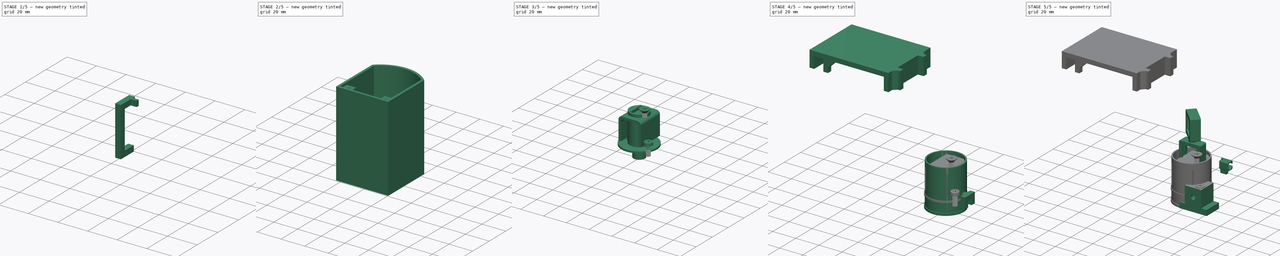
[diagram: build sequence overview — one tinted view per stage of 5, left to right]
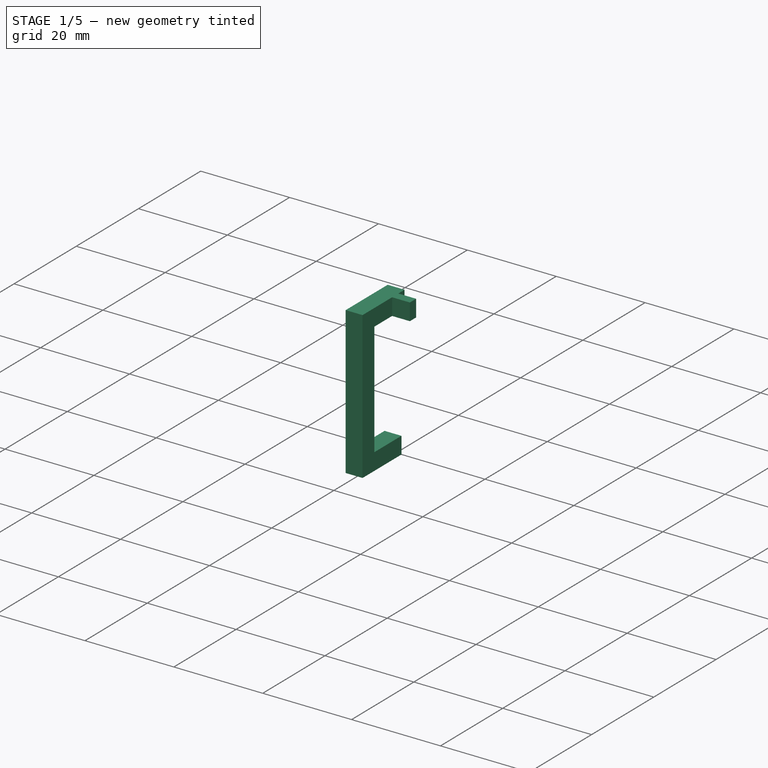
[diagram: stage 1 of 5 — iso view after this stage's code; geometry added in this stage tinted green]
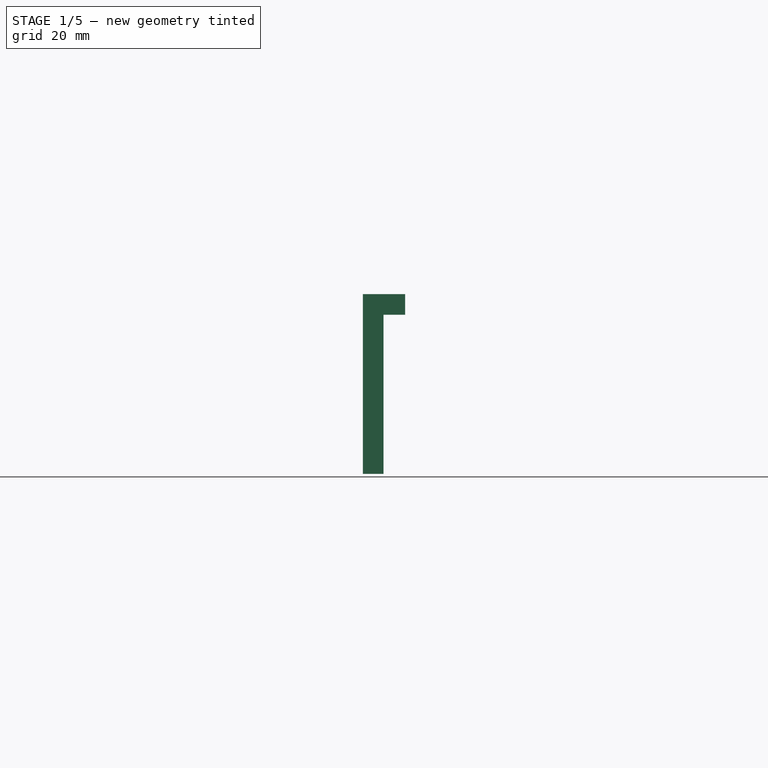
[diagram: stage 1 of 5 — front view after this stage's code; geometry added in this stage tinted green]
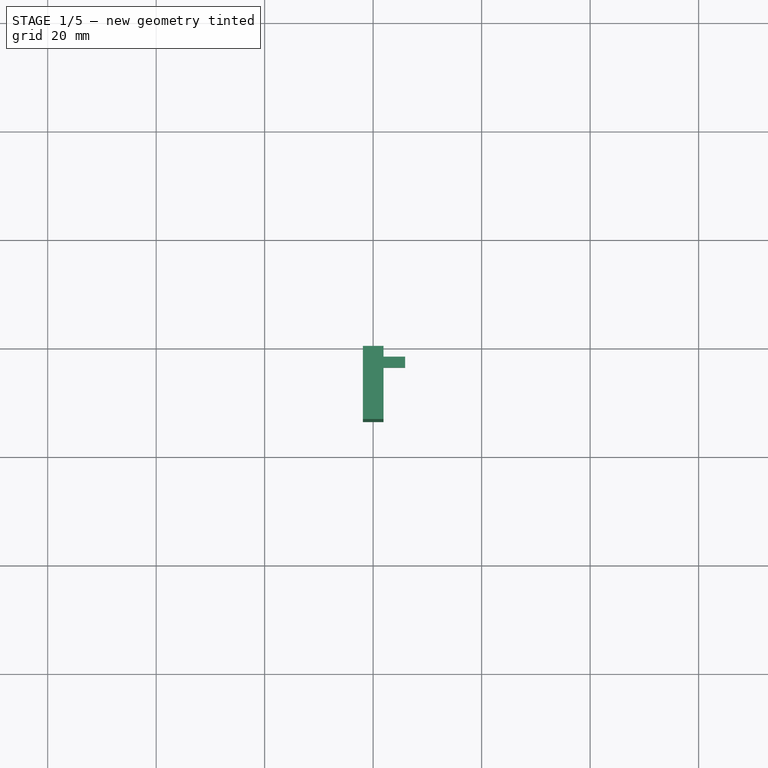
[diagram: stage 1 of 5 — top view after this stage's code; geometry added in this stage tinted green]
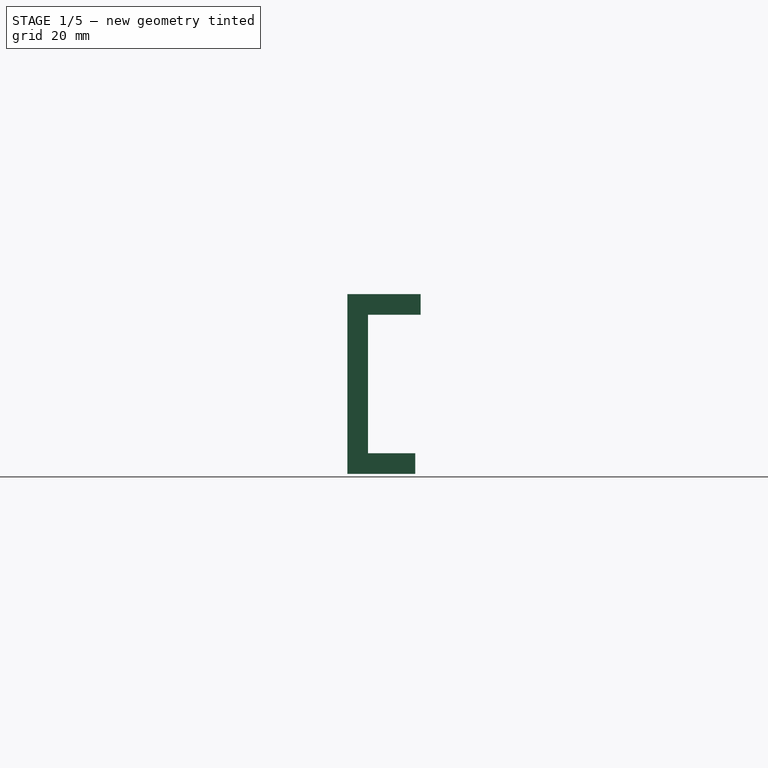
[diagram: stage 1 of 5 — right view after this stage's code; geometry added in this stage tinted green]
FCSTD DOCUMENT  (FreeCAD 1.2R20260120 (Git shallow))
Label: laser2-1mm
License: All rights reserved
LicenseURL: https://en.wikipedia.org/wiki/All_rights_reserved
objects: Sketcher::SketchObject×115, PartDesign::Pad×75, Part::FeaturePython×45, App::FeaturePython×45, App::Point×30, PartDesign::Body×30, PartDesign::Pocket×29, PartDesign::SubShapeBinder×28, PartDesign::Fillet×18, PartDesign::Mirrored×16, PartDesign::Chamfer×10, App::Link×8, PartDesign::MultiTransform×5, Part::DatumPlane×5, PartDesign::FeatureBase×4, PartDesign::Hole×4, PartDesign::AdditiveHelix×3, App::VarSet×1, Part::Cylinder×1, Part::MultiFuse×1, +1 more types
note: 802 computed .brp shape members not serialized (recipe doc carries the construction recipe); baked Part::Feature solids carry a one-line shape summary decoded from their .brp

FEATURE [PartDesign::Body] Body026  label="design5-rotor"
  AllowCompound = false
  Group = -> [Binder029,Sketch114,Pad073,Sketch115,Pad074,Sketch116,Pocket026,Fillet012,Mirrored,Sketch117,Pocket027,Sketch124,Chamfer002,Fillet013]
  Origin = -> Origin059
  Tip = -> Fillet013
FEATURE [App::Point] Origin064  label="Origin082"
  Role = Origin
FEATURE [App::Point] Origin066  label="Origin085"
  Role = Origin
FEATURE [Sketcher::SketchObject] Sketch129
  ArcFitTolerance = 1e-06
  AttachmentSupport = -> [Origin065]
  ExternalTypes = [0]
  FullyConstrained = true
  MakeInternals = false
  MapMode = 5
  sketch-geometry (1):
    g0: Circle CenterX=0 CenterY=0 CenterZ=0 NormalX=0 NormalY=0 NormalZ=1 AngleXU=0 Radius=5.5
  constraints (2):
    c: Diameter(g0) = 11
    c: Coincident(g0,g-1)
FEATURE [PartDesign::Pad] Pad084
  Direction = (0,0,1)
  Length = 3
  Length2 = 10
  Profile = -> Sketch129
  ReferenceAxis = -> Sketch129 [N_Axis]
  Refine = true
  SideType = 0
  Suppressed = false
  Type = 0
  Type2 = 0
FEATURE [Sketcher::SketchObject] Sketch130
  ArcFitTolerance = 1e-06
  AttachmentSupport = -> [Pad084]
  ExternalTypes = [0]
  FullyConstrained = true
  MakeInternals = false
  MapMode = 5
  Placement = pos=(0,0,3) rot=(0,0,1;0rad)
  sketch-geometry (1):
    g0: Circle CenterX=0 CenterY=0 CenterZ=0 NormalX=0 NormalY=0 NormalZ=1 AngleXU=0 Radius=2.5
  constraints (2):
    c: Diameter(g0) = 5
    c: Coincident(g0,g-1)
FEATURE [PartDesign::Pocket] Pocket029
  BaseFeature = -> Pad084
  Direction = (0,0,-1)
  Length = 5
  Length2 = 5
  Profile = -> Sketch130
  ReferenceAxis = -> Sketch130 [N_Axis]
  Refine = true
  SideType = 0
  Suppressed = false
  Type = 1
  Type2 = 0
FEATURE [PartDesign::Body] Body029  label="small_bearing"
  AllowCompound = false
  Group = -> [Sketch129,Pad084,Sketch130,Pocket029]
  Origin = -> Origin065
  Tip = -> Pocket029
FEATURE [PartDesign::SubShapeBinder] Binder034
  BindCopyOnChange = 0
  BindMode = 0
  ClaimChildren = false
  Context = -> Body028 [Binder034.]
  Fuse = false
  MakeFace = true
  OffsetFill = false
  OffsetIntersection = false
  OffsetJoinType = 0
  OffsetOpenResult = false
  PartialLoad = false
  Refine = true
  Relative = true
  Support = -> [Body029]
  _Version = 2
FEATURE [Sketcher::SketchObject] Sketch131
  ArcFitTolerance = 1e-06
  AttachmentSupport = -> [Binder034]
  ExternalGeometry = -> [Binder034]
  ExternalTypes = [0]
  FullyConstrained = true
  MakeInternals = false
  MapMode = 5
  Placement = pos=(0,0,0) rot=(1,0,0;3.14159rad)
  sketch-geometry (1):
    g0: Circle CenterX=0 CenterY=0 CenterZ=0 NormalX=0 NormalY=0 NormalZ=1 AngleXU=0 Radius=2.6
  constraints (2):
    c: Coincident(g0,g-3)
    c: Distance(g-3,g0) = 0.1
FEATURE [PartDesign::Pad] Pad085
  Direction = (0,0,-1)
  Length = 10
  Length2 = 10
  Profile = -> Sketch131
  ReferenceAxis = -> Sketch131 [N_Axis]
  Refine = true
  Reversed = true
  SideType = 0
  Suppressed = false
  Type = 3
  Type2 = 0
  UpToFace = -> Binder034 [Face3]
FEATURE [Sketcher::SketchObject] Sketch132
  ArcFitTolerance = 1e-06
  AttachmentSupport = -> [Pad085]
  ExternalTypes = [0]
  FullyConstrained = true
  MakeInternals = false
  MapMode = 5
  Placement = pos=(0,0,0) rot=(1,0,0;3.14159rad)
  sketch-geometry (1):
    g0: Circle CenterX=0 CenterY=0 CenterZ=0 NormalX=0 NormalY=0 NormalZ=1 AngleXU=0 Radius=3.25
  constraints (2):
    c: Diameter(g0) = 6.5
    c: Coincident(g0,g-1)
FEATURE [PartDesign::Pad] Pad086
  BaseFeature = -> Pad085
  Direction = (0,0,-1)
  Length = 1
  Length2 = 10
  Profile = -> Sketch132
  ReferenceAxis = -> Sketch132 [N_Axis]
  Refine = true
  SideType = 0
  Suppressed = false
  Type = 0
  Type2 = 0
FEATURE [Sketcher::SketchObject] Sketch133
  ArcFitTolerance = 1e-06
  AttachmentSupport = -> [Pad086]
  ExternalTypes = [0]
  FullyConstrained = true
  MakeInternals = false
  MapMode = 5
  Placement = pos=(0,0,-1) rot=(1,0,0;3.14159rad)
  sketch-geometry (1):
    g0: Circle CenterX=0 CenterY=0 CenterZ=0 NormalX=0 NormalY=0 NormalZ=1 AngleXU=0 Radius=9
  constraints (2):
    c: Diameter(g0) = 18
    c: Coincident(g0,g-1)
FEATURE [PartDesign::Pad] Pad087
  BaseFeature = -> Pad086
  Direction = (0,0,-1)
  Length = 2
  Length2 = 10
  Profile = -> Sketch133
  ReferenceAxis = -> Sketch133 [N_Axis]
  Refine = true
  SideType = 0
  Suppressed = false
  Type = 0
  Type2 = 0
FEATURE [App::Point] Origin068  label="Origin087"
  Role = Origin
FEATURE [PartDesign::SubShapeBinder] Binder035
  BindCopyOnChange = 0
  BindMode = 0
  ClaimChildren = false
  Context = -> Body030 [Binder035.]
  Fuse = false
  MakeFace = true
  OffsetFill = false
  OffsetIntersection = false
  OffsetJoinType = 0
  OffsetOpenResult = false
  PartialLoad = false
  Refine = true
  Relative = true
  Support = -> [Body029]
  _Version = 2
FEATURE [Sketcher::SketchObject] Sketch134
  ArcFitTolerance = 1e-06
  AttachmentSupport = -> [Origin067]
  ExternalGeometry = -> [Binder035]
  ExternalTypes = [0]
  FullyConstrained = true
  MakeInternals = false
  MapMode = 5
  sketch-geometry (1):
    g0: Circle CenterX=0 CenterY=0 CenterZ=0 NormalX=0 NormalY=0 NormalZ=1 AngleXU=0 Radius=7.5
  constraints (2):
    c: Coincident(g0,g-3)
    c: Distance(g0,g-3) = 2
FEATURE [PartDesign::Pad] Pad088
  Direction = (0,0,1)
  Length = 10
  Length2 = 10
  Profile = -> Sketch134
  ReferenceAxis = -> Sketch134 [N_Axis]
  Refine = true
  SideType = 0
  Suppressed = false
  Type = 3
  Type2 = 0
  UpToFace = -> Binder035 [Face3]
FEATURE [Sketcher::SketchObject] Sketch135
  ArcFitTolerance = 1e-06
  AttachmentSupport = -> [Pad088]
  ExternalGeometry = -> [Pad088]
  ExternalTypes = [0]
  FullyConstrained = true
  MakeInternals = false
  MapMode = 5
  Placement = pos=(0,0,3) rot=(0,0,1;0rad)
  sketch-geometry (1):
    g0: Circle CenterX=0 CenterY=0 CenterZ=0 NormalX=0 NormalY=0 NormalZ=1 AngleXU=0 Radius=4.25
  constraints (2):
    c: Diameter(g0) = 8.5
    c: Coincident(g0,g-1)
FEATURE [PartDesign::Pad] Pad089
  BaseFeature = -> Pad088
  Direction = (0,0,1)
  Length = 1
  Length2 = 10
  Profile = -> Sketch135
  ReferenceAxis = -> Sketch135 [N_Axis]
  Refine = true
  SideType = 0
  Suppressed = false
  Type = 0
  Type2 = 0
FEATURE [Sketcher::SketchObject] Sketch137
  ArcFitTolerance = 1e-06
  AttachmentSupport = -> [Pad089]
  ExternalGeometry = -> [Pad089]
  ExternalTypes = [0]
  FullyConstrained = true
  MakeInternals = false
  MapMode = 5
  Placement = pos=(0,0,4) rot=(0,0,1;0rad)
FEATURE [PartDesign::Pad] Pad090
  BaseFeature = -> Pad089
  Direction = (0,0,1)
  Length = 1
  Length2 = 10
  Profile = -> Sketch137
  ReferenceAxis = -> Sketch137 [N_Axis]
  Refine = true
  SideType = 0
  Suppressed = false
  Type = 0
  Type2 = 0
FEATURE [Sketcher::SketchObject] Sketch139
  ArcFitTolerance = 1e-06
  AttachmentSupport = -> [Pad090]
  ExternalTypes = [0]
  FullyConstrained = true
  MakeInternals = false
  MapMode = 5
  Placement = pos=(0,0,5) rot=(0,0,1;0rad)
  expr: Constraints[2] = VarSet.magnet_height + 0.2 mm
  expr: Constraints[4] = VarSet.magnet_diameter + 0.2 mm
  sketch-geometry (4):
    g0: LineSegment [constr] StartX=0.5 StartY=3.3 StartZ=0 EndX=0.5 EndY=-3.3 EndZ=0
    g1: LineSegment [constr] StartX=0.5 StartY=3.3 StartZ=0 EndX=3.9 EndY=3.3 EndZ=0
    g2: GeomPoint [constr] X=0.5 Y=0 Z=0
    g3: Circle CenterX=0 CenterY=0 CenterZ=0 NormalX=0 NormalY=0 NormalZ=1 AngleXU=0 Radius=5.10882
  constraints (11):
    c: Vertical(g0)
    c: Coincident(g1,g0)
    c: Distance(g1,g1) = 3.4
    c: Horizontal(g1)
    c: DistanceY(g0,g0) = 6.6
    c: Symmetric(g0,g0,g2)
    c: PointOnObject(g2,g-1)
    c: Distance(g-2,g0) = 0.5
    c: Coincident(g3,g-1)
    c: PointOnObject(g1,g3)
    c: Distance(g2,g3) = 4.60882  'PocketSize'
FEATURE [PartDesign::Pad] Pad091
  BaseFeature = -> Pad090
  Direction = (0,0,1)
  Length = 24.8
  Length2 = 10
  Profile = -> Sketch139
  ReferenceAxis = -> Sketch139 [N_Axis]
  Refine = true
  SideType = 0
  Suppressed = false
  Type = 0
  Type2 = 0
  expr: Length = 10 mm + 2 * VarSet.magnet_diameter + 2 mm
FEATURE [Part::DatumPlane] DatumPlane005
  AttachmentOffset = pos=(0,0,0) rot=(0.57735,0.57735,0.57735;2.0944rad)
  AttachmentSupport = -> [Pad091]
  MapMode = 47
  Placement = pos=(5.10882,0,29.8) rot=(0.57735,0.57735,0.57735;2.0944rad)
FEATURE [Sketcher::SketchObject] Sketch140
  ArcFitTolerance = 1e-06
  AttachmentSupport = -> [DatumPlane005]
  ExternalGeometry = -> [Pad091]
  ExternalTypes = [0]
  FullyConstrained = true
  MakeInternals = false
  MapMode = 5
  Placement = pos=(5.10882,0,29.8) rot=(0.57735,0.57735,0.57735;2.0944rad)
  expr: Constraints[3] = VarSet.magnet_diameter + 0.2 mm
  expr: Constraints[5] = VarSet.magnet_diameter + 0.2 mm
  sketch-geometry (5):
    g0: LineSegment [constr] StartX=-1.3e-15 StartY=0 StartZ=0 EndX=-1.3e-15 EndY=-24.8 EndZ=0
    g1: Circle CenterX=-4.55e-14 CenterY=-4.3 CenterZ=0 NormalX=0 NormalY=0 NormalZ=1 AngleXU=0 Radius=3.3
    g2: Circle CenterX=-1.118e-13 CenterY=-11.9 CenterZ=0 NormalX=0 NormalY=0 NormalZ=1 AngleXU=0 Radius=3.3
    g3: LineSegment [constr] StartX=-1.3e-15 StartY=-1 StartZ=0 EndX=-1.3e-15 EndY=0 EndZ=0
    g4: LineSegment [constr] StartX=-6.01e-14 StartY=-8.6 StartZ=0 EndX=-6.01e-14 EndY=-7.6 EndZ=0
  constraints (15):
    c: Coincident(g0,g-6)
    c: Coincident(g0,g-4)
    c: PointOnObject(g1,g0)
    c: Diameter(g1) = 6.6
    c: PointOnObject(g2,g0)
    c: Diameter(g2) = 6.6
    c: PointOnObject(g3,g1)
    c: Coincident(g3,g0)
    c: Vertical(g3)
    c: PointOnObject(g4,g2)
    c: PointOnObject(g4,g1)
    c: PointOnObject(g4,g0)
    c: Vertical(g4)
    c: Equal(g3,g4)
    c: Distance(g3,g3) = 1
FEATURE [PartDesign::Pocket] Pocket030
  BaseFeature = -> Pad091
  Direction = (-1,0,0)
  Length = 4.60882
  Length2 = 5
  Profile = -> Sketch140
  ReferenceAxis = -> Sketch140 [N_Axis]
  Refine = true
  SideType = 0
  Suppressed = false
  Type = 0
  Type2 = 0
  expr: Length = Sketch139.Constraints.PocketSize
FEATURE [PartDesign::Fillet] Fillet014
  Base = -> Pocket030 [Edge6,Edge13,Edge14,Edge12,Edge11,Edge8]
  BaseFeature = -> Pocket030
  Radius = 0.4
  Refine = true
  SupportTransform = false
  Suppressed = false
  UseAllEdges = false
FEATURE [PartDesign::Mirrored] Mirrored004
  BaseFeature = -> Fillet014
  MirrorPlane = -> YZ_Plane031
  Originals = -> [Fillet014,Pocket030]
  Refine = true
  Suppressed = false
  TransformMode = 0
FEATURE [PartDesign::Fillet] Fillet015
  Base = -> Mirrored004 [Edge30]
  BaseFeature = -> Mirrored004
  Radius = 1
  Refine = true
  SupportTransform = false
  Suppressed = false
  UseAllEdges = false
FEATURE [App::Point] Origin070  label="Origin090"
  Role = Origin
FEATURE [PartDesign::SubShapeBinder] Binder036
  BindCopyOnChange = 0
  BindMode = 0
  ClaimChildren = false
  Context = -> Body031 [Binder036.]
  Fuse = false
  MakeFace = true
  OffsetFill = false
  OffsetIntersection = false
  OffsetJoinType = 0
  OffsetOpenResult = false
  PartialLoad = false
  Refine = true
  Relative = true
  Support = -> [Body030]
  _Version = 2
FEATURE [PartDesign::SubShapeBinder] Binder037
  BindCopyOnChange = 0
  BindMode = 0
  ClaimChildren = false
  Context = -> Body031 [Binder037.]
  Fuse = false
  MakeFace = true
  OffsetFill = false
  OffsetIntersection = false
  OffsetJoinType = 0
  OffsetOpenResult = false
  PartialLoad = false
  Refine = true
  Relative = true
  Support = -> [Body028]
  _Version = 2
FEATURE [Sketcher::SketchObject] Sketch141
  ArcFitTolerance = 1e-06
  AttachmentOffset = pos=(0,0,0) rot=(0,1,0;3.14159rad)
  AttachmentSupport = -> [Binder037]
  ExternalGeometry = -> [Binder037]
  ExternalTypes = [0,0]
  FullyConstrained = true
  MakeInternals = false
  MapMode = 5
  Placement = pos=(0,0,-3) rot=(0,0,1;3.14159rad)
  sketch-geometry (5):
    g0: LineSegment StartX=8.04674 StartY=7.5 StartZ=0 EndX=11 EndY=7.5 EndZ=0
    g1: LineSegment StartX=11 StartY=7.5 StartZ=0 EndX=11 EndY=-7.5 EndZ=0
    g2: LineSegment StartX=11 StartY=-7.5 StartZ=0 EndX=8.04674 EndY=-7.5 EndZ=0
    g3: GeomPoint X=11 Y=0 Z=0
    g4: ArcOfCircle CenterX=2e-16 CenterY=0 CenterZ=0 NormalX=0 NormalY=0 NormalZ=1 AngleXU=0 Radius=11 StartAngle=0.750245 EndAngle=5.53294
  constraints (13):
    c: Coincident(g1,g0)
    c: Vertical(g1)
    c: Coincident(g2,g1)
    c: Horizontal(g2)
    c: Horizontal(g0)
    c: Symmetric(g1,g1,g3)
    c: PointOnObject(g3,g-1)
    c: Distance(g1,g1) = 15
    c: Coincident(g4,g-3)
    c: Coincident(g4,g0)
    c: Coincident(g4,g2)
    c: Distance(g4,g-3) = 2
    c: Distance(g-3,g1) = 2
FEATURE [PartDesign::Pad] Pad092
  Direction = (1e-16,0,1)
  Length = 10
  Length2 = 10
  Profile = -> Sketch141
  ReferenceAxis = -> Sketch141 [N_Axis]
  Refine = true
  SideType = 0
  Suppressed = false
  Type = 3
  Type2 = 0
  UpToFace = -> Binder037 [Face4]
FEATURE [Sketcher::SketchObject] Sketch142
  ArcFitTolerance = 1e-06
  AttachmentSupport = -> [Pad092]
  ExternalGeometry = -> [Binder036,Pad092]
  ExternalTypes = [0,0,0,0,0,0]
  FullyConstrained = true
  MakeInternals = false
  MapMode = 5
  Placement = pos=(0,0,-1) rot=(0,0,1;0rad)
  sketch-geometry (5):
    g0: LineSegment StartX=-11 StartY=7.5 StartZ=0 EndX=-11 EndY=-7.5 EndZ=0
    g1: LineSegment StartX=-11 StartY=-7.5 StartZ=0 EndX=-9 EndY=-7.5 EndZ=0
    g2: LineSegment StartX=-9 StartY=-7.5 StartZ=0 EndX=-9 EndY=7.5 EndZ=0
    g3: LineSegment StartX=-9 StartY=7.5 StartZ=0 EndX=-11 EndY=7.5 EndZ=0
    g4: GeomPoint [constr] X=-9 Y=-8e-16 Z=0
  constraints (11):
    c: Coincident(g0,g1)
    c: Coincident(g3,g0)
    c: Vertical(g2)
    c: Horizontal(g1)
    c: Horizontal(g3)
    c: Coincident(g0,g-5)
    c: Coincident(g2,g3)
    c: Coincident(g2,g1)
    c: Coincident(g0,g-6)
    c: Symmetric(g2,g2,g4)
    c: PointOnObject(g4,g-8)
FEATURE [PartDesign::Pad] Pad093
  BaseFeature = -> Pad092
  Direction = (0,0,1)
  Length = 28
  Length2 = 10
  Offset = -4
  Profile = -> Sketch142
  ReferenceAxis = -> Sketch142 [N_Axis]
  Refine = true
  SideType = 0
  Suppressed = false
  Type = 3
  Type2 = 0
  UpToFace = -> Binder036 [Face8]
FEATURE [Sketcher::SketchObject] Sketch143
  ArcFitTolerance = 1e-06
  AttachmentSupport = -> [Pad093]
  ExternalGeometry = -> [Pad093]
  ExternalTypes = [0,0,0]
  FullyConstrained = true
  MakeInternals = false
  MapMode = 5
  Placement = pos=(-9,0,0) rot=(0.57735,0.57735,0.57735;2.0944rad)
  sketch-geometry (4):
    g0: LineSegment StartX=-7.5 StartY=33.8 StartZ=0 EndX=-7.5 EndY=31.8 EndZ=0
    g1: LineSegment StartX=-7.5 StartY=31.8 StartZ=0 EndX=7.5 EndY=31.8 EndZ=0
    g2: LineSegment StartX=7.5 StartY=31.8 StartZ=0 EndX=7.5 EndY=33.8 EndZ=0
    g3: LineSegment StartX=7.5 StartY=33.8 StartZ=0 EndX=-7.5 EndY=33.8 EndZ=0
  constraints (11):
    c: Coincident(g0,g1)
    c: Coincident(g1,g2)
    c: Coincident(g2,g3)
    c: Coincident(g3,g0)
    c: Vertical(g0)
    c: Vertical(g2)
    c: Horizontal(g1)
    c: Horizontal(g3)
    c: DistanceY(g2,g2) = 2
    c: PointOnObject(g0,g-4)
    c: Coincident(g2,g-5)
FEATURE [PartDesign::Pad] Pad094
  BaseFeature = -> Pad093
  Direction = (1,0,0)
  Length = 14
  Length2 = 10
  Profile = -> Sketch143
  ReferenceAxis = -> Sketch143 [N_Axis]
  Refine = true
  SideType = 0
  Suppressed = false
  Type = 0
  Type2 = 0
FEATURE [Sketcher::SketchObject] Sketch144
  ArcFitTolerance = 1e-06
  AttachmentSupport = -> [Pad094]
  ExternalGeometry = -> [Pad094]
  ExternalTypes = [0,0]
  FullyConstrained = true
  MakeInternals = false
  MapMode = 5
  Placement = pos=(-11,0,0) rot=(0.57735,-0.57735,-0.57735;2.0944rad)
  sketch-geometry (8):
    g0: LineSegment StartX=-7.5 StartY=33.8 StartZ=0 EndX=-7.5 EndY=-3 EndZ=0
    g1: LineSegment StartX=-7.5 StartY=-3 StartZ=0 EndX=-5.5 EndY=-3 EndZ=0
    g2: LineSegment StartX=-5.5 StartY=-3 StartZ=0 EndX=-5.5 EndY=33.8 EndZ=0
    g3: LineSegment StartX=-5.5 StartY=33.8 StartZ=0 EndX=-7.5 EndY=33.8 EndZ=0
    g4: LineSegment StartX=7.5 StartY=33.8 StartZ=0 EndX=5.5 EndY=33.8 EndZ=0
    g5: LineSegment StartX=5.5 StartY=33.8 StartZ=0 EndX=5.5 EndY=-3 EndZ=0
    g6: LineSegment StartX=5.5 StartY=-3 StartZ=0 EndX=7.5 EndY=-3 EndZ=0
    g7: LineSegment StartX=7.5 StartY=-3 StartZ=0 EndX=7.5 EndY=33.8 EndZ=0
  constraints (20):
    c: Coincident(g0,g1)
    c: Coincident(g1,g2)
    c: Coincident(g2,g3)
    c: Coincident(g3,g0)
    c: Vertical(g2)
    c: Horizontal(g1)
    c: Horizontal(g3)
    c: Distance(g1,g1) = 2
    c: Coincident(g4,g5)
    c: Coincident(g5,g6)
    c: Coincident(g6,g7)
    c: Coincident(g7,g4)
    c: Horizontal(g4)
    c: Horizontal(g6)
    c: Vertical(g5)
    c: Equal(g6,g1)
    c: Coincident(g0,g-3)
    c: Coincident(g0,g-3)
    c: Coincident(g4,g-4)
    c: Coincident(g-4,g6)
FEATURE [PartDesign::Pad] Pad095
  BaseFeature = -> Pad094
  Direction = (-1,0,0)
  Length = 2
  Length2 = 10
  Profile = -> Sketch144
  ReferenceAxis = -> Sketch144 [N_Axis]
  Refine = true
  SideType = 0
  Suppressed = false
  Type = 0
  Type2 = 0
FEATURE [Sketcher::SketchObject] Sketch145
  ArcFitTolerance = 1e-06
  AttachmentSupport = -> [Pad095]
  ExternalGeometry = -> [Pad095]
  ExternalTypes = [0,0,0,0,0,0]
  FullyConstrained = true
  MakeInternals = false
  MapMode = 5
  Placement = pos=(0,0,33.8) rot=(0,0,1;0rad)
  sketch-geometry (8):
    g0: LineSegment StartX=-13 StartY=-5.5 StartZ=0 EndX=-13 EndY=-7.5 EndZ=0
    g1: LineSegment StartX=-13 StartY=-7.5 StartZ=0 EndX=5 EndY=-7.5 EndZ=0
    g2: LineSegment StartX=5 StartY=-7.5 StartZ=0 EndX=5 EndY=-5.5 EndZ=0
    g3: LineSegment StartX=5 StartY=-5.5 StartZ=0 EndX=-13 EndY=-5.5 EndZ=0
    g4: LineSegment StartX=-13 StartY=5.5 StartZ=0 EndX=5 EndY=5.5 EndZ=0
    g5: LineSegment StartX=-13 StartY=5.5 StartZ=0 EndX=-13 EndY=7.5 EndZ=0
    g6: LineSegment StartX=-13 StartY=7.5 StartZ=0 EndX=5 EndY=7.5 EndZ=0
    g7: LineSegment StartX=5 StartY=7.5 StartZ=0 EndX=5 EndY=5.5 EndZ=0
  constraints (19):
    c: Coincident(g0,g1)
    c: Coincident(g1,g2)
    c: Coincident(g2,g3)
    c: Coincident(g3,g0)
    c: Vertical(g2)
    c: Horizontal(g1)
    c: Horizontal(g3)
    c: Coincident(g0,g-6)
    c: Horizontal(g4)
    c: PointOnObject(g1,g-7)
    c: Coincident(g0,g-6)
    c: Coincident(g4,g-4)
    c: Coincident(g5,g4)
    c: Coincident(g5,g-4)
    c: Coincident(g6,g5)
    c: Coincident(g6,g-7)
    c: Coincident(g7,g6)
    c: Coincident(g7,g4)
    c: PointOnObject(g4,g-7)
FEATURE [PartDesign::Pad] Pad096
  BaseFeature = -> Pad095
  Direction = (0,0,1)
  Length = 2
  Length2 = 10
  Profile = -> Sketch145
  ReferenceAxis = -> Sketch145 [N_Axis]
  Refine = true
  SideType = 0
  Suppressed = false
  Type = 0
  Type2 = 0
FEATURE [PartDesign::Mirrored] Mirrored005
  BaseFeature = -> Pad096
  MirrorPlane = -> Sketch145 [V_Axis]
  Originals = -> [Pad096,Pad092,Pad093,Pad094,Pad095]
  Refine = true
  Suppressed = false
  TransformMode = 0
FEATURE [PartDesign::Fillet] Fillet017
  Base = -> Fillet015 [Edge2]
  BaseFeature = -> Fillet015
  Radius = 2
  Refine = true
  SupportTransform = false
  Suppressed = false
  UseAllEdges = false
FEATURE [PartDesign::Chamfer] Chamfer003
  Angle = 45
  Base = -> Pad087 [Edge6]
  BaseFeature = -> Pad087
  ChamferType = 0
  FlipDirection = false
  Refine = true
  Size = 0.99
  Size2 = 1
  SupportTransform = false
  Suppressed = false
  UseAllEdges = false
FEATURE [PartDesign::Body] Body028  label="design6-stator"
  AllowCompound = false
  Group = -> [Binder034,Sketch131,Pad085,Sketch132,Pad086,Sketch133,Pad087,Chamfer003]
  Origin = -> Origin063
  Tip = -> Chamfer003
FEATURE [Sketcher::SketchObject] Sketch146
  ArcFitTolerance = 1e-06
  AttachmentOffset = pos=(0,0,6) rot=(0,0,1;0rad)
  AttachmentSupport = -> [Origin067]
  ExternalGeometry = -> [Fillet017]
  ExternalTypes = [0,0]
  FullyConstrained = true
  MakeInternals = false
  MapMode = 5
  Placement = pos=(0,-6,1.3e-15) rot=(1,0,0;1.5708rad)
  sketch-geometry (8):
    g0: LineSegment StartX=-2.1 StartY=8.46879 StartZ=0 EndX=2.1 EndY=8.46879 EndZ=0
    g1: LineSegment StartX=2.1 StartY=8.46879 StartZ=0 EndX=2.1 EndY=12.6688 EndZ=0
    g2: LineSegment StartX=2.1 StartY=12.6688 StartZ=0 EndX=-2.1 EndY=12.6688 EndZ=0
    g3: LineSegment StartX=-2.1 StartY=12.6688 StartZ=0 EndX=-2.1 EndY=8.46879 EndZ=0
    g4: GeomPoint [constr] X=0 Y=10.5688 Z=0
    g5: LineSegment [constr] StartX=5.10882 StartY=14.2 StartZ=0 EndX=-3.05118 EndY=14.2 EndZ=0
    g6: LineSegment [constr] StartX=-2.1 StartY=12.6688 StartZ=0 EndX=-2.1 EndY=14.2 EndZ=0
    g7: LineSegment [constr] StartX=-2.1 StartY=8.46879 StartZ=0 EndX=-2.1 EndY=6.93757 EndZ=0
  constraints (22):
    c: Coincident(g0,g1)
    c: Coincident(g1,g2)
    c: Coincident(g2,g3)
    c: Coincident(g3,g0)
    c: Horizontal(g0)
    c: Horizontal(g2)
    c: Vertical(g1)
    c: Vertical(g3)
    c: Symmetric(g2,g0,g4)
    c: Distance(g1,g3) = 4.2
    c: Distance(g0,g2) = 4.2
    c: Horizontal(g5)
    c: PointOnObject(g4,g-2)
    c: Coincident(g5,g-4)
    c: Distance(g5,g5) = 8.16
    c: Coincident(g6,g2)
    c: PointOnObject(g6,g5)
    c: Vertical(g6)
    c: Coincident(g7,g0)
    c: PointOnObject(g7,g-3)
    c: Vertical(g7)
    c: Equal(g7,g6)
FEATURE [PartDesign::Pocket] Pocket031
  BaseFeature = -> Fillet017
  Direction = (0,1,0)
  Length = 5
  Length2 = 5
  Profile = -> Sketch146
  ReferenceAxis = -> Sketch146 [N_Axis]
  Refine = true
  SideType = 0
  Suppressed = false
  Type = 0
  Type2 = 0
FEATURE [App::Point] Origin072  label="Origin093"
  Role = Origin
FEATURE [PartDesign::SubShapeBinder] Binder038
  BindCopyOnChange = 0
  BindMode = 0
  ClaimChildren = false
  Context = -> Body032 [Binder038.]
  Fuse = false
  MakeFace = true
  OffsetFill = false
  OffsetIntersection = false
  OffsetJoinType = 0
  OffsetOpenResult = false
  PartialLoad = false
  Refine = true
  Relative = true
  Support = -> [Body030]
  _Version = 2
FEATURE [PartDesign::SubShapeBinder] Binder039
  BindCopyOnChange = 0
  BindMode = 0
  ClaimChildren = false
  Context = -> Body032 [Binder039.]
  Fuse = false
  MakeFace = true
  OffsetFill = false
  OffsetIntersection = false
  OffsetJoinType = 0
  OffsetOpenResult = false
  PartialLoad = false
  Refine = true
  Relative = true
  Support = -> [Body031]
  _Version = 2
FEATURE [PartDesign::Mirrored] Mirrored006
  BaseFeature = -> Pocket031
  MirrorPlane = -> XZ_Plane031
  Originals = -> [Pocket031]
  Refine = true
  Suppressed = false
  TransformMode = 0
FEATURE [Sketcher::SketchObject] Sketch147
  ArcFitTolerance = 1e-06
  AttachmentSupport = -> [Binder038]
  ExternalGeometry = -> [Binder038]
  ExternalTypes = [0,0,0,0]
  FullyConstrained = true
  MakeInternals = false
  MapMode = 5
  Placement = pos=(0,-1,0) rot=(1,0,0;1.5708rad)
  sketch-geometry (8):
    g0: LineSegment StartX=1.9 StartY=12.4688 StartZ=0 EndX=1.9 EndY=8.66879 EndZ=0
    g1: LineSegment StartX=1.9 StartY=8.66879 StartZ=0 EndX=-1.9 EndY=8.66879 EndZ=0
    g2: LineSegment StartX=-1.9 StartY=12.4688 StartZ=0 EndX=-1.9 EndY=8.66879 EndZ=0
    g3: LineSegment StartX=1.9 StartY=12.4688 StartZ=0 EndX=-1.9 EndY=12.4688 EndZ=0
    g4: LineSegment [constr] StartX=-1.9 StartY=12.4688 StartZ=0 EndX=-1.9 EndY=12.6688 EndZ=0
    g5: LineSegment [constr] StartX=-1.9 StartY=12.4688 StartZ=0 EndX=-2.1 EndY=12.4688 EndZ=0
    g6: LineSegment [constr] StartX=1.9 StartY=8.66879 StartZ=0 EndX=2.1 EndY=8.66879 EndZ=0
    g7: LineSegment [constr] StartX=1.9 StartY=8.66879 StartZ=0 EndX=1.9 EndY=8.46879 EndZ=0
  constraints (24):
    c: Coincident(g0,g1)
    c: Coincident(g0,g3)
    c: Coincident(g1,g2)
    c: Coincident(g2,g3)
    c: Coincident(g4,g2)
    c: PointOnObject(g4,g-3)
    c: Vertical(g4)
    c: Distance(g4,g4) = 0.2
    c: Vertical(g2)
    c: Vertical(g0)
    c: Horizontal(g3)
    c: Horizontal(g1)
    c: Coincident(g5,g2)
    c: PointOnObject(g5,g-4)
    c: Horizontal(g5)
    c: Coincident(g6,g0)
    c: PointOnObject(g6,g-6)
    c: Coincident(g7,g0)
    c: PointOnObject(g7,g-5)
    c: Vertical(g7)
    c: Horizontal(g6)
    c: Equal(g6,g7)
    c: Equal(g7,g5)
    c: Equal(g5,g4)
FEATURE [PartDesign::Pad] Pad097
  Direction = (0,-1,0)
  Length = 10
  Length2 = 10
  Offset = -6
  Profile = -> Sketch147
  ReferenceAxis = -> Sketch147 [N_Axis]
  Refine = true
  SideType = 0
  Suppressed = false
  Type = 3
  Type2 = 0
  UpToFace = -> Binder039 [Face9]
FEATURE [Sketcher::SketchObject] Sketch148
  ArcFitTolerance = 1e-06
  AttachmentSupport = -> [Pad097]
  ExternalGeometry = -> [Pad097]
  ExternalTypes = [0,0,0]
  FullyConstrained = true
  MakeInternals = false
  MapMode = 5
  Placement = pos=(0,2.7e-15,12.4688) rot=(0,0,1;0rad)
  sketch-geometry (4):
    g0: LineSegment StartX=-1.9 StartY=-13.5 StartZ=0 EndX=1.9 EndY=-13.5 EndZ=0
    g1: LineSegment StartX=1.9 StartY=-13.5 StartZ=0 EndX=1.9 EndY=-9.7 EndZ=0
    g2: LineSegment StartX=1.9 StartY=-9.7 StartZ=0 EndX=-1.9 EndY=-9.7 EndZ=0
    g3: LineSegment StartX=-1.9 StartY=-9.7 StartZ=0 EndX=-1.9 EndY=-13.5 EndZ=0
  constraints (11):
    c: Coincident(g0,g1)
    c: Coincident(g1,g2)
    c: Coincident(g2,g3)
    c: Coincident(g3,g0)
    c: Horizontal(g0)
    c: Horizontal(g2)
    c: Vertical(g1)
    c: Vertical(g3)
    c: Coincident(g0,g-4)
    c: PointOnObject(g1,g-5)
    c: Equal(g2,g1)
FEATURE [PartDesign::Pad] Pad098
  BaseFeature = -> Pad097
  Direction = (0,0,1)
  Length = 10
  Length2 = 10
  Offset = -6
  Profile = -> Sketch148
  ReferenceAxis = -> Sketch148 [N_Axis]
  Refine = true
  SideType = 0
  Suppressed = false
  Type = 3
  Type2 = 0
  UpToFace = -> Binder039 [Face8]
FEATURE [Sketcher::SketchObject] Sketch149
  ArcFitTolerance = 1e-06
  AttachmentSupport = -> [Pad098]
  ExternalTypes = [0,0,0]
  FullyConstrained = true
  MakeInternals = false
  MapMode = 5
  Placement = pos=(0,-9.7,0) rot=(0,0.707107,0.707107;3.14159rad)
  sketch-geometry (4):
    g0: LineSegment StartX=-1.9 StartY=41.8 StartZ=0 EndX=-1.9 EndY=38 EndZ=0
    g1: LineSegment StartX=-1.9 StartY=38 StartZ=0 EndX=1.9 EndY=38 EndZ=0
    g2: LineSegment StartX=1.9 StartY=38 StartZ=0 EndX=1.9 EndY=41.8 EndZ=0
    g3: LineSegment StartX=1.9 StartY=41.8 StartZ=0 EndX=-1.9 EndY=41.8 EndZ=0
  constraints (11):
    c: Coincident(g0,g1)
    c: Coincident(g1,g2)
    c: Coincident(g2,g3)
    c: Coincident(g3,g0)
    c: Vertical(g0)
    c: Vertical(g2)
    c: Horizontal(g1)
    c: Horizontal(g3)
    c: Coincident(g0,g-4)
    c: PointOnObject(g1,g-5)
    c: Equal(g0,g3)
FEATURE [PartDesign::Pad] Pad099
  BaseFeature = -> Pad098
  Direction = (0,1,-2e-16)
  Length = 8
  Length2 = 10
  Profile = -> Sketch149
  ReferenceAxis = -> Sketch149 [N_Axis]
  Refine = true
  SideType = 0
  Suppressed = false
  Type = 3
  Type2 = 0
  UpToFace = -> XZ_Plane033
FEATURE [Sketcher::SketchObject] Sketch150
  ArcFitTolerance = 1e-06
  AttachmentSupport = -> [Pad099]
  ExternalGeometry = -> [Pad099]
  ExternalTypes = [0,0,0,0]
  FullyConstrained = true
  MakeInternals = false
  MapMode = 5
  Placement = pos=(1.9,5.1055e-12,1.777e-12) rot=(0.57735,0.57735,0.57735;2.0944rad)
  sketch-geometry (4):
    g0: LineSegment StartX=-4 StartY=41.8 StartZ=0 EndX=-4 EndY=38 EndZ=0
    g1: LineSegment StartX=-4 StartY=38 StartZ=0 EndX=-2 EndY=38 EndZ=0
    g2: LineSegment StartX=-2 StartY=38 StartZ=0 EndX=-2 EndY=41.8 EndZ=0
    g3: LineSegment StartX=-2 StartY=41.8 StartZ=0 EndX=-4 EndY=41.8 EndZ=0
  constraints (12):
    c: Coincident(g0,g1)
    c: Coincident(g1,g2)
    c: Coincident(g2,g3)
    c: Coincident(g3,g0)
    c: Vertical(g0)
    c: Vertical(g2)
    c: Horizontal(g1)
    c: Horizontal(g3)
    c: PointOnObject(g2,g-6)
    c: PointOnObject(g1,g-5)
    c: Distance(g3,g3) = 2
    c: Distance(g-6,g2) = 2
FEATURE [PartDesign::Pad] Pad100
  BaseFeature = -> Pad099
  Direction = (1,2.6872e-12,9.353e-13)
  Length = 4
  Length2 = 10
  Profile = -> Sketch150
  ReferenceAxis = -> Sketch150 [N_Axis]
  Refine = true
  SideType = 0
  Suppressed = false
  Type = 0
  Type2 = 0
FEATURE [PartDesign::Body] Body032  label="design6-attachment"
  AllowCompound = false
  Group = -> [Binder038,Binder039,Sketch147,Pad097,Sketch148,Pad098,Sketch149,Pad099,Sketch150,Pad100,Fillet019,Sketch151,Pad101,Sketch153,Sketch154,Pad104,Pad103,Sketch155,Pad105,Fillet020,Chamfer004,Chamfer005,Chamfer006]
  Origin = -> Origin071
  Tip = -> Chamfer006
FEATURE [PartDesign::Fillet] Fillet021
  Base = -> Mirrored005 [Edge40,Edge4,Edge55,Edge59]
  BaseFeature = -> Mirrored005
  Radius = 3
  Refine = true
  SupportTransform = false
  Suppressed = false
  UseAllEdges = false
FEATURE [Sketcher::SketchObject] Sketch173
  ArcFitTolerance = 1e-06
  AttachmentSupport = -> [Fillet021]
  ExternalGeometry = -> [Fillet021]
  ExternalTypes = [0,0]
  FullyConstrained = true
  MakeInternals = false
  MapMode = 5
  Placement = pos=(9.6e-15,-7.5,6.85e-14) rot=(1,0,0;1.5708rad)
  sketch-geometry (6):
    g0: GeomPoint [constr] X=13 Y=16.4 Z=0
    g1: LineSegment StartX=9 StartY=18.4 StartZ=0 EndX=9 EndY=14.4 EndZ=0
    g2: LineSegment StartX=9 StartY=14.4 StartZ=0 EndX=13 EndY=14.4 EndZ=0
    g3: LineSegment StartX=13 StartY=14.4 StartZ=0 EndX=13 EndY=18.4 EndZ=0
    g4: LineSegment StartX=13 StartY=18.4 StartZ=0 EndX=9 EndY=18.4 EndZ=0
    g5: GeomPoint X=13 Y=16.4 Z=0
  constraints (13):
    c: Symmetric(g-4,g-4,g0)
    c: Coincident(g1,g2)
    c: Coincident(g2,g3)
    c: Coincident(g3,g4)
    c: Coincident(g4,g1)
    c: Vertical(g1)
    c: Vertical(g3)
    c: Horizontal(g2)
    c: Horizontal(g4)
    c: PointOnObject(g1,g-3)
    c: Symmetric(g3,g3,g5)
    c: Coincident(g5,g0)
    c: DistanceY(g3,g3) = 4
FEATURE [PartDesign::Pad] Pad116
  BaseFeature = -> Fillet021
  Direction = (0,-1,0)
  Length = 8
  Length2 = 10
  Profile = -> Sketch173
  ReferenceAxis = -> Sketch173 [N_Axis]
  Refine = true
  SideType = 0
  Suppressed = false
  Type = 0
  Type2 = 0
FEATURE [Sketcher::SketchObject] Sketch174
  ArcFitTolerance = 1e-06
  AttachmentSupport = -> [Pad116]
  ExternalGeometry = -> [Pad116]
  ExternalTypes = [0,0,0]
  FullyConstrained = true
  MakeInternals = false
  MapMode = 5
  Placement = pos=(13,4.8e-15,0) rot=(0.57735,0.57735,0.57735;2.0944rad)
  sketch-geometry (4):
    g0: LineSegment StartX=-15.5 StartY=18.4 StartZ=0 EndX=-15.5 EndY=14.4 EndZ=0
    g1: LineSegment StartX=-15.5 StartY=14.4 StartZ=0 EndX=-7.5 EndY=14.4 EndZ=0
    g2: LineSegment StartX=-7.5 StartY=14.4 StartZ=0 EndX=-7.5 EndY=18.4 EndZ=0
    g3: LineSegment StartX=-7.5 StartY=18.4 StartZ=0 EndX=-15.5 EndY=18.4 EndZ=0
  constraints (10):
    c: Coincident(g0,g1)
    c: Coincident(g1,g2)
    c: Coincident(g2,g3)
    c: Coincident(g3,g0)
    c: Vertical(g0)
    c: Vertical(g2)
    c: Horizontal(g1)
    c: Horizontal(g3)
    c: Coincident(g0,g-4)
    c: Coincident(g1,g-5)
FEATURE [PartDesign::Pad] Pad117
  BaseFeature = -> Pad116
  Direction = (1,0,0)
  Length = 6
  Length2 = 10
  Profile = -> Sketch174
  ReferenceAxis = -> Sketch174 [N_Axis]
  Refine = true
  SideType = 0
  Suppressed = false
  Type = 0
  Type2 = 0
FEATURE [Sketcher::SketchObject] Sketch175
  ArcFitTolerance = 1e-06
  AttachmentSupport = -> [Pad117]
  ExternalGeometry = -> [Pad117]
  ExternalTypes = [0,0]
  FullyConstrained = true
  MakeInternals = false
  MapMode = 5
  Placement = pos=(4.75e-14,7.62e-14,18.4) rot=(0,0,1;0rad)
  sketch-geometry (2):
    g0: LineSegment [constr] StartX=13 StartY=-7.5 StartZ=0 EndX=19 EndY=-15.5 EndZ=0
    g1: GeomPoint X=16 Y=-11.5 Z=0
  constraints (3):
    c: Coincident(g0,g-4)
    c: Coincident(g0,g-3)
    c: Symmetric(g0,g0,g1)
FEATURE [PartDesign::Mirrored] Mirror012
  MirrorPlane = -> YZ_Plane032
  Refine = true
  Suppressed = false
  TransformMode = 0
FEATURE [PartDesign::Mirrored] Mirror013
  MirrorPlane = -> XZ_Plane032
  Refine = true
  Suppressed = false
  TransformMode = 0
FEATURE [PartDesign::Hole] Hole003
  BaseFeature = -> Pad117
  BaseProfileType = 7
  CustomThreadClearance = 0
  Depth = 114.833
  DepthType = 1
  Diameter = 4.5
  DrillForDepth = false
  DrillPoint = 1
  DrillPointAngle = 118
  HoleCutCountersinkAngle = 90
  HoleCutCustomValues = false
  HoleCutDepth = 0
  HoleCutDiameter = 0
  HoleCutType = 0
  ModelThread = false
  Profile = -> Sketch175 [Vertex1]
  Refine = true
  Suppressed = false
  Tapered = false
  TaperedAngle = 90
  ThreadClass = 0
  ThreadDepth = 114.833
  ThreadDepthType = 0
  ThreadDiameter = 4
  ThreadDirection = 0
  ThreadFit = 0
  ThreadSize = 11
  ThreadType = 1
  Threaded = false
  UseCustomThreadClearance = false
FEATURE [PartDesign::Chamfer] Chamfer008
  Angle = 45
  Base = -> Hole003 [Edge63]
  BaseFeature = -> Hole003
  ChamferType = 2
  FlipDirection = false
  Refine = true
  Size = 7.99
  Size2 = 1
  SupportTransform = false
  Suppressed = false
  UseAllEdges = false
FEATURE [PartDesign::MultiTransform] MultiTransform005
  BaseFeature = -> Chamfer008
  Originals = -> [Pad116,Pad117,Chamfer008,Hole003]
  Refine = true
  Suppressed = false
  TransformMode = 0
  Transformations = -> [Mirror012,Mirror013]
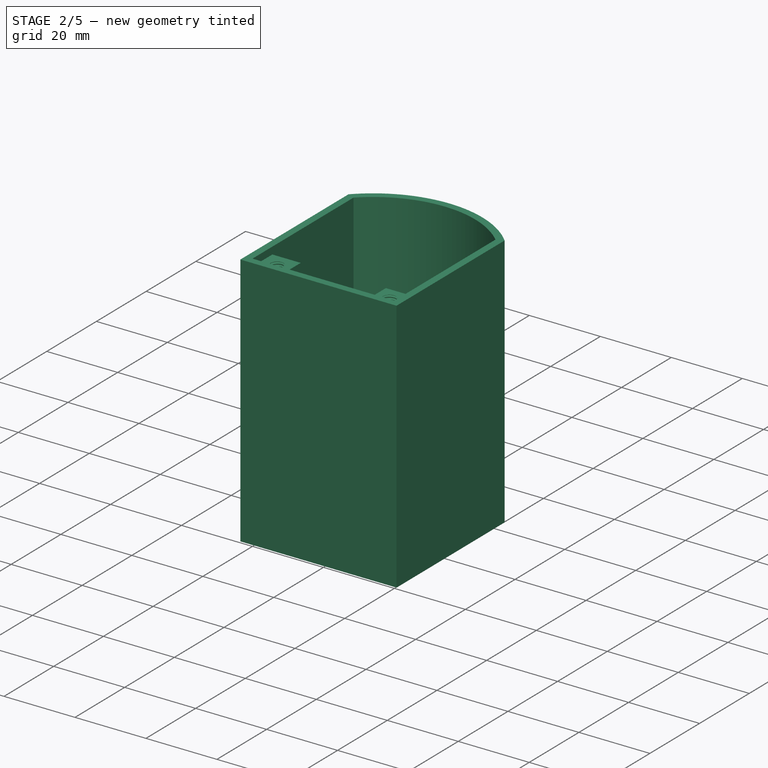
[diagram: stage 2 of 5 — iso view after this stage's code; geometry added in this stage tinted green]
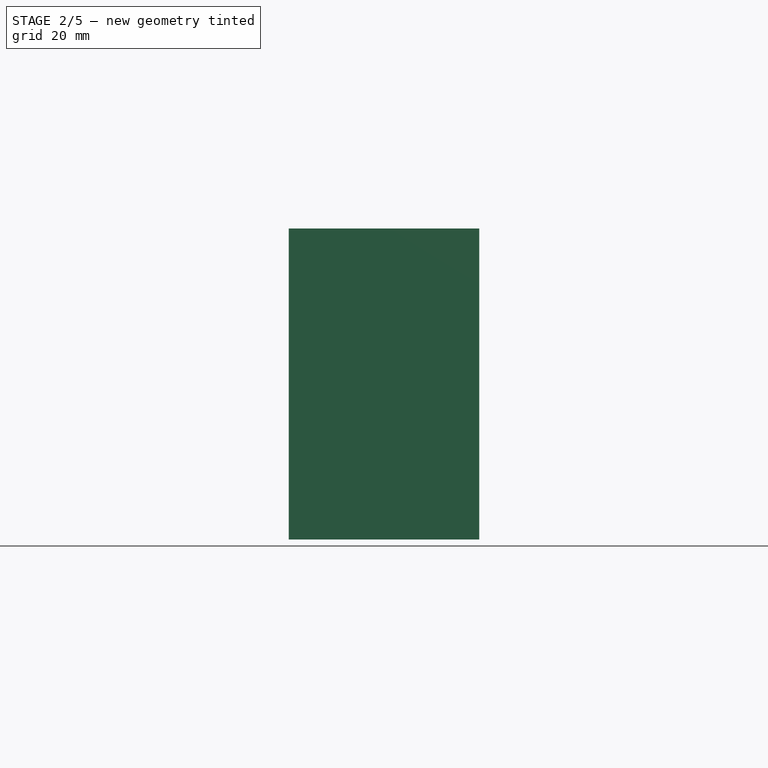
[diagram: stage 2 of 5 — front view after this stage's code; geometry added in this stage tinted green]
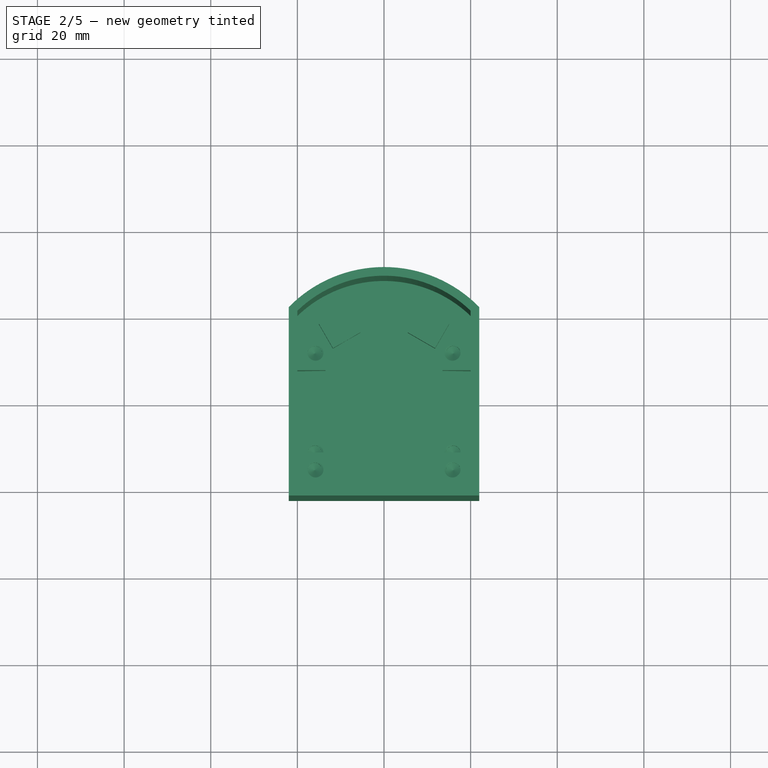
[diagram: stage 2 of 5 — top view after this stage's code; geometry added in this stage tinted green]
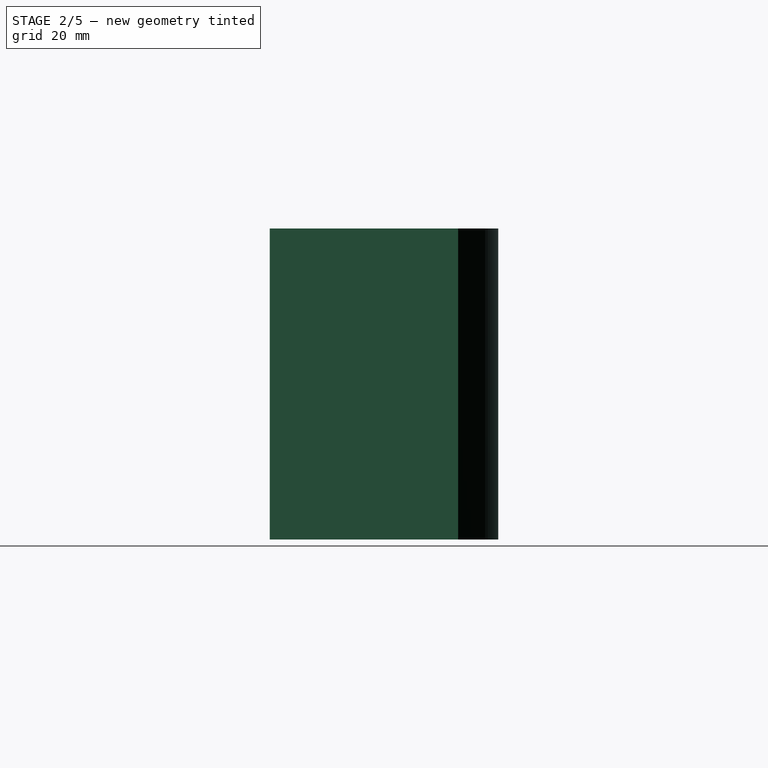
[diagram: stage 2 of 5 — right view after this stage's code; geometry added in this stage tinted green]
FEATURE [PartDesign::Fillet] Fillet019
  Base = -> Pad100 [Edge29]
  BaseFeature = -> Pad100
  Radius = 1.5
  Refine = true
  SupportTransform = false
  Suppressed = false
  UseAllEdges = false
FEATURE [Sketcher::SketchObject] Sketch151
  ArcFitTolerance = 1e-06
  AttachmentSupport = -> [Fillet019]
  ExternalGeometry = -> [Fillet019]
  ExternalTypes = [0,0,0,0]
  FullyConstrained = true
  MakeInternals = false
  MapMode = 5
  Placement = pos=(0,-13.5,3.2e-15) rot=(1,0,0;1.5708rad)
  sketch-geometry (4):
    g0: LineSegment StartX=-1.9 StartY=12.4688 StartZ=0 EndX=-1.9 EndY=8.66879 EndZ=0
    g1: LineSegment StartX=-1.9 StartY=8.66879 StartZ=0 EndX=1.9 EndY=8.66879 EndZ=0
    g2: LineSegment StartX=1.9 StartY=8.66879 StartZ=0 EndX=1.9 EndY=12.4688 EndZ=0
    g3: LineSegment StartX=1.9 StartY=12.4688 StartZ=0 EndX=-1.9 EndY=12.4688 EndZ=0
  constraints (10):
    c: Coincident(g0,g1)
    c: Coincident(g1,g2)
    c: Coincident(g2,g3)
    c: Coincident(g3,g0)
    c: Vertical(g0)
    c: Vertical(g2)
    c: Horizontal(g1)
    c: Horizontal(g3)
    c: Coincident(g0,g-3)
    c: Coincident(g1,g-6)
FEATURE [PartDesign::Pad] Pad101
  BaseFeature = -> Fillet019
  Direction = (0,-1,2e-16)
  Length = 4
  Length2 = 10
  Profile = -> Sketch151
  ReferenceAxis = -> Sketch151 [N_Axis]
  Refine = true
  SideType = 0
  Suppressed = false
  Type = 0
  Type2 = 0
FEATURE [Part::DatumPlane] DatumPlane006
  AttachmentOffset = pos=(0,0,0) rot=(0,1,0;0.785398rad)
  AttachmentSupport = -> [Origin067]
  MapMode = 5
  Placement = pos=(0,0,0) rot=(0.862856,0.357407,0.357407;1.71777rad)
FEATURE [PartDesign::Body] Body030  label="design6-rotor"
  AllowCompound = false
  Group = -> [Binder035,Sketch134,Pad088,Sketch135,Pad089,Sketch137,Pad090,Sketch139,Pad091,DatumPlane005,Sketch140,Pocket030,Fillet014,Mirrored004,Fillet015,Fillet017,Sketch146,Pocket031,DatumPlane006,Mirrored006]
  Origin = -> Origin067
  Tip = -> Mirrored006
FEATURE [Sketcher::SketchObject] Sketch154
  ArcFitTolerance = 1e-06
  AttachmentSupport = -> [Pad101]
  ExternalGeometry = -> [Pad101]
  ExternalTypes = [0,0,0]
  FullyConstrained = true
  MakeInternals = false
  MapMode = 5
  Placement = pos=(0,0,8.66879) rot=(1,0,0;3.14159rad)
  sketch-geometry (4):
    g0: LineSegment StartX=-1.9 StartY=17.5 StartZ=0 EndX=-1.9 EndY=13.7 EndZ=0
    g1: LineSegment StartX=-1.9 StartY=13.7 StartZ=0 EndX=1.9 EndY=13.7 EndZ=0
    g2: LineSegment StartX=1.9 StartY=13.7 StartZ=0 EndX=1.9 EndY=17.5 EndZ=0
    g3: LineSegment StartX=1.9 StartY=17.5 StartZ=0 EndX=-1.9 EndY=17.5 EndZ=0
  constraints (11):
    c: Coincident(g0,g1)
    c: Coincident(g1,g2)
    c: Coincident(g2,g3)
    c: Coincident(g3,g0)
    c: Vertical(g0)
    c: Vertical(g2)
    c: Horizontal(g1)
    c: Horizontal(g3)
    c: Coincident(g0,g-4)
    c: PointOnObject(g1,g-5)
    c: Equal(g2,g3)
FEATURE [PartDesign::Pad] Pad104
  BaseFeature = -> Pad101
  Direction = (0,0,-1)
  Length = 10
  Length2 = 10
  Offset = -8
  Profile = -> Sketch154
  ReferenceAxis = -> Sketch154 [N_Axis]
  Refine = true
  SideType = 0
  Suppressed = false
  Type = 3
  Type2 = 0
  UpToFace = -> Binder039 [Face4]
FEATURE [Sketcher::SketchObject] Sketch153
  ArcFitTolerance = 1e-06
  AttachmentSupport = -> [Pad104]
  ExternalTypes = [0,0,0]
  FullyConstrained = true
  MakeInternals = false
  MapMode = 5
  Placement = pos=(0,-13.7,0) rot=(0,0.707107,0.707107;3.14159rad)
  sketch-geometry (4):
    g0: LineSegment StartX=-1.9 StartY=-11 StartZ=0 EndX=1.9 EndY=-11 EndZ=0
    g1: LineSegment StartX=1.9 StartY=-11 StartZ=0 EndX=1.9 EndY=-7.2 EndZ=0
    g2: LineSegment StartX=1.9 StartY=-7.2 StartZ=0 EndX=-1.9 EndY=-7.2 EndZ=0
    g3: LineSegment StartX=-1.9 StartY=-7.2 StartZ=0 EndX=-1.9 EndY=-11 EndZ=0
  constraints (10):
    c: Coincident(g0,g1)
    c: Coincident(g1,g2)
    c: Coincident(g2,g3)
    c: Coincident(g3,g0)
    c: Horizontal(g2)
    c: Vertical(g1)
    c: Vertical(g3)
    c: Equal(g1,g0)
    c: Coincident(g0,g-5)
    c: Coincident(g0,g-4)
FEATURE [PartDesign::Pad] Pad103
  BaseFeature = -> Pad104
  Direction = (0,1,-2e-16)
  Length = 10
  Length2 = 10
  Profile = -> Sketch153
  ReferenceAxis = -> Sketch153 [N_Axis]
  Refine = true
  SideType = 0
  Suppressed = false
  Type = 3
  Type2 = 0
  UpToFace = -> Pad104 [Face11]
FEATURE [Sketcher::SketchObject] Sketch155
  ArcFitTolerance = 1e-06
  AttachmentSupport = -> [Pad103]
  ExternalGeometry = -> [Pad103]
  ExternalTypes = [0,0,0,0]
  FullyConstrained = true
  MakeInternals = false
  MapMode = 5
  Placement = pos=(1.9,1.1686e-12,1.095e-12) rot=(0.57735,0.57735,0.57735;2.0944rad)
  sketch-geometry (6):
    g0: LineSegment [constr] StartX=-2 StartY=38 StartZ=0 EndX=-2 EndY=-7.2 EndZ=0
    g1: LineSegment [constr] StartX=-4 StartY=38 StartZ=0 EndX=-4 EndY=-7.2 EndZ=0
    g2: LineSegment StartX=-4 StartY=-7.2 StartZ=0 EndX=-4 EndY=-11 EndZ=0
    g3: LineSegment StartX=-4 StartY=-11 StartZ=0 EndX=-2 EndY=-11 EndZ=0
    g4: LineSegment StartX=-2 StartY=-11 StartZ=0 EndX=-2 EndY=-7.2 EndZ=0
    g5: LineSegment StartX=-2 StartY=-7.2 StartZ=0 EndX=-4 EndY=-7.2 EndZ=0
  constraints (16):
    c: Coincident(g0,g-3)
    c: PointOnObject(g0,g-5)
    c: Vertical(g0)
    c: Vertical(g1)
    c: PointOnObject(g1,g-5)
    c: Coincident(g1,g-4)
    c: Coincident(g2,g3)
    c: Coincident(g3,g4)
    c: Coincident(g4,g5)
    c: Coincident(g5,g2)
    c: Vertical(g2)
    c: Vertical(g4)
    c: Horizontal(g3)
    c: Coincident(g2,g1)
    c: PointOnObject(g3,g-6)
    c: Coincident(g4,g0)
FEATURE [PartDesign::Pad] Pad105
  BaseFeature = -> Pad103
  Direction = (1,6.148e-13,5.762e-13)
  Length = 10
  Length2 = 10
  Profile = -> Sketch155
  ReferenceAxis = -> Sketch155 [N_Axis]
  Refine = true
  SideType = 0
  Suppressed = false
  Type = 3
  Type2 = 0
  UpToFace = -> Pad103 [Face16]
FEATURE [PartDesign::Fillet] Fillet020
  Base = -> Pad105 [Edge61]
  BaseFeature = -> Pad105
  Radius = 1.5
  Refine = true
  SupportTransform = false
  Suppressed = false
  UseAllEdges = false
FEATURE [PartDesign::Chamfer] Chamfer004
  Angle = 45
  Base = -> Fillet020 [Edge48,Edge49]
  BaseFeature = -> Fillet020
  ChamferType = 0
  FlipDirection = false
  Refine = true
  Size = 3
  Size2 = 1
  SupportTransform = false
  Suppressed = false
  UseAllEdges = false
FEATURE [PartDesign::Chamfer] Chamfer005
  Angle = 45
  Base = -> Chamfer004 [Edge66]
  BaseFeature = -> Chamfer004
  ChamferType = 0
  FlipDirection = false
  Refine = true
  Size = 0.99
  Size2 = 1
  SupportTransform = false
  Suppressed = false
  UseAllEdges = false
FEATURE [PartDesign::Chamfer] Chamfer006
  Angle = 45
  Base = -> Chamfer005 [Edge44,Edge66]
  BaseFeature = -> Chamfer005
  ChamferType = 0
  FlipDirection = false
  Refine = true
  Size = 3
  Size2 = 1
  SupportTransform = false
  Suppressed = false
  UseAllEdges = false
FEATURE [App::Point] Origin074  label="Origin096"
  Role = Origin
FEATURE [PartDesign::SubShapeBinder] Binder040
  BindCopyOnChange = 0
  BindMode = 0
  ClaimChildren = false
  Context = -> Body033 [Binder040.]
  Fuse = false
  MakeFace = true
  OffsetFill = false
  OffsetIntersection = false
  OffsetJoinType = 0
  OffsetOpenResult = false
  PartialLoad = false
  Refine = true
  Relative = true
  Support = -> [Body032]
  _Version = 2
FEATURE [Sketcher::SketchObject] Sketch157
  ArcFitTolerance = 1e-06
  AttachmentSupport = -> [Binder040]
  ExternalGeometry = -> [Binder040]
  ExternalTypes = [0,0,0,0,0]
  FullyConstrained = true
  MakeInternals = false
  MapMode = 5
  Placement = pos=(-2.28868e-11,-1.6904e-12,41.8) rot=(0,0,1;0rad)
  sketch-geometry (16):
    g0: LineSegment [constr] StartX=5.9 StartY=-4 StartZ=0 EndX=-5.9 EndY=4 EndZ=0
    g1: LineSegment [constr] StartX=5.9 StartY=-4 StartZ=0 EndX=5.9 EndY=-6 EndZ=0
    g2: LineSegment [constr] StartX=-5.9 StartY=4 StartZ=0 EndX=-5.9 EndY=6 EndZ=0
    g3: LineSegment StartX=1.9 StartY=-6 StartZ=0 EndX=5.9 EndY=-6 EndZ=0
    g4: LineSegment StartX=5.9 StartY=-6 StartZ=0 EndX=5.9 EndY=2 EndZ=0
    g5: LineSegment StartX=5.9 StartY=2 StartZ=0 EndX=1.9 EndY=2 EndZ=0
    g6: LineSegment [constr] StartX=1.9 StartY=0 StartZ=0 EndX=1.9 EndY=2 EndZ=0
    g7: LineSegment StartX=-5.9 StartY=6 StartZ=0 EndX=-5.9 EndY=4 EndZ=0
    g8: LineSegment StartX=-5.9 StartY=-2 StartZ=0 EndX=-5.9 EndY=4 EndZ=0
    g9: LineSegment StartX=1.9 StartY=2 StartZ=0 EndX=-1.9 EndY=2 EndZ=0
    g10: LineSegment StartX=-1.9 StartY=2 StartZ=0 EndX=-1.9 EndY=6 EndZ=0
    g11: LineSegment StartX=-1.9 StartY=6 StartZ=0 EndX=-5.9 EndY=6 EndZ=0
    g12: LineSegment [constr] StartX=-1.9 StartY=2 StartZ=0 EndX=-1.9 EndY=1.6829e-12 EndZ=0
    g13: LineSegment StartX=1.9 StartY=-6 StartZ=0 EndX=1.9 EndY=-2 EndZ=0
    g14: LineSegment StartX=1.9 StartY=-2 StartZ=0 EndX=-5.9 EndY=-2 EndZ=0
    g15: LineSegment [constr] StartX=-1.9 StartY=1.6829e-12 StartZ=0 EndX=-1.9 EndY=-2 EndZ=0
  constraints (42):
    c: Coincident(g0,g-3)
    c: Symmetric(g0,g0,g-1)
    c: Coincident(g1,g0)
    c: Vertical(g1)
    c: DistanceY(g1,g1) = 2
    c: Distance(g2) = 2
    c: Vertical(g2)
    c: Coincident(g0,g2)
    c: Coincident(g3,g1)
    c: Horizontal(g3)
    c: Coincident(g4,g1)
    c: Vertical(g4)
    c: Distance(g4,g-1) = 2
    c: Coincident(g5,g4)
    c: Horizontal(g5)
    c: Coincident(g6,g-5)
    c: Coincident(g6,g5)
    c: Vertical(g6)
    c: Coincident(g7,g2)
    c: Coincident(g7,g0)
    c: Coincident(g8,g0)
    c: Vertical(g8)
    c: Coincident(g9,g5)
    c: Horizontal(g9)
    c: Coincident(g10,g9)
    c: Vertical(g10)
    c: Coincident(g11,g10)
    c: Coincident(g11,g2)
    c: Horizontal(g11)
    c: Coincident(g12,g9)
    c: Coincident(g12,g-6)
    c: Vertical(g12)
    c: Coincident(g13,g3)
    c: Vertical(g13)
    c: Coincident(g14,g13)
    c: Horizontal(g14)
    c: Coincident(g8,g14)
    c: PointOnObject(g3,g-7)
    c: Vertical(g15)
    c: Equal(g15,g12)
    c: PointOnObject(g15,g14)
    c: Coincident(g15,g12)
FEATURE [PartDesign::Pad] Pad106
  Direction = (-5.475e-13,-4.04e-14,1)
  Length = 2
  Length2 = 10
  Profile = -> Sketch157
  ReferenceAxis = -> Sketch157 [N_Axis]
  Refine = true
  SideType = 0
  Suppressed = false
  Type = 0
  Type2 = 0
FEATURE [Sketcher::SketchObject] Sketch158
  ArcFitTolerance = 1e-06
  AttachmentSupport = -> [Pad106]
  ExternalGeometry = -> [Binder040,Pad106]
  ExternalTypes = [0,0,0,0,0,0,0,0,0,0]
  FullyConstrained = true
  MakeInternals = false
  MapMode = 5
  Placement = pos=(-2.2883e-11,-1.7034e-12,41.8) rot=(1,0,0;3.14159rad)
  sketch-geometry (17):
    g0: LineSegment StartX=1.9 StartY=4 StartZ=0 EndX=5.9 EndY=4 EndZ=0
    g1: LineSegment StartX=5.9 StartY=4 StartZ=0 EndX=5.9 EndY=6 EndZ=0
    g2: LineSegment StartX=5.9 StartY=6 StartZ=0 EndX=1.9 EndY=6 EndZ=0
    g3: LineSegment [constr] StartX=1.9 StartY=4 StartZ=0 EndX=-1.9 EndY=-4 EndZ=0
    g4: LineSegment StartX=-1.9 StartY=-4 StartZ=0 EndX=-5.9 EndY=-4 EndZ=0
    g5: LineSegment StartX=-5.9 StartY=-4 StartZ=0 EndX=-5.9 EndY=-6 EndZ=0
    g6: LineSegment StartX=-5.9 StartY=-6 StartZ=0 EndX=-1.9 EndY=-6 EndZ=0
    g7: LineSegment StartX=-1.9 StartY=-6 StartZ=0 EndX=-1.9 EndY=-4 EndZ=0
    g8: LineSegment StartX=1.9 StartY=6 StartZ=0 EndX=1.9 EndY=4 EndZ=0
    g9: LineSegment StartX=1.9 StartY=4.468e-13 StartZ=0 EndX=5.9 EndY=4.468e-13 EndZ=0
    g10: LineSegment StartX=5.9 StartY=2 StartZ=0 EndX=5.9 EndY=4.468e-13 EndZ=0
    g11: LineSegment StartX=-5.9 StartY=0 StartZ=0 EndX=-1.9 EndY=0 EndZ=0
    g12: LineSegment [constr] StartX=-1.9 StartY=-2 StartZ=0 EndX=-1.9 EndY=0 EndZ=0
    g13: LineSegment StartX=-5.9 StartY=0 StartZ=0 EndX=-5.9 EndY=-2 EndZ=0
    g14: LineSegment StartX=-5.9 StartY=-2 StartZ=0 EndX=-3.4 EndY=-2 EndZ=0
    g15: ArcOfCircle CenterX=-3.4 CenterY=-0.5 CenterZ=0 NormalX=0 NormalY=0 NormalZ=1 AngleXU=0 Radius=1.5 StartAngle=4.71239 EndAngle=6.28318
    g16: LineSegment StartX=-1.9 StartY=-0.5 StartZ=0 EndX=-1.9 EndY=0 EndZ=0
  constraints (44):
    c: Coincident(g0,g1)
    c: Coincident(g1,g2)
    c: Horizontal(g2)
    c: Coincident(g0,g-3)
    c: Coincident(g3,g0)
    c: Symmetric(g3,g0,g-1)
    c: Coincident(g4,g5)
    c: Coincident(g5,g6)
    c: Coincident(g6,g7)
    c: Coincident(g7,g4)
    c: Horizontal(g4)
    c: Horizontal(g6)
    c: Vertical(g5)
    c: Vertical(g7)
    c: Coincident(g4,g3)
    c: Coincident(g5,g-7)
    c: Coincident(g0,g-8)
    c: Coincident(g1,g-4)
    c: PointOnObject(g2,g-8)
    c: Coincident(g8,g2)
    c: Coincident(g8,g0)
    c: Coincident(g9,g-11)
    c: PointOnObject(g9,g-4)
    c: Horizontal(g9)
    c: Coincident(g10,g-10)
    c: Coincident(g10,g9)
    c: PointOnObject(g11,g-5)
    c: PointOnObject(g11,g-1)
    c: Horizontal(g11)
    c: Coincident(g12,g-6)
    c: Vertical(g12)
    c: Coincident(g11,g12)
    c: PointOnObject(g13,g-5)
    c: Coincident(g14,g13)
    c: Horizontal(g14)
    c: Angle(g15) = 1.5708
    c: Coincident(g15,g14)
    c: Coincident(g16,g15)
    c: Coincident(g16,g11)
    c: Vertical(g16)
    c: Equal(g-11,g16)
    c: Equal(g14,g-10)
    c: Equal(g15,g-9)
    c: Coincident(g13,g11)
FEATURE [PartDesign::Pad] Pad107
  BaseFeature = -> Pad106
  Direction = (5.474e-13,4.08e-14,-1)
  Length = 10
  Length2 = 10
  Profile = -> Sketch158
  ReferenceAxis = -> Sketch158 [N_Axis]
  Refine = true
  SideType = 0
  Suppressed = false
  Type = 3
  Type2 = 0
  UpToFace = -> Binder040 [Face16]
FEATURE [PartDesign::Body] Body033  label="design6-mirror-attachment"
  AllowCompound = false
  Group = -> [Binder040,Sketch157,Pad106,Sketch158,Pad107]
  Origin = -> Origin073
  Tip = -> Pad107
FEATURE [Part::FeaturePython] Clone006  label="design6-mirror-attachment001"  # Draft clone (typed FeaturePython)
  AttacherType = Attacher::AttachEngine3D
  ForceCompound = false
  Fuse = false
  Objects = -> [Body033]
  Placement = pos=(5.4e-15,0,31.5554) rot=(0,1,0;3.14159rad)
  Scale = (1,1,1)
FEATURE [Part::Mirroring] Mirror009  label="design6-mirror-attachment-mirrored"
  Base = (0,0,0)
  MirrorPlane = -> XY_Plane002
  Normal = (0,0,1)
  Placement = pos=(0,0,-0.7554) rot=(0,0,1;0rad)
  Source = -> Clone006
FEATURE [App::Point] Origin076  label="Origin099"
  Role = Origin
FEATURE [App::Point] Origin078  label="Origin102"
  Role = Origin
FEATURE [PartDesign::FeatureBase] Clone007
  BaseFeature = -> Pad107
  Suppressed = false
FEATURE [Sketcher::SketchObject] Sketch166
  ArcFitTolerance = 1e-06
  AttachmentSupport = -> [Clone007]
  ExternalGeometry = -> [Pad107]
  ExternalTypes = [0,0]
  FullyConstrained = true
  MakeInternals = false
  MapMode = 5
  Placement = pos=(-2.39779e-11,-1.7849e-12,43.8) rot=(0,0,1;0rad)
  sketch-geometry (4):
    g0: LineSegment StartX=-1.9 StartY=2 StartZ=0 EndX=-1.9 EndY=-2 EndZ=0
    g1: LineSegment StartX=-1.9 StartY=-2 StartZ=0 EndX=1.9 EndY=-2 EndZ=0
    g2: LineSegment StartX=1.9 StartY=-2 StartZ=0 EndX=1.9 EndY=2 EndZ=0
    g3: LineSegment StartX=1.9 StartY=2 StartZ=0 EndX=-1.9 EndY=2 EndZ=0
  constraints (10):
    c: Coincident(g0,g1)
    c: Coincident(g1,g2)
    c: Coincident(g2,g3)
    c: Coincident(g3,g0)
    c: Vertical(g0)
    c: Vertical(g2)
    c: Horizontal(g1)
    c: Horizontal(g3)
    c: Coincident(g0,g-3)
    c: Coincident(g1,g-4)
FEATURE [PartDesign::Pad] Pad112
  BaseFeature = -> Clone007
  Direction = (-5.474e-13,-4.08e-14,1)
  Length = 10
  Length2 = 10
  Profile = -> Sketch166
  ReferenceAxis = -> Sketch166 [N_Axis]
  Refine = true
  SideType = 0
  Suppressed = false
  Type = 0
  Type2 = 0
FEATURE [Sketcher::SketchObject] Sketch165
  ArcFitTolerance = 1e-06
  AttachmentSupport = -> [Pad112]
  ExternalTypes = [0,0,0,0]
  FullyConstrained = true
  MakeInternals = false
  MapMode = 5
  Placement = pos=(-2.94754e-11,-2.1983e-12,53.8) rot=(0,0,1;0rad)
  sketch-geometry (14):
    g0: LineSegment StartX=-0.9 StartY=2 StartZ=0 EndX=-0.9 EndY=-2 EndZ=0
    g1: LineSegment StartX=-0.9 StartY=-2 StartZ=0 EndX=0.9 EndY=-2 EndZ=0
    g2: LineSegment StartX=0.9 StartY=-2 StartZ=0 EndX=0.9 EndY=2 EndZ=0
    g3: LineSegment StartX=0.9 StartY=2 StartZ=0 EndX=-0.9 EndY=2 EndZ=0
    g4: LineSegment StartX=-1.4 StartY=-2 StartZ=0 EndX=-1.4 EndY=2 EndZ=0
    g5: LineSegment StartX=-1.4 StartY=2 StartZ=0 EndX=-2 EndY=2 EndZ=0
    g6: LineSegment StartX=-2 StartY=2 StartZ=0 EndX=-2 EndY=-2 EndZ=0
    g7: LineSegment StartX=-2 StartY=-2 StartZ=0 EndX=-1.4 EndY=-2 EndZ=0
    g8: LineSegment [constr] StartX=-0.9 StartY=2 StartZ=0 EndX=-1.4 EndY=2 EndZ=0
    g9: LineSegment StartX=1.4 StartY=-2 StartZ=0 EndX=2 EndY=-2 EndZ=0
    g10: LineSegment StartX=2 StartY=-2 StartZ=0 EndX=2 EndY=2 EndZ=0
    g11: LineSegment StartX=2 StartY=2 StartZ=0 EndX=1.4 EndY=2 EndZ=0
    g12: LineSegment StartX=1.4 StartY=2 StartZ=0 EndX=1.4 EndY=-2 EndZ=0
    g13: LineSegment [constr] StartX=0.9 StartY=2 StartZ=0 EndX=1.4 EndY=2 EndZ=0
  constraints (36):
    c: Coincident(g0,g1)
    c: Coincident(g1,g2)
    c: Coincident(g2,g3)
    c: Coincident(g3,g0)
    c: Vertical(g0)
    c: Vertical(g2)
    c: Horizontal(g1)
    c: Horizontal(g3)
    c: Symmetric(g0,g1,g-1)
    c: Distance(g3,g3) = 1.8
    c: Coincident(g4,g5)
    c: Coincident(g5,g6)
    c: Coincident(g6,g7)
    c: Coincident(g7,g4)
    c: Vertical(g4)
    c: Horizontal(g5)
    c: Horizontal(g7)
    c: Coincident(g8,g0)
    c: Coincident(g8,g4)
    c: Horizontal(g8)
    c: Distance(g4,g0) = 0.5
    c: Coincident(g9,g10)
    c: Coincident(g10,g11)
    c: Coincident(g11,g12)
    c: Coincident(g12,g9)
    c: Horizontal(g9)
    c: Horizontal(g11)
    c: Vertical(g10)
    c: Vertical(g12)
    c: Equal(g11,g5)
    c: Coincident(g13,g2)
    c: Coincident(g13,g11)
    c: Horizontal(g13)
    c: Coincident(g5,g-4)
    c: Coincident(g6,g-3)
    c: Coincident(g9,g-5)
FEATURE [PartDesign::Pocket] Pocket033
  BaseFeature = -> Pad112
  Direction = (5.479e-13,4.09e-14,-1)
  Length = 2
  Length2 = 5
  Profile = -> Sketch165
  ReferenceAxis = -> Sketch165 [N_Axis]
  Refine = true
  SideType = 0
  Suppressed = false
  Type = 0
  Type2 = 0
FEATURE [PartDesign::Fillet] Fillet022
  Base = -> Pocket033 [Edge70,Edge63]
  BaseFeature = -> Pocket033
  Radius = 0.49
  Refine = true
  SupportTransform = false
  Suppressed = false
  UseAllEdges = false
FEATURE [PartDesign::Body] Body035  label="design6-mirror-attachment-top"
  AllowCompound = false
  Group = -> [Clone007,Sketch166,Sketch165,Pad112,Pocket033,Fillet022]
  Origin = -> Origin077
  Tip = -> Fillet022
FEATURE [App::Point] Origin080  label="Origin105"
  Role = Origin
FEATURE [PartDesign::FeatureBase] Clone008
  BaseFeature = -> Mirror009
  Placement = pos=(0,0,-0.7554) rot=(0,0,1;0rad)
  Suppressed = false
FEATURE [Sketcher::SketchObject] Sketch167
  ArcFitTolerance = 1e-06
  AttachmentSupport = -> [Clone008]
  ExternalGeometry = -> [Clone008]
  ExternalTypes = [0,0]
  FullyConstrained = true
  MakeInternals = false
  MapMode = 5
  Placement = pos=(6.7048e-12,-4.99e-13,11.4892) rot=(0,0,1;0rad)
  sketch-geometry (4):
    g0: LineSegment StartX=-1.9 StartY=-2 StartZ=0 EndX=1.9 EndY=-2 EndZ=0
    g1: LineSegment StartX=1.9 StartY=-2 StartZ=0 EndX=1.9 EndY=2 EndZ=0
    g2: LineSegment StartX=1.9 StartY=2 StartZ=0 EndX=-1.9 EndY=2 EndZ=0
    g3: LineSegment StartX=-1.9 StartY=2 StartZ=0 EndX=-1.9 EndY=-2 EndZ=0
  constraints (10):
    c: Coincident(g0,g1)
    c: Coincident(g1,g2)
    c: Coincident(g2,g3)
    c: Coincident(g3,g0)
    c: Horizontal(g0)
    c: Horizontal(g2)
    c: Vertical(g1)
    c: Vertical(g3)
    c: Coincident(g0,g-4)
    c: Coincident(g1,g-3)
FEATURE [PartDesign::Pad] Pad113
  BaseFeature = -> Clone008
  Direction = (5.476e-13,-4.08e-14,1)
  Length = 2
  Length2 = 10
  Placement = pos=(0,0,-0.7554) rot=(0,0,1;0rad)
  Profile = -> Sketch167
  ReferenceAxis = -> Sketch167 [N_Axis]
  Refine = true
  SideType = 0
  Suppressed = false
  Type = 0
  Type2 = 0
FEATURE [Sketcher::SketchObject] Sketch168
  ArcFitTolerance = 1e-06
  AttachmentSupport = -> [Pad113]
  ExternalGeometry = -> [Pad113]
  ExternalTypes = [0,0,0]
  FullyConstrained = true
  MakeInternals = false
  MapMode = 5
  Placement = pos=(7.8042e-12,-5.82e-13,13.4892) rot=(0,0,1;0rad)
  sketch-geometry (12):
    g0: LineSegment StartX=-1.9 StartY=0.9 StartZ=0 EndX=-1.9 EndY=-0.9 EndZ=0
    g1: LineSegment StartX=-1.9 StartY=-0.9 StartZ=0 EndX=1.9 EndY=-0.9 EndZ=0
    g2: LineSegment StartX=1.9 StartY=-0.9 StartZ=0 EndX=1.9 EndY=0.9 EndZ=0
    g3: LineSegment StartX=1.9 StartY=0.9 StartZ=0 EndX=-1.9 EndY=0.9 EndZ=0
    g4: LineSegment StartX=-1.9 StartY=2 StartZ=0 EndX=-1.9 EndY=1.4 EndZ=0
    g5: LineSegment StartX=-1.9 StartY=1.4 StartZ=0 EndX=1.9 EndY=1.4 EndZ=0
    g6: LineSegment StartX=1.9 StartY=1.4 StartZ=0 EndX=1.9 EndY=2 EndZ=0
    g7: LineSegment StartX=1.9 StartY=2 StartZ=0 EndX=-1.9 EndY=2 EndZ=0
    g8: LineSegment StartX=-1.9 StartY=-2 StartZ=0 EndX=1.9 EndY=-2 EndZ=0
    g9: LineSegment StartX=1.9 StartY=-2 StartZ=0 EndX=1.9 EndY=-1.4 EndZ=0
    g10: LineSegment StartX=1.9 StartY=-1.4 StartZ=0 EndX=-1.9 EndY=-1.4 EndZ=0
    g11: LineSegment StartX=-1.9 StartY=-1.4 StartZ=0 EndX=-1.9 EndY=-2 EndZ=0
  constraints (33):
    c: Coincident(g0,g1)
    c: Vertical(g0)
    c: Vertical(g2)
    c: Horizontal(g1)
    c: Symmetric(g1,g0,g-1)
    c: Coincident(g0,g3)
    c: Coincident(g2,g3)
    c: Horizontal(g3)
    c: Coincident(g1,g2)
    c: PointOnObject(g1,g-5)
    c: Distance(g2,g2) = 1.8
    c: Coincident(g4,g5)
    c: Coincident(g5,g6)
    c: Coincident(g6,g7)
    c: Coincident(g7,g4)
    c: Vertical(g4)
    c: Vertical(g6)
    c: Horizontal(g5)
    c: Horizontal(g7)
    c: Coincident(g4,g-4)
    c: PointOnObject(g5,g-5)
    c: Distance(g5,g3) = 0.5
    c: Coincident(g8,g9)
    c: Coincident(g9,g10)
    c: Coincident(g10,g11)
    c: Coincident(g11,g8)
    c: Horizontal(g8)
    c: Horizontal(g10)
    c: Vertical(g9)
    c: Vertical(g11)
    c: Coincident(g8,g-3)
    c: PointOnObject(g9,g-5)
    c: Distance(g9,g1) = 0.5
FEATURE [PartDesign::Pocket] Pocket034
  BaseFeature = -> Pad113
  Direction = (-5.479e-13,4.09e-14,-1)
  Length = 2
  Length2 = 5
  Placement = pos=(0,0,-0.7554) rot=(0,0,1;0rad)
  Profile = -> Sketch168
  ReferenceAxis = -> Sketch168 [N_Axis]
  Refine = true
  SideType = 0
  Suppressed = false
  Type = 0
  Type2 = 0
FEATURE [PartDesign::Fillet] Fillet023
  Base = -> Pocket034 [Edge68,Edge74]
  BaseFeature = -> Pocket034
  Placement = pos=(0,0,-0.7554) rot=(0,0,1;0rad)
  Radius = 0.59
  Refine = true
  SupportTransform = false
  Suppressed = false
  UseAllEdges = false
FEATURE [PartDesign::Body] Body036  label="design6-mirror-attachment-bottom"
  AllowCompound = false
  Group = -> [Clone008,Sketch167,Pad113,Sketch168,Pocket034,Fillet023]
  Origin = -> Origin079
  Tip = -> Fillet023
FEATURE [App::Link] Link  label="design6-rotor001"
  LinkPlacement = pos=(-7.28e-14,0,3e-16) rot=(0,0,1;0rad)
  LinkedObject = -> Body030
  Placement = pos=(-7.28e-14,0,3e-16) rot=(0,0,1;0rad)
FEATURE [App::Link] Link001  label="design6-casing001"
  LinkedObject = -> Body031
FEATURE [App::Link] Link002  label="design6-attachment001"
  LinkPlacement = pos=(0,-1.7071e-12,1.0355e-12) rot=(0,0,1;0rad)
  LinkedObject = -> Body032
  Placement = pos=(0,-1.7071e-12,1.0355e-12) rot=(0,0,1;0rad)
FEATURE [App::Link] Link003  label="design6-mirror-attachment-top001"
  LinkPlacement = pos=(-1.74549e-10,-9.58273e-11,-4.28603e-10) rot=(-1.1e-05,-0.000761,-1.00108;0rad)
  LinkedObject = -> Body035
  Placement = pos=(-1.74549e-10,-9.58273e-11,-4.28603e-10) rot=(-1.1e-05,-0.000761,-1.00108;0rad)
FEATURE [App::Link] Link004  label="design6-mirror-attachment-bottom001"
  LinkPlacement = pos=(-8.2933e-12,-6.83389e-10,-1.51079) rot=(-1,0,0;3.14159rad)
  LinkedObject = -> Body036
  Placement = pos=(-8.2933e-12,-6.83389e-10,-1.51079) rot=(-1,0,0;3.14159rad)
FEATURE [App::Link] Link005  label="design6-stator001"
  LinkPlacement = pos=(0,0,2e-16) rot=(0,0,1;3.14159rad)
  LinkedObject = -> Body028
  Placement = pos=(0,0,2e-16) rot=(0,0,1;3.14159rad)
FEATURE [App::Link] Link006  label="small_bearing001"
  LinkPlacement = pos=(1e-16,0,0) rot=(0,0,1;0rad)
  LinkedObject = -> Body029
  Placement = pos=(1e-16,0,0) rot=(0,0,1;0rad)
FEATURE [App::Link] Link007  label="design6-attachment002"
  LinkPlacement = pos=(-2.9e-15,6.75e-13,9.158e-13) rot=(0,0,1;3.14159rad)
  LinkedObject = -> Body032
  Placement = pos=(-2.9e-15,6.75e-13,9.158e-13) rot=(0,0,1;3.14159rad)
FEATURE [Part::FeaturePython] Parts  # WARN: FeaturePython — macro-defined, semantics opaque (R4)
  Group = -> [Link,Link001,Link002,Link003,Link004,Link005,Link006,Link007]
  GroupMode = 0
FEATURE [PartDesign::SubShapeBinder] Binder041
  BindCopyOnChange = 0
  BindMode = 0
  ClaimChildren = false
  Context = -> Body034 [Binder041.]
  Fuse = false
  MakeFace = true
  OffsetFill = false
  OffsetIntersection = false
  OffsetJoinType = 0
  OffsetOpenResult = false
  PartialLoad = false
  Refine = true
  Relative = true
  Support = -> [Assembly]
  _Version = 2
FEATURE [Sketcher::SketchObject] Sketch161
  ArcFitTolerance = 1e-06
  AttachmentOffset = pos=(0,0,9) rot=(0,0,1;0rad)
  AttachmentSupport = -> [Binder041]
  ExternalGeometry = -> [Binder041]
  ExternalTypes = [0,0,0]
  FullyConstrained = true
  MakeInternals = false
  MapMode = 5
  Placement = pos=(2.78355e-11,2.19082e-10,-22) rot=(1,0,0;3.14159rad)
  sketch-geometry (15):
    g0: LineSegment [constr] StartX=-20 StartY=28.7612 StartZ=0 EndX=-20 EndY=-28.7612 EndZ=0
    g1: LineSegment [constr] StartX=-20 StartY=-28.7612 StartZ=0 EndX=20 EndY=-28.7612 EndZ=0
    g2: LineSegment [constr] StartX=20 StartY=-28.7612 StartZ=0 EndX=20 EndY=28.7612 EndZ=0
    g3: LineSegment [constr] StartX=20 StartY=28.7612 StartZ=0 EndX=-20 EndY=28.7612 EndZ=0
    g4: GeomPoint X=-1e-16 Y=28.7612 Z=0
    g5: GeomPoint X=1e-16 Y=-28.7612 Z=0
    g6: LineSegment StartX=-22 StartY=22 StartZ=0 EndX=-22 EndY=-21.5 EndZ=0
    g7: GeomPoint X=-1e-16 Y=30.7612 Z=0
    g8: LineSegment [constr] StartX=-1e-16 StartY=28.7612 StartZ=0 EndX=-1e-16 EndY=30.7612 EndZ=0
    g9: LineSegment StartX=22 StartY=22 StartZ=0 EndX=22 EndY=-21.5 EndZ=0
    g10: GeomPoint X=0 Y=-30.7612 Z=0
    g11: ArcOfCircle CenterX=0 CenterY=0 CenterZ=0 NormalX=0 NormalY=0 NormalZ=1 AngleXU=0 Radius=30.7612 StartAngle=3.9155 EndAngle=5.50928
    g12: LineSegment StartX=-22 StartY=22 StartZ=0 EndX=22 EndY=22 EndZ=0
    g13: LineSegment [constr] StartX=-19 StartY=-15.5 StartZ=0 EndX=-22 EndY=-15.5 EndZ=0
    g14: LineSegment [constr] StartX=-22 StartY=-21.5 StartZ=0 EndX=-22 EndY=-15.5 EndZ=0
  constraints (36):
    c: Coincident(g0,g1)
    c: Coincident(g1,g2)
    c: Coincident(g2,g3)
    c: Coincident(g3,g0)
    c: Vertical(g0)
    c: Vertical(g2)
    c: Horizontal(g1)
    c: Horizontal(g3)
    c: Symmetric(g3,g3,g4)
    c: Symmetric(g1,g1,g5)
    c: Symmetric(g5,g4,g-1)
    c: Vertical(g6)
    c: Distance(g6,g0) = 2
    c: Coincident(g8,g4)
    c: Coincident(g8,g7)
    c: Distance(g8,g8) = 2
    c: Vertical(g8)
    c: Vertical(g9)
    c: Distance(g2,g9) = 2
    c: PointOnObject(g10,g-2)
    c: Distance(g10,g5) = 2
    c: Coincident(g11,g-1)
    c: Coincident(g11,g6)
    c: Coincident(g11,g9)
    c: PointOnObject(g10,g11)
    c: Coincident(g12,g6)
    c: Coincident(g12,g9)
    c: Horizontal(g12)
    c: Distance(g-3,g0) = 1
    c: Coincident(g13,g-5)
    c: PointOnObject(g13,g6)
    c: Horizontal(g13)
    c: Distance(g-4,g12) = 4.5
    c: Coincident(g14,g6)
    c: Coincident(g14,g13)
    c: Distance(g14,g14) = 6
FEATURE [PartDesign::Pad] Pad109
  Direction = (1.2653e-12,9.9583e-12,-1)
  Length = 2
  Length2 = 10
  Profile = -> Sketch161
  ReferenceAxis = -> Sketch161 [N_Axis]
  Refine = true
  SideType = 0
  Suppressed = false
  Type = 0
  Type2 = 0
FEATURE [Sketcher::SketchObject] Sketch162
  ArcFitTolerance = 1e-06
  AttachmentSupport = -> [Pad109]
  ExternalGeometry = -> [Pad109]
  ExternalTypes = [0]
  FullyConstrained = true
  MakeInternals = false
  MapMode = 5
  Placement = pos=(2.78354e-11,2.19082e-10,-22) rot=(0,0,1;0rad)
  sketch-geometry (8):
    g0: LineSegment StartX=20 StartY=-20 StartZ=0 EndX=20 EndY=20.6689 EndZ=0
    g1: ArcOfCircle CenterX=1e-16 CenterY=-4e-16 CenterZ=0 NormalX=0 NormalY=0 NormalZ=1 AngleXU=0 Radius=28.7612 StartAngle=0.801845 EndAngle=2.33975
    g2: LineSegment StartX=-20 StartY=-20 StartZ=0 EndX=-20 EndY=20.6689 EndZ=0
    g3: LineSegment StartX=-20 StartY=-20 StartZ=0 EndX=20 EndY=-20 EndZ=0
    g4: LineSegment [constr] StartX=0 StartY=28.7612 StartZ=0 EndX=0 EndY=30.7612 EndZ=0
    g5: GeomPoint [constr] X=0 Y=20.6689 Z=0
    g6: LineSegment [constr] StartX=-20 StartY=20.6689 StartZ=0 EndX=0 EndY=20.6689 EndZ=0
    g7: LineSegment [constr] StartX=0 StartY=20.6689 StartZ=0 EndX=20 EndY=20.6689 EndZ=0
  constraints (22):
    c: Coincident(g0,g1)
    c: Coincident(g0,g3)
    c: Coincident(g1,g2)
    c: Coincident(g2,g3)
    c: Distance(g-5,g0) = 2
    c: Distance(g0,g-6) = 2
    c: Distance(g2,g-3) = 2
    c: Distance(g1,g-3) = 2
    c: Distance(g0,g-5) = 2
    c: PointOnObject(g4,g1)
    c: PointOnObject(g4,g-4)
    c: Vertical(g4)
    c: Distance(g4,g4) = 2
    c: PointOnObject(g4,g-2)
    c: PointOnObject(g5,g-2)
    c: Coincident(g6,g1)
    c: Coincident(g6,g5)
    c: Horizontal(g6)
    c: Coincident(g7,g5)
    c: Coincident(g7,g0)
    c: Coincident(g1,g-4)
    c: Distance(g2,g-6) = 2
FEATURE [PartDesign::Pad] Pad110
  BaseFeature = -> Pad109
  Direction = (-1.2652e-12,-9.9583e-12,1)
  Length = 10
  Length2 = 10
  Offset = -4
  Profile = -> Sketch162
  ReferenceAxis = -> Sketch162 [N_Axis]
  Refine = true
  SideType = 0
  Suppressed = false
  Type = 3
  Type2 = 0
  UpToFace = -> Binder041 [Face166]
FEATURE [PartDesign::Body] Body031  label="design6-casing"
  AllowCompound = false
  Group = -> [Binder036,Binder037,Sketch141,Pad092,Sketch142,Pad093,Sketch143,Pad094,Sketch144,Pad095,Sketch145,Pad096,Mirrored005,Fillet021,Sketch173,Pad116,Sketch174,Pad117,Sketch175,Hole003,Chamfer008,MultiTransform005,Mirror012,Mirror013]
  Origin = -> Origin069
  Tip = -> MultiTransform005
FEATURE [Sketcher::SketchObject] Sketch176
  ArcFitTolerance = 1e-06
  AttachmentSupport = -> [Pad110]
  ExternalGeometry = -> [Binder041]
  ExternalTypes = [0,0,0,0]
  FullyConstrained = true
  MakeInternals = false
  MapMode = 5
  Placement = pos=(20,0,2.53049e-11) rot=(0.57735,-0.57735,-0.57735;2.0944rad)
  sketch-geometry (4):
    g0: LineSegment StartX=7.5 StartY=14.4 StartZ=0 EndX=7.5 EndY=7.4 EndZ=0
    g1: LineSegment StartX=7.5 StartY=7.4 StartZ=0 EndX=15.5 EndY=7.4 EndZ=0
    g2: LineSegment StartX=15.5 StartY=7.4 StartZ=0 EndX=15.5 EndY=14.4 EndZ=0
    g3: LineSegment StartX=15.5 StartY=14.4 StartZ=0 EndX=7.5 EndY=14.4 EndZ=0
  constraints (10):
    c: Coincident(g0,g1)
    c: Coincident(g1,g2)
    c: Coincident(g2,g3)
    c: Coincident(g3,g0)
    c: Vertical(g0)
    c: Vertical(g2)
    c: Horizontal(g1)
    c: Coincident(g0,g-5)
    c: Coincident(g2,g-6)
    c: DistanceY(g2,g2) = 7
FEATURE [PartDesign::Pad] Pad118
  BaseFeature = -> Pad110
  Direction = (-1,0,-1.2652e-12)
  Length = 6
  Length2 = 10
  Offset = -0.5
  Profile = -> Sketch176
  ReferenceAxis = -> Sketch176 [N_Axis]
  Refine = true
  SideType = 0
  Suppressed = false
  Type = 3
  Type2 = 0
  UpToFace = -> Binder041 [Face41]
FEATURE [Sketcher::SketchObject] Sketch177
  ArcFitTolerance = 1e-06
  AttachmentSupport = -> [Pad118]
  ExternalGeometry = -> [Binder041]
  ExternalTypes = [0]
  FullyConstrained = true
  MakeInternals = false
  MapMode = 5
  Placement = pos=(-1.8219e-11,-1.9345e-12,14.4) rot=(0,0,1;0rad)
  sketch-geometry (1):
    g0: GeomPoint X=16 Y=-11.5 Z=0
  constraints (1):
    c: Coincident(g0,g-3)
FEATURE [PartDesign::Chamfer] Chamfer009
  Angle = 45
  Base = -> Pad118 [Edge21]
  BaseFeature = -> Pad118
  ChamferType = 2
  FlipDirection = false
  Refine = true
  Size = 6.49
  Size2 = 1
  SupportTransform = false
  Suppressed = false
  UseAllEdges = false
FEATURE [PartDesign::Hole] Hole
  BaseFeature = -> Chamfer009
  BaseProfileType = 7
  CustomThreadClearance = 0
  Depth = 6
  DepthType = 0
  Diameter = 3.322
  DrillForDepth = false
  DrillPoint = 1
  DrillPointAngle = 118
  HoleCutCountersinkAngle = 90
  HoleCutCustomValues = false
  HoleCutDepth = 0
  HoleCutDiameter = 0
  HoleCutType = 0
  ModelThread = true
  Profile = -> Sketch177 [Vertex1]
  Refine = true
  Suppressed = false
  Tapered = false
  TaperedAngle = 90
  ThreadClass = 0
  ThreadDepth = 6
  ThreadDepthType = 0
  ThreadDiameter = 4
  ThreadDirection = 0
  ThreadFit = 0
  ThreadSize = 11
  ThreadType = 1
  Threaded = true
  UseCustomThreadClearance = false
FEATURE [PartDesign::Mirrored] Mirror014
  MirrorPlane = -> YZ_Plane035
  Refine = true
  Suppressed = false
  TransformMode = 0
FEATURE [PartDesign::Mirrored] Mirror015
  MirrorPlane = -> XZ_Plane035
  Refine = true
  Suppressed = false
  TransformMode = 0
FEATURE [PartDesign::MultiTransform] MultiTransform006
  BaseFeature = -> Hole
  Originals = -> [Pad118,Chamfer009,Hole]
  Refine = true
  Suppressed = false
  TransformMode = 0
  Transformations = -> [Mirror014,Mirror015]
FEATURE [Sketcher::SketchObject] Sketch178
  ArcFitTolerance = 1e-06
  AttachmentSupport = -> [MultiTransform006]
  ExternalGeometry = -> [MultiTransform006]
  ExternalTypes = [0,0]
  FullyConstrained = true
  MakeInternals = false
  MapMode = 5
  Placement = pos=(1.8e-15,-20,-1.99166e-10) rot=(0,0.707107,0.707107;3.14159rad)
  sketch-geometry (4):
    g0: LineSegment StartX=-20 StartY=45.8 StartZ=0 EndX=-20 EndY=39.8 EndZ=0
    g1: LineSegment StartX=-20 StartY=39.8 StartZ=0 EndX=-12 EndY=39.8 EndZ=0
    g2: LineSegment StartX=-12 StartY=39.8 StartZ=0 EndX=-12 EndY=45.8 EndZ=0
    g3: LineSegment StartX=-12 StartY=45.8 StartZ=0 EndX=-20 EndY=45.8 EndZ=0
  constraints (12):
    c: Coincident(g0,g1)
    c: Coincident(g1,g2)
    c: Coincident(g2,g3)
    c: Coincident(g3,g0)
    c: Vertical(g0)
    c: Vertical(g2)
    c: Horizontal(g1)
    c: Horizontal(g3)
    c: Distance(g0,g2) = 8
    c: Distance(g1,g3) = 6
    c: PointOnObject(g0,g-3)
    c: Distance(g0,g-3) = 2
FEATURE [PartDesign::Pad] Pad119
  BaseFeature = -> MultiTransform006
  Direction = (0,1,9.9583e-12)
  Length = 8
  Length2 = 10
  Profile = -> Sketch178
  ReferenceAxis = -> Sketch178 [N_Axis]
  Refine = true
  SideType = 0
  Suppressed = false
  Type = 0
  Type2 = 0
FEATURE [PartDesign::Chamfer] Chamfer010
  Angle = 45
  Base = -> Pad119 [Edge32]
  BaseFeature = -> Pad119
  ChamferType = 2
  FlipDirection = false
  Refine = true
  Size = 7.99
  Size2 = 1
  SupportTransform = false
  Suppressed = false
  UseAllEdges = false
FEATURE [Sketcher::SketchObject] Sketch179
  ArcFitTolerance = 1e-06
  AttachmentSupport = -> [Chamfer010]
  ExternalGeometry = -> [Chamfer010]
  ExternalTypes = [0,0]
  FullyConstrained = true
  MakeInternals = false
  MapMode = 5
  Placement = pos=(0,-4.56091e-10,45.8) rot=(0,0,1;0rad)
  sketch-geometry (2):
    g0: LineSegment [constr] StartX=12 StartY=-12 StartZ=0 EndX=20 EndY=-20 EndZ=0
    g1: GeomPoint X=16 Y=-16 Z=0
  constraints (3):
    c: Coincident(g0,g-6)
    c: Coincident(g0,g-5)
    c: Symmetric(g0,g0,g1)
FEATURE [PartDesign::Hole] Hole004
  BaseFeature = -> Chamfer010
  BaseProfileType = 7
  CustomThreadClearance = 0
  Depth = 5
  DepthType = 0
  Diameter = 3.322
  DrillForDepth = false
  DrillPoint = 1
  DrillPointAngle = 118
  HoleCutCountersinkAngle = 90
  HoleCutCustomValues = false
  HoleCutDepth = 0
  HoleCutDiameter = 0
  HoleCutType = 0
  ModelThread = true
  Profile = -> Sketch179 [Vertex1]
  Refine = true
  Suppressed = false
  Tapered = false
  TaperedAngle = 90
  ThreadClass = 0
  ThreadDepth = 5
  ThreadDepthType = 0
  ThreadDiameter = 4
  ThreadDirection = 0
  ThreadFit = 0
  ThreadSize = 11
  ThreadType = 1
  Threaded = true
  UseCustomThreadClearance = false
FEATURE [PartDesign::Mirrored] Mirrored007
  BaseFeature = -> Hole004
  MirrorPlane = -> YZ_Plane035
  Originals = -> [Pad119,Chamfer010,Hole004]
  Refine = true
  Suppressed = false
  TransformMode = 0
FEATURE [Sketcher::SketchObject] Sketch185
  ArcFitTolerance = 1e-06
  AttachmentSupport = -> [Mirrored007]
  ExternalGeometry = -> [Mirrored007]
  ExternalTypes = [0]
  FullyConstrained = true
  MakeInternals = false
  MapMode = 5
  Placement = pos=(2.78354e-11,2.19082e-10,-22) rot=(0,0,1;0rad)
  expr: Constraints[0] = 90 - 30
  expr: Constraints[18] = 4.8 mm + 2.5 mm
  expr: Constraints[19] = 5.5 mm + 1 mm
  expr: Constraints[4] = 90 + 30
  sketch-geometry (14):
    g0: LineSegment [constr] StartX=0 StartY=0 StartZ=0 EndX=14.3806 EndY=24.9079 EndZ=0
    g1: LineSegment [constr] StartX=0 StartY=0 StartZ=0 EndX=-14.3806 EndY=24.9079 EndZ=0
    g2: LineSegment StartX=-11.7916 StartY=13.1236 StartZ=0 EndX=-5.4696 EndY=16.7736 EndZ=0
    g3: LineSegment StartX=-11.7916 StartY=13.1236 StartZ=0 EndX=-15.0416 EndY=18.7528 EndZ=0
    g4: LineSegment StartX=-15.0416 StartY=18.7528 StartZ=0 EndX=-8.7196 EndY=22.4028 EndZ=0
    g5: LineSegment StartX=-8.7196 StartY=22.4028 StartZ=0 EndX=-5.4696 EndY=16.7736 EndZ=0
    g6: LineSegment [constr] StartX=-15.0416 StartY=18.7528 StartZ=0 EndX=-5.4696 EndY=16.7736 EndZ=0
    g7: GeomPoint [constr] X=-10.2556 Y=17.7632 Z=0
    g8: LineSegment StartX=5.4696 StartY=16.7736 StartZ=0 EndX=11.7916 EndY=13.1236 EndZ=0
    g9: LineSegment StartX=11.7916 StartY=13.1236 StartZ=0 EndX=15.0416 EndY=18.7528 EndZ=0
    g10: LineSegment StartX=15.0416 StartY=18.7528 StartZ=0 EndX=8.7196 EndY=22.4028 EndZ=0
    g11: LineSegment StartX=8.7196 StartY=22.4028 StartZ=0 EndX=5.4696 EndY=16.7736 EndZ=0
    g12: LineSegment [constr] StartX=11.7916 StartY=13.1236 StartZ=0 EndX=8.7196 EndY=22.4028 EndZ=0
    g13: GeomPoint [constr] X=10.2556 Y=17.7632 Z=0
  constraints (36):
    c: Angle(g-1,g0) = 1.0472
    c: Coincident(g0,g-1)
    c: PointOnObject(g0,g-3)
    c: Coincident(g1,g0)
    c: Angle(g-1,g1) = 2.0944
    c: PointOnObject(g1,g-3)
    c: Coincident(g3,g2)
    c: Coincident(g5,g4)
    c: Coincident(g5,g2)
    c: Perpendicular(g4,g1)
    c: Perpendicular(g2,g1)
    c: Parallel(g5,g3)
    c: Parallel(g3,g1)
    c: Coincident(g4,g3)
    c: Coincident(g6,g3)
    c: Coincident(g6,g2)
    c: Symmetric(g6,g6,g7)
    c: PointOnObject(g7,g1)
    c: Distance(g2,g2) = 7.3
    c: Distance(g5,g5) = 6.5
    c: Distance(g1,g4) = 5
    c: Coincident(g10,g9)
    c: Coincident(g11,g8)
    c: Parallel(g11,g9)
    c: Parallel(g9,g0)
    c: Perpendicular(g0,g8)
    c: Perpendicular(g10,g0)
    c: Coincident(g11,g10)
    c: Coincident(g9,g8)
    c: Distance(g0,g10) = 5
    c: Coincident(g12,g8)
    c: Coincident(g12,g10)
    c: Symmetric(g12,g12,g13)
    c: PointOnObject(g13,g0)
    c: Equal(g8,g2)
    c: Equal(g11,g5)
FEATURE [PartDesign::Pad] Pad122
  BaseFeature = -> Mirrored007
  Direction = (-1.2652e-12,-9.9583e-12,1)
  Length = 7.5
  Length2 = 10
  Profile = -> Sketch185
  ReferenceAxis = -> Sketch185 [N_Axis]
  Refine = true
  SideType = 0
  Suppressed = false
  Type = 0
  Type2 = 0
FEATURE [Sketcher::SketchObject] Sketch186
  ArcFitTolerance = 1e-06
  AttachmentSupport = -> [Pad122]
  ExternalGeometry = -> [Pad122]
  ExternalTypes = [0]
  FullyConstrained = true
  MakeInternals = false
  MapMode = 5
  Placement = pos=(-8.63059,14.9486,1.37943e-10) rot=(0.935113,0.250563,0.250563;1.63783rad)
  sketch-geometry (3):
    g0: LineSegment [constr] StartX=3.65 StartY=-22 StartZ=0 EndX=-3.65 EndY=-14.5 EndZ=0
    g1: GeomPoint [constr] X=2.67475e-11 Y=-18.25 Z=0
    g2: Circle CenterX=2.67475e-11 CenterY=-18.25 CenterZ=0 NormalX=0 NormalY=0 NormalZ=1 AngleXU=0 Radius=2.4
  constraints (5):
    c: Coincident(g0,g-5)
    c: Coincident(g0,g-6)
    c: Symmetric(g0,g0,g1)
    c: Diameter(g2) = 4.8
    c: Coincident(g2,g1)
FEATURE [PartDesign::Pocket] Pocket036
  BaseFeature = -> Pad122
  Direction = (-0.5,0.866025,7.9912e-12)
  Length = 5
  Length2 = 5
  Profile = -> Sketch186
  ReferenceAxis = -> Sketch186 [N_Axis]
  Refine = true
  SideType = 0
  Suppressed = false
  Type = 0
  Type2 = 0
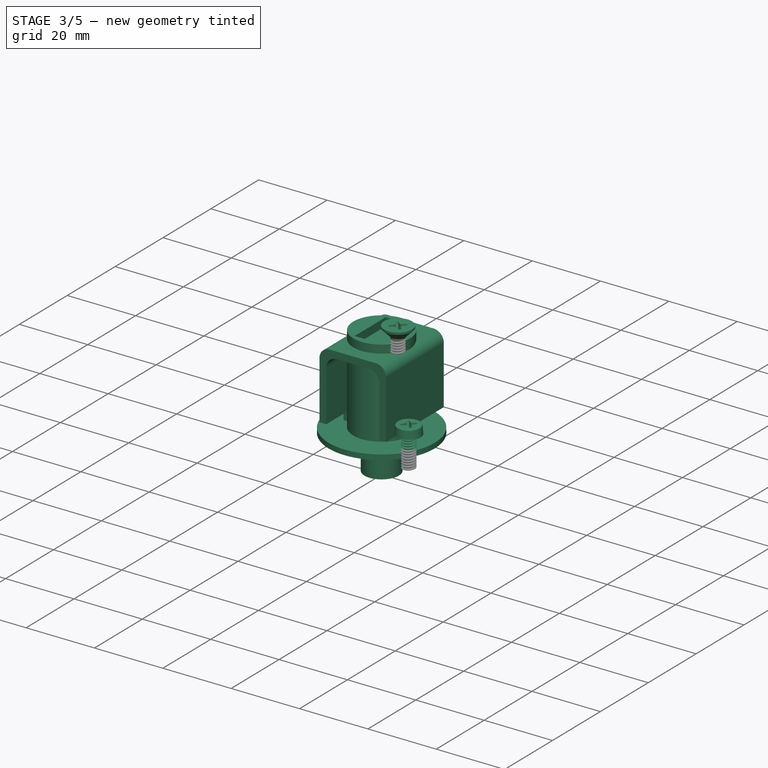
[diagram: stage 3 of 5 — iso view after this stage's code; geometry added in this stage tinted green]
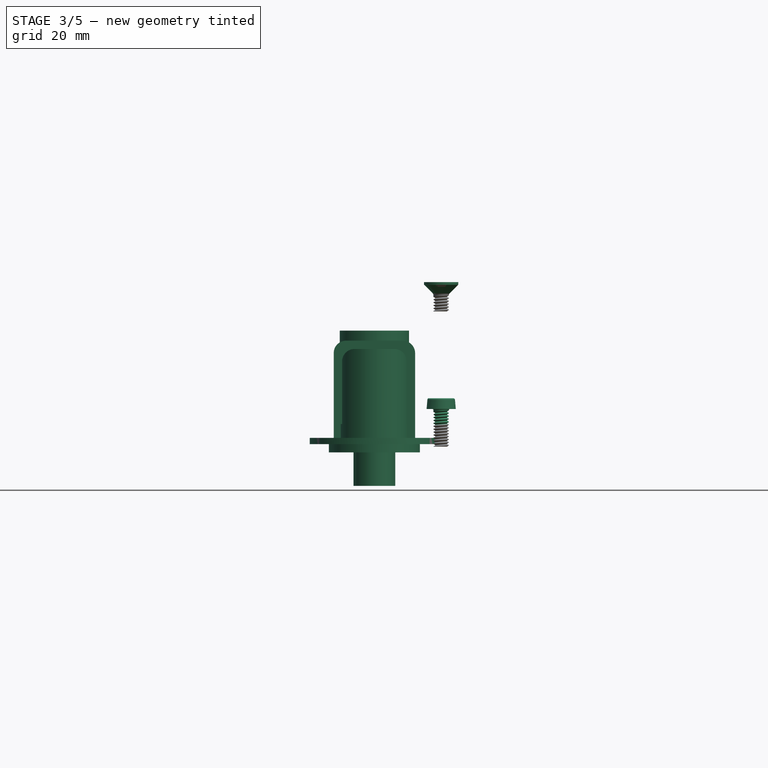
[diagram: stage 3 of 5 — front view after this stage's code; geometry added in this stage tinted green]
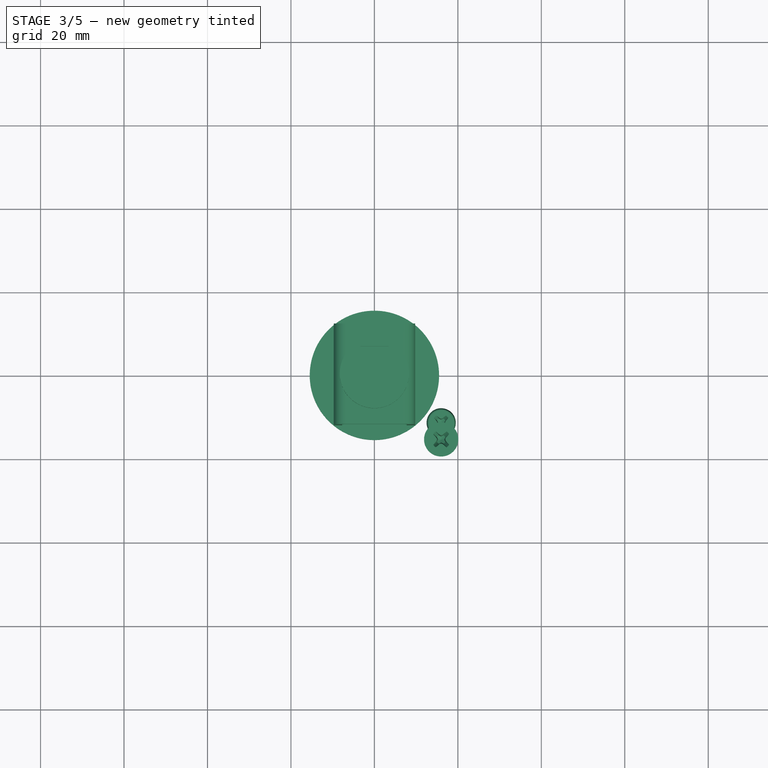
[diagram: stage 3 of 5 — top view after this stage's code; geometry added in this stage tinted green]
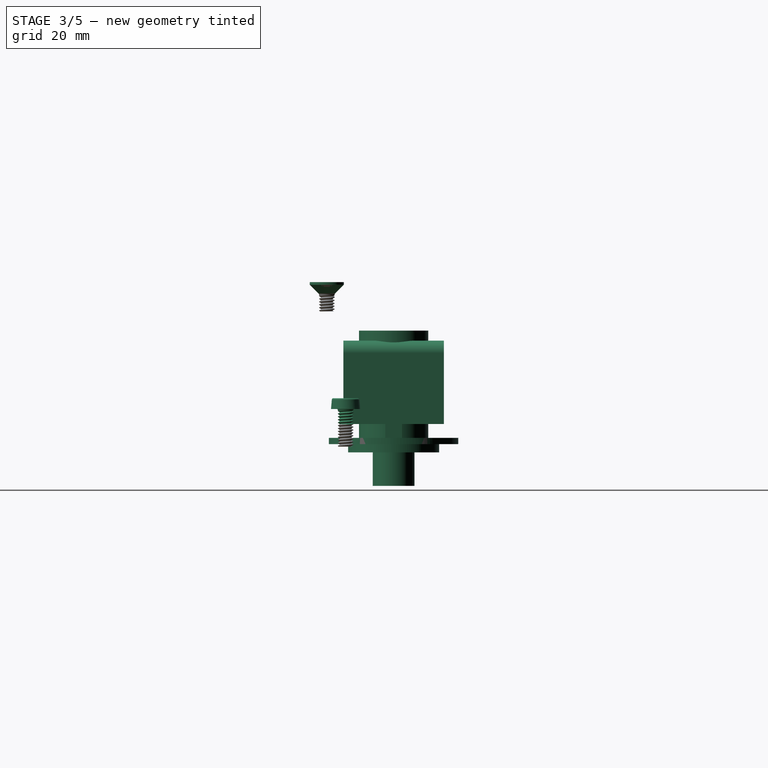
[diagram: stage 3 of 5 — right view after this stage's code; geometry added in this stage tinted green]
FEATURE [App::VarSet] VarSet
  bearing_diameter = 26
  bearing_height = 8
  bearing_inner_diameter = 10
  big_magnet_diameter = 12.6
  big_magnet_height = 6.3
  magnet_diameter = 6.4
  magnet_distance = 1.2
  magnet_height = 3.2
  mirror_width = 15
  target_angle = 20
FEATURE [App::Point] Origin005  label="Origin006"
  Role = Origin
FEATURE [Sketcher::SketchObject] Sketch002
  ArcFitTolerance = 1e-06
  AttachmentSupport = -> [Origin004]
  ExternalTypes = [0]
  FullyConstrained = true
  MakeInternals = false
  MapMode = 5
  expr: Constraints[1] = VarSet.bearing_inner_diameter
  expr: Constraints[3] = VarSet.bearing_diameter
  sketch-geometry (2):
    g0: Circle CenterX=0 CenterY=0 CenterZ=0 NormalX=0 NormalY=0 NormalZ=1 AngleXU=0 Radius=5
    g1: Circle CenterX=0 CenterY=0 CenterZ=0 NormalX=0 NormalY=0 NormalZ=1 AngleXU=0 Radius=13
  constraints (4):
    c: Coincident(g0,g-1)
    c: Diameter(g0) = 10
    c: Coincident(g1,g0)
    c: Diameter(g1) = 26
FEATURE [PartDesign::Pad] Pad001
  Direction = (0,0,1)
  Length = 8
  Length2 = 10
  Profile = -> Sketch002
  ReferenceAxis = -> Sketch002 [N_Axis]
  Refine = true
  SideType = 0
  Suppressed = false
  Type = 0
  Type2 = 0
  expr: Length = VarSet.bearing_height
FEATURE [PartDesign::Pad] Pad067
  Direction = (0,0,1)
  Length = 10
  Length2 = 10
  Offset = -2
  Profile = -> Sketch
  ReferenceAxis = -> Sketch [N_Axis]
  Refine = true
  SideType = 0
  Suppressed = false
  Type = 3
  Type2 = 0
  UpToFace = -> Binder025 [Face4]
FEATURE [Sketcher::SketchObject] Sketch108
  ArcFitTolerance = 1e-06
  AttachmentSupport = -> [Pad067]
  ExternalGeometry = -> [Pad067]
  ExternalTypes = [0]
  FullyConstrained = true
  MakeInternals = false
  MapMode = 5
  Placement = pos=(0,0,10) rot=(0,0,1;0rad)
  expr: Constraints[2] = VarSet.big_magnet_diameter
  sketch-geometry (3):
    g0: Circle CenterX=0 CenterY=0 CenterZ=0 NormalX=0 NormalY=0 NormalZ=1 AngleXU=0 Radius=8.3
    g1: LineSegment [constr] StartX=-6.3 StartY=0 StartZ=0 EndX=6.3 EndY=0 EndZ=0
    g2: GeomPoint X=0 Y=0 Z=0
  constraints (6):
    c: Coincident(g0,g-3)
    c: Horizontal(g1)
    c: Distance(g1,g1) = 12.6
    c: Symmetric(g1,g1,g2)
    c: Coincident(g0,g2)
    c: Distance(g1,g0) = 2
FEATURE [PartDesign::Pad] Pad068
  BaseFeature = -> Pad067
  Direction = (0,0,1)
  Length = 2
  Length2 = 10
  Profile = -> Sketch108
  ReferenceAxis = -> Sketch108 [N_Axis]
  Refine = true
  SideType = 0
  Suppressed = false
  Type = 0
  Type2 = 0
FEATURE [Sketcher::SketchObject] Sketch109
  ArcFitTolerance = 1e-06
  AttachmentSupport = -> [Pad068]
  ExternalGeometry = -> [Pad068]
  ExternalTypes = [0]
  FullyConstrained = true
  MakeInternals = false
  MapMode = 5
  Placement = pos=(0,0,12) rot=(0,0,1;0rad)
  sketch-geometry (1):
    g0: Circle CenterX=0 CenterY=0 CenterZ=0 NormalX=0 NormalY=0 NormalZ=1 AngleXU=0 Radius=8.3
  constraints (2):
    c: Coincident(g0,g-3)
    c: Tangent(g0,g-3)
FEATURE [PartDesign::Pad] Pad069
  BaseFeature = -> Pad068
  Direction = (0,0,1)
  Length = 25.2
  Length2 = 10
  Profile = -> Sketch109
  ReferenceAxis = -> Sketch109 [N_Axis]
  Refine = true
  SideType = 0
  Suppressed = false
  Type = 0
  Type2 = 0
  expr: Length = 2 * VarSet.big_magnet_diameter
FEATURE [Sketcher::SketchObject] Sketch112
  ArcFitTolerance = 1e-06
  AttachmentSupport = -> [Pad071]
  ExternalGeometry = -> [Pad071]
  ExternalTypes = [0,0]
  FullyConstrained = true
  MakeInternals = false
  MapMode = 5
  Placement = pos=(0,0,10) rot=(0,0,1;0rad)
  sketch-geometry (1):
    g0: Circle CenterX=0 CenterY=0 CenterZ=0 NormalX=0 NormalY=0 NormalZ=1 AngleXU=0 Radius=13.8
  constraints (2):
    c: Coincident(g0,g-3)
    c: Distance(g0,g-3) = 3.5
FEATURE [PartDesign::SubShapeBinder] Binder028
  BindCopyOnChange = 0
  BindMode = 0
  ClaimChildren = false
  Context = -> Body023 [Binder028.]
  Fuse = false
  MakeFace = true
  OffsetFill = false
  OffsetIntersection = false
  OffsetJoinType = 0
  OffsetOpenResult = false
  PartialLoad = false
  Refine = true
  Relative = true
  Support = -> [Pad068]
  _Version = 2
FEATURE [Sketcher::SketchObject] Sketch113
  ArcFitTolerance = 1e-06
  AttachmentSupport = -> [Pad069]
  ExternalTypes = [0]
  FullyConstrained = true
  MakeInternals = false
  MapMode = 5
  Placement = pos=(0,0,37.2) rot=(0,0,1;0rad)
  expr: Constraints[8] = VarSet.big_magnet_diameter + 0.4 mm
  expr: Constraints[9] = VarSet.big_magnet_height + 0.4 mm
  sketch-geometry (5):
    g0: LineSegment StartX=-3.35 StartY=-6.5 StartZ=0 EndX=3.35 EndY=-6.5 EndZ=0
    g1: LineSegment StartX=3.35 StartY=-6.5 StartZ=0 EndX=3.35 EndY=6.5 EndZ=0
    g2: LineSegment StartX=3.35 StartY=6.5 StartZ=0 EndX=-3.35 EndY=6.5 EndZ=0
    g3: LineSegment StartX=-3.35 StartY=6.5 StartZ=0 EndX=-3.35 EndY=-6.5 EndZ=0
    g4: GeomPoint [constr] X=0 Y=0 Z=0
  constraints (11):
    c: Coincident(g0,g1)
    c: Coincident(g1,g2)
    c: Coincident(g2,g3)
    c: Coincident(g3,g0)
    c: Horizontal(g0)
    c: Vertical(g1)
    c: Symmetric(g2,g0,g4)
    c: Coincident(g4,g-1)
    c: DistanceY(g1,g1) = 13
    c: Distance(g2,g2) = 6.7
    c: Symmetric(g2,g0,g4)
FEATURE [PartDesign::Pocket] Pocket025
  BaseFeature = -> Pad069
  Direction = (0,0,-1)
  Length = 5
  Length2 = 5
  Profile = -> Sketch113
  ReferenceAxis = -> Sketch113 [N_Axis]
  Refine = true
  SideType = 0
  Suppressed = false
  Type = 3
  Type2 = 0
  UpToFace = -> Binder028 [Face5]
FEATURE [PartDesign::Body] Body024  label="design4-stator"
  AllowCompound = false
  Group = -> [Binder027,Binder026,Sketch107,Pad066,Sketch111,Pad071,Sketch112,Pad072]
  Origin = -> Origin055
  Tip = -> Pad072
FEATURE [App::Point] Origin058  label="Origin074"
  Role = Origin
FEATURE [App::Point] Origin060  label="Origin077"
  Role = Origin
FEATURE [PartDesign::SubShapeBinder] Binder029
  BindCopyOnChange = 0
  BindMode = 0
  ClaimChildren = false
  Context = -> Body026 [Binder029.]
  Fuse = false
  MakeFace = true
  OffsetFill = false
  OffsetIntersection = false
  OffsetJoinType = 0
  OffsetOpenResult = false
  PartialLoad = false
  Refine = true
  Relative = true
  Support = -> [Body002]
  _Version = 2
FEATURE [Sketcher::SketchObject] Sketch114
  ArcFitTolerance = 1e-06
  AttachmentSupport = -> [Origin059]
  ExternalGeometry = -> [Binder029]
  ExternalTypes = [0]
  FullyConstrained = true
  MakeInternals = false
  MapMode = 5
FEATURE [PartDesign::Pad] Pad073
  Direction = (0,0,1)
  Length = 10
  Length2 = 10
  Profile = -> Sketch114
  ReferenceAxis = -> Sketch114 [N_Axis]
  Refine = true
  SideType = 0
  Suppressed = false
  Type = 3
  Type2 = 0
  UpToFace = -> Binder029 [Face4]
FEATURE [Sketcher::SketchObject] Sketch115
  ArcFitTolerance = 1e-06
  AttachmentSupport = -> [Pad073]
  ExternalGeometry = -> [Pad073]
  ExternalTypes = [0]
  FullyConstrained = true
  MakeInternals = false
  MapMode = 5
  Placement = pos=(0,0,8) rot=(0,0,1;0rad)
  expr: Constraints[17] = VarSet.magnet_height + 0.2 mm
  expr: Constraints[18] = VarSet.magnet_diameter + 4 mm
  sketch-geometry (13):
    g0: LineSegment [constr] StartX=3.9 StartY=5.2 StartZ=0 EndX=0.5 EndY=5.2 EndZ=0
    g1: LineSegment [constr] StartX=0.5 StartY=5.2 StartZ=0 EndX=0.5 EndY=-5.2 EndZ=0
    g2: LineSegment [constr] StartX=0.5 StartY=-5.2 StartZ=0 EndX=3.9 EndY=-5.2 EndZ=0
    g3: LineSegment [constr] StartX=3.9 StartY=-5.2 StartZ=0 EndX=3.9 EndY=5.2 EndZ=0
    g4: LineSegment [constr] StartX=0.5 StartY=0 StartZ=0 EndX=0 EndY=0 EndZ=0
    g5: LineSegment [constr] StartX=0.5 StartY=5.2 StartZ=0 EndX=3.9 EndY=-5.2 EndZ=0
    g6: GeomPoint [constr] X=2.2 Y=0 Z=0
    g7: LineSegment StartX=3.9 StartY=-5.2 StartZ=0 EndX=3.9 EndY=5.2 EndZ=0
    g8: LineSegment StartX=3.9 StartY=5.2 StartZ=0 EndX=-3.9 EndY=5.2 EndZ=0
    g9: LineSegment StartX=-3.9 StartY=5.2 StartZ=0 EndX=-3.9 EndY=-5.2 EndZ=0
    g10: LineSegment StartX=-3.9 StartY=-5.2 StartZ=0 EndX=3.9 EndY=-5.2 EndZ=0
    g11: LineSegment [constr] StartX=3.9 StartY=5.2 StartZ=0 EndX=0 EndY=5.2 EndZ=0
    g12: LineSegment [constr] StartX=0 StartY=5.2 StartZ=0 EndX=-3.9 EndY=5.2 EndZ=0
  constraints (34):
    c: Coincident(g0,g1)
    c: Coincident(g1,g2)
    c: Coincident(g2,g3)
    c: Coincident(g3,g0)
    c: Horizontal(g0)
    c: Horizontal(g2)
    c: Vertical(g1)
    c: Vertical(g3)
    c: PointOnObject(g4,g1)
    c: PointOnObject(g4,g-2)
    c: Distance(g4,g4) = 0.5
    c: Horizontal(g4)
    c: PointOnObject(g4,g-1)
    c: Coincident(g5,g0)
    c: Coincident(g5,g2)
    c: Symmetric(g5,g5,g6)
    c: PointOnObject(g6,g-1)
    c: Distance(g0,g0) = 3.4
    c: DistanceY(g3,g3) = 10.4
    c: Coincident(g7,g8)
    c: Coincident(g8,g9)
    c: Coincident(g9,g10)
    c: Coincident(g10,g7)
    c: Vertical(g9)
    c: Horizontal(g8)
    c: Horizontal(g10)
    c: Coincident(g7,g2)
    c: Coincident(g7,g0)
    c: Coincident(g11,g0)
    c: PointOnObject(g11,g-2)
    c: Coincident(g12,g11)
    c: Coincident(g12,g8)
    c: Equal(g12,g11)
    c: PointOnObject(g11,g8)
FEATURE [PartDesign::Pad] Pad074
  BaseFeature = -> Pad073
  Direction = (0,0,1)
  Length = 22.8
  Length2 = 10
  Profile = -> Sketch115
  ReferenceAxis = -> Sketch115 [N_Axis]
  Refine = true
  SideType = 0
  Suppressed = false
  Type = 0
  Type2 = 0
  expr: Length = 10 mm + 2 * VarSet.magnet_diameter
FEATURE [Sketcher::SketchObject] Sketch116
  ArcFitTolerance = 1e-06
  AttachmentSupport = -> [Pad074]
  ExternalGeometry = -> [Pad074,Binder029]
  ExternalTypes = [0,0,0,0]
  FullyConstrained = true
  MakeInternals = false
  MapMode = 5
  Placement = pos=(3.9,0,0) rot=(0.57735,0.57735,0.57735;2.0944rad)
  expr: Constraints[0] = VarSet.magnet_diameter + 0.2 mm
  expr: Constraints[1] = VarSet.magnet_diameter + 0.2 mm
  sketch-geometry (9):
    g0: Circle CenterX=0 CenterY=18.9 CenterZ=0 NormalX=0 NormalY=0 NormalZ=1 AngleXU=0 Radius=3.3
    g1: Circle CenterX=-4e-16 CenterY=27 CenterZ=0 NormalX=0 NormalY=0 NormalZ=1 AngleXU=0 Radius=3.3
    g2: GeomPoint X=-4e-16 Y=30.3 Z=0
    g3: LineSegment [constr] StartX=-4e-16 StartY=30.3 StartZ=0 EndX=-4e-16 EndY=30.8 EndZ=0
    g4: GeomPoint [constr] X=-4e-16 Y=30.8 Z=0
    g5: LineSegment [constr] StartX=-4e-16 StartY=27 StartZ=0 EndX=-4e-16 EndY=30.3 EndZ=0
    g6: GeomPoint [constr] X=0 Y=23.7 Z=0
    g7: LineSegment [constr] StartX=0 StartY=23.7 StartZ=0 EndX=0 EndY=22.2 EndZ=0
    g8: LineSegment [constr] StartX=0 StartY=22.2 StartZ=0 EndX=0 EndY=18.9 EndZ=0
  constraints (20):
    c: Diameter(g1) = 6.6
    c: Diameter(g0) = 6.6
    c: PointOnObject(g2,g1)
    c: Coincident(g3,g2)
    c: Vertical(g3)
    c: Distance(g3,g3) = 0.5
    c: Symmetric(g-3,g-3,g4)
    c: Coincident(g4,g3)
    c: Coincident(g5,g1)
    c: Coincident(g5,g2)
    c: Vertical(g5)
    c: PointOnObject(g6,g1)
    c: Coincident(g7,g6)
    c: PointOnObject(g7,g0)
    c: Vertical(g7)
    c: Coincident(g8,g7)
    c: Coincident(g8,g0)
    c: Vertical(g8)
    c: PointOnObject(g0,g-2)
    c: DistanceY(g7,g7) = 1.5
FEATURE [PartDesign::Pocket] Pocket026
  BaseFeature = -> Pad074
  Direction = (-1,0,0)
  Length = 3.2
  Length2 = 5
  Profile = -> Sketch116
  ReferenceAxis = -> Sketch116 [N_Axis]
  Refine = true
  SideType = 0
  Suppressed = false
  Type = 0
  Type2 = 0
  expr: Length = VarSet.magnet_height
FEATURE [PartDesign::SubShapeBinder] Binder030
  BindCopyOnChange = 0
  BindMode = 0
  ClaimChildren = false
  Context = -> Body025 [Binder030.]
  Fuse = false
  MakeFace = true
  OffsetFill = false
  OffsetIntersection = false
  OffsetJoinType = 0
  OffsetOpenResult = false
  PartialLoad = false
  Refine = true
  Relative = true
  Support = -> [Body026]
  _Version = 2
FEATURE [PartDesign::SubShapeBinder] Binder031
  BindCopyOnChange = 0
  BindMode = 0
  ClaimChildren = false
  Context = -> Body025 [Binder031.]
  Fuse = false
  MakeFace = true
  OffsetFill = false
  OffsetIntersection = false
  OffsetJoinType = 0
  OffsetOpenResult = false
  PartialLoad = false
  Refine = true
  Relative = true
  Support = -> [Body002]
  _Version = 2
FEATURE [Sketcher::SketchObject] Sketch118
  ArcFitTolerance = 1e-06
  AttachmentSupport = -> [Origin057]
  ExternalGeometry = -> [Binder031]
  ExternalTypes = [0]
  FullyConstrained = true
  MakeInternals = false
  MapMode = 5
  sketch-geometry (1):
    g0: Circle CenterX=0 CenterY=0 CenterZ=0 NormalX=0 NormalY=0 NormalZ=1 AngleXU=0 Radius=15.5
  constraints (2):
    c: Coincident(g0,g-3)
    c: Distance(g-3,g0) = 2.5
FEATURE [PartDesign::Pad] Pad075
  Direction = (0,0,1)
  Length = 10
  Length2 = 10
  Profile = -> Sketch118
  ReferenceAxis = -> Sketch118 [N_Axis]
  Refine = true
  SideType = 0
  Suppressed = false
  Type = 3
  Type2 = 0
  UpToFace = -> Binder031 [Face4]
FEATURE [Sketcher::SketchObject] Sketch119
  ArcFitTolerance = 1e-06
  AttachmentSupport = -> [Pad075]
  ExternalGeometry = -> [Pad075,Binder031]
  ExternalTypes = [0,0]
  FullyConstrained = true
  MakeInternals = false
  MapMode = 5
  Placement = pos=(0,0,8) rot=(0,0,1;0rad)
  sketch-geometry (1):
    g0: Circle CenterX=0 CenterY=0 CenterZ=0 NormalX=0 NormalY=0 NormalZ=1 AngleXU=0 Radius=11
  constraints (2):
    c: Coincident(g0,g-1)
    c: Distance(g-4,g0) = 6
FEATURE [PartDesign::Pad] Pad076
  BaseFeature = -> Pad075
  Direction = (0,0,1)
  Length = 2
  Length2 = 10
  Profile = -> Sketch119
  ReferenceAxis = -> Sketch119 [N_Axis]
  Refine = true
  SideType = 0
  Suppressed = false
  Type = 0
  Type2 = 0
FEATURE [PartDesign::Body] Body025  label="design5-stator"
  AllowCompound = false
  Group = -> [Binder030,Binder031,Sketch118,Pad075,Sketch119,Pad076]
  Origin = -> Origin057
  Tip = -> Pad076
FEATURE [App::Point] Origin062  label="Origin079"
  Role = Origin
FEATURE [PartDesign::SubShapeBinder] Binder032
  BindCopyOnChange = 0
  BindMode = 0
  ClaimChildren = false
  Context = -> Body027 [Binder032.]
  Fuse = false
  MakeFace = true
  OffsetFill = false
  OffsetIntersection = false
  OffsetJoinType = 0
  OffsetOpenResult = false
  PartialLoad = false
  Placement = pos=(0,0,0) rot=(0,0,1;1.5708rad)
  Refine = true
  Relative = true
  Support = -> [Body026]
  _Version = 2
FEATURE [PartDesign::SubShapeBinder] Binder033
  BindCopyOnChange = 0
  BindMode = 0
  ClaimChildren = false
  Context = -> Body027 [Binder033.]
  Fuse = false
  MakeFace = true
  OffsetFill = false
  OffsetIntersection = false
  OffsetJoinType = 0
  OffsetOpenResult = false
  PartialLoad = false
  Refine = true
  Relative = true
  Support = -> [Body025]
  _Version = 2
FEATURE [Sketcher::SketchObject] Sketch120
  ArcFitTolerance = 1e-06
  AttachmentSupport = -> [Binder033]
  ExternalGeometry = -> [Binder033,Binder032]
  ExternalTypes = [0,0]
  FullyConstrained = true
  MakeInternals = false
  MapMode = 5
  Placement = pos=(0,0,8) rot=(1,0,0;3.14159rad)
  sketch-geometry (5):
    g0: GeomPoint [constr] X=-8 Y=0 Z=0
    g1: GeomPoint X=-11 Y=0 Z=0
    g2: LineSegment [constr] StartX=-11 StartY=0 StartZ=0 EndX=-8 EndY=0 EndZ=0
    g3: Circle CenterX=0 CenterY=0 CenterZ=0 NormalX=0 NormalY=0 NormalZ=1 AngleXU=0 Radius=8
    g4: Circle CenterX=0 CenterY=0 CenterZ=0 NormalX=0 NormalY=0 NormalZ=1 AngleXU=0 Radius=10.9
  constraints (10):
    c: PointOnObject(g1,g-1)
    c: Coincident(g3,g-4)
    c: PointOnObject(g0,g3)
    c: Coincident(g0,g2)
    c: PointOnObject(g0,g-1)
    c: Coincident(g1,g2)
    c: PointOnObject(g1,g-3)
    c: Coincident(g4,g3)
    c: Distance(g4,g-3) = 0.1
    c: Distance(g-4,g3) = 3
FEATURE [PartDesign::Pad] Pad077
  Direction = (0,0,-1)
  Length = 10
  Length2 = 10
  Profile = -> Sketch120
  ReferenceAxis = -> Sketch120 [N_Axis]
  Refine = true
  Reversed = true
  SideType = 0
  Suppressed = false
  Type = 3
  Type2 = 0
  UpToFace = -> Binder033 [Face4]
FEATURE [PartDesign::Fillet] Fillet012
  Base = -> Pocket026 [Edge19,Edge20]
  BaseFeature = -> Pocket026
  Radius = 0.4
  Refine = true
  SupportTransform = false
  Suppressed = false
  UseAllEdges = false
FEATURE [PartDesign::Mirrored] Mirrored
  BaseFeature = -> Fillet012
  MirrorPlane = -> YZ_Plane027
  Originals = -> [Pocket026,Fillet012]
  Refine = true
  Suppressed = false
  TransformMode = 0
FEATURE [Sketcher::SketchObject] Sketch117
  ArcFitTolerance = 1e-06
  AttachmentSupport = -> [Mirrored]
  ExternalGeometry = -> [Mirrored]
  ExternalTypes = [0,0,0]
  FullyConstrained = true
  MakeInternals = false
  MapMode = 5
  Placement = pos=(0,0,8) rot=(1,0,0;3.14159rad)
  sketch-geometry (8):
    g0: GeomPoint [constr] X=-1e-16 Y=-1e-16 Z=0
    g1: LineSegment StartX=3.9 StartY=-5.2 StartZ=0 EndX=3.9 EndY=5.2 EndZ=0
    g2: LineSegment StartX=-3.9 StartY=5.2 StartZ=0 EndX=-3.9 EndY=-5.2 EndZ=0
    g3: GeomPoint [constr] X=-1e-16 Y=-1e-16 Z=0
    g4: GeomPoint [constr] X=-1e-16 Y=-1e-16 Z=0
    g5: LineSegment StartX=-3.9 StartY=-5.2 StartZ=0 EndX=3.9 EndY=-5.2 EndZ=0
    g6: LineSegment StartX=3.9 StartY=5.2 StartZ=0 EndX=-3.9 EndY=5.2 EndZ=0
    g7: Circle CenterX=-1e-16 CenterY=-1e-16 CenterZ=0 NormalX=0 NormalY=0 NormalZ=1 AngleXU=0 Radius=2
  constraints (13):
    c: Symmetric(g1,g2,g3)
    c: Coincident(g3,g0)
    c: Coincident(g4,g0)
    c: Coincident(g5,g2)
    c: Coincident(g5,g1)
    c: Coincident(g6,g1)
    c: Coincident(g6,g2)
    c: Diameter(g7) = 4
    c: Coincident(g7,g0)
    c: Coincident(g2,g-7)
    c: Coincident(g-7,g1)
    c: Coincident(g2,g-10)
    c: Coincident(g1,g-11)
FEATURE [PartDesign::Pocket] Pocket027
  BaseFeature = -> Mirrored
  Direction = (0,0,1)
  Length = 7.5
  Length2 = 5
  Offset = -16
  Profile = -> Sketch117
  ReferenceAxis = -> Sketch117 [N_Axis]
  Refine = true
  SideType = 0
  Suppressed = false
  Type = 3
  Type2 = 0
  UpToFace = -> Mirrored [Face5]
FEATURE [Sketcher::SketchObject] Sketch124
  ArcFitTolerance = 1e-06
  AttachmentSupport = -> [Pocket027]
  ExternalTypes = [0]
  FullyConstrained = true
  MakeInternals = false
  MapMode = 5
  Placement = pos=(0,0,30.8) rot=(0,0,1;0rad)
FEATURE [PartDesign::Chamfer] Chamfer002
  Angle = 45
  Base = -> Pocket027 [Edge10]
  BaseFeature = -> Pocket027
  ChamferType = 0
  FlipDirection = false
  Refine = true
  Size = 1.9
  Size2 = 1
  SupportTransform = false
  Suppressed = false
  UseAllEdges = false
FEATURE [Sketcher::SketchObject] Sketch125
  ArcFitTolerance = 1e-06
  AttachmentSupport = -> [Pad077]
  ExternalGeometry = -> [Binder033]
  ExternalTypes = [0,0,0]
  FullyConstrained = true
  MakeInternals = false
  MapMode = 5
  Placement = pos=(0,0,10) rot=(0,0,1;0rad)
  sketch-geometry (1):
    g0: Circle CenterX=0 CenterY=0 CenterZ=0 NormalX=0 NormalY=0 NormalZ=1 AngleXU=0 Radius=7.75
  constraints (2):
    c: Coincident(g0,g-3)
    c: Distance(g-5,g0) = 1.25
FEATURE [PartDesign::Pad] Pad080
  BaseFeature = -> Pad077
  Direction = (0,0,1)
  Length = 1.5
  Length2 = 10
  Profile = -> Sketch125
  ReferenceAxis = -> Sketch125 [N_Axis]
  Refine = true
  SideType = 0
  Suppressed = false
  Type = 0
  Type2 = 0
FEATURE [Sketcher::SketchObject] Sketch121
  ArcFitTolerance = 1e-06
  AttachmentSupport = -> [Pad080]
  ExternalGeometry = -> [Pad080]
  ExternalTypes = [0,0]
  FullyConstrained = false
  MakeInternals = false
  MapMode = 5
  Placement = pos=(0,0,11.5) rot=(0,0,1;0rad)
  sketch-geometry (7):
    g0: LineSegment StartX=-7.75 StartY=12.0494 StartZ=0 EndX=-9.75 EndY=12.0494 EndZ=0
    g1: LineSegment StartX=-9.75 StartY=12.0494 StartZ=0 EndX=-9.75 EndY=-12.0494 EndZ=0
    g2: LineSegment StartX=-9.75 StartY=-12.0494 StartZ=0 EndX=-7.75 EndY=-12.0494 EndZ=0
    g3: LineSegment StartX=-7.75 StartY=-12.0494 StartZ=0 EndX=-7.75 EndY=12.0494 EndZ=0
    g4: LineSegment [constr] StartX=-5.2 StartY=7.75 StartZ=0 EndX=-5.2 EndY=3.9 EndZ=0
    g5: GeomPoint [constr] X=-9.75 Y=0 Z=0
    g6: GeomPoint [constr] X=-7.75 Y=-3e-16 Z=0
  constraints (16):
    c: Coincident(g0,g1)
    c: Coincident(g1,g2)
    c: Coincident(g2,g3)
    c: Coincident(g3,g0)
    c: Horizontal(g0)
    c: Horizontal(g2)
    c: Vertical(g1)
    c: Vertical(g3)
    c: Vertical(g4)
    c: Symmetric(g1,g1,g5)
    c: Coincident(g4,g-4)
    c: Symmetric(g3,g3,g6)
    c: PointOnObject(g5,g-1)
    c: Distance(g0,g0) = 2
    c: PointOnObject(g6,g-5)
    c: PointOnObject(g0,g-6)
FEATURE [PartDesign::Pad] Pad078
  BaseFeature = -> Pad080
  Direction = (0,0,1)
  Length = 10
  Length2 = 10
  Offset = -4
  Profile = -> Sketch121
  ReferenceAxis = -> Sketch121 [N_Axis]
  Refine = true
  SideType = 0
  Suppressed = false
  Type = 3
  Type2 = 0
  UpToFace = -> Binder032 [Face11]
FEATURE [Sketcher::SketchObject] Sketch122
  ArcFitTolerance = 1e-06
  AttachmentSupport = -> [Pad078]
  ExternalGeometry = -> [Pad078]
  ExternalTypes = [0,0,0]
  FullyConstrained = true
  MakeInternals = false
  MapMode = 5
  Placement = pos=(-7.75,0,0) rot=(0.57735,0.57735,0.57735;2.0944rad)
  sketch-geometry (4):
    g0: LineSegment StartX=-12.0494 StartY=34.8 StartZ=0 EndX=-12.0494 EndY=32.8 EndZ=0
    g1: LineSegment StartX=-12.0494 StartY=32.8 StartZ=0 EndX=12.0494 EndY=32.8 EndZ=0
    g2: LineSegment StartX=12.0494 StartY=32.8 StartZ=0 EndX=12.0494 EndY=34.8 EndZ=0
    g3: LineSegment StartX=12.0494 StartY=34.8 StartZ=0 EndX=-12.0494 EndY=34.8 EndZ=0
  constraints (10):
    c: Coincident(g0,g1)
    c: Coincident(g1,g2)
    c: Coincident(g2,g3)
    c: Coincident(g3,g0)
    c: Vertical(g0)
    c: Vertical(g2)
    c: Horizontal(g1)
    c: DistanceY(g2,g2) = 2
    c: Coincident(g2,g-5)
    c: Coincident(g0,g-4)
FEATURE [PartDesign::Pad] Pad079
  BaseFeature = -> Pad078
  Direction = (1,0,0)
  Length = 10
  Length2 = 10
  Profile = -> Sketch122
  ReferenceAxis = -> Sketch122 [N_Axis]
  Refine = true
  SideType = 0
  Suppressed = false
  Type = 3
  Type2 = 0
  UpToFace = -> Binder032 [Face8]
FEATURE [PartDesign::Mirrored] Mirrored003
  BaseFeature = -> Pad079
  MirrorPlane = -> YZ_Plane028
  Originals = -> [Pad079,Pad077,Pad078]
  Refine = true
  Suppressed = false
  TransformMode = 0
FEATURE [PartDesign::Fillet] Fillet011
  Base = -> Mirrored003 [Edge35,Edge38,Edge41,Edge32]
  BaseFeature = -> Mirrored003
  Radius = 3
  Refine = true
  SupportTransform = false
  Suppressed = false
  UseAllEdges = false
FEATURE [Sketcher::SketchObject] Sketch123
  ArcFitTolerance = 1e-06
  AttachmentSupport = -> [Fillet011]
  ExternalGeometry = -> [Fillet011,Binder032]
  ExternalTypes = [0,0,0,0,0,0]
  FullyConstrained = true
  MakeInternals = false
  MapMode = 5
  Placement = pos=(9.75,-2.1e-15,2.1e-15) rot=(0.57735,0.57735,0.57735;2.0944rad)
  sketch-geometry (10):
    g0: LineSegment StartX=12.0494 StartY=11.5 StartZ=0 EndX=12.0494 EndY=14.8 EndZ=0
    g1: LineSegment StartX=12.0494 StartY=14.8 StartZ=0 EndX=2 EndY=14.8 EndZ=0
    g2: LineSegment StartX=2 StartY=14.8 StartZ=0 EndX=2 EndY=11.5 EndZ=0
    g3: LineSegment StartX=2 StartY=11.5 StartZ=0 EndX=12.0494 EndY=11.5 EndZ=0
    g4: LineSegment StartX=-12.0494 StartY=11.5 StartZ=0 EndX=-2 EndY=11.5 EndZ=0
    g5: LineSegment StartX=-2 StartY=11.5 StartZ=0 EndX=-2 EndY=14.8 EndZ=0
    g6: LineSegment StartX=-2 StartY=14.8 StartZ=0 EndX=-12.0494 EndY=14.8 EndZ=0
    g7: LineSegment StartX=-12.0494 StartY=14.8 StartZ=0 EndX=-12.0494 EndY=11.5 EndZ=0
    g8: LineSegment [constr] StartX=-2 StartY=14.8 StartZ=0 EndX=2 EndY=14.8 EndZ=0
    g9: GeomPoint [constr] X=1e-16 Y=14.8 Z=0
  constraints (25):
    c: Coincident(g0,g1)
    c: Coincident(g1,g2)
    c: Coincident(g2,g3)
    c: Coincident(g3,g0)
    c: Vertical(g0)
    c: Vertical(g2)
    c: Horizontal(g1)
    c: Horizontal(g3)
    c: Coincident(g0,g-5)
    c: Coincident(g4,g5)
    c: Coincident(g5,g6)
    c: Coincident(g6,g7)
    c: Coincident(g7,g4)
    c: Horizontal(g4)
    c: Horizontal(g6)
    c: Vertical(g5)
    c: Vertical(g7)
    c: Coincident(g4,g-5)
    c: PointOnObject(g-4,g6)
    c: PointOnObject(g-3,g1)
    c: Coincident(g8,g5)
    c: Coincident(g8,g1)
    c: Symmetric(g1,g5,g9)
    c: Equal(g6,g1)
    c: PointOnObject(g-6,g2)
FEATURE [PartDesign::Pocket] Pocket028
  BaseFeature = -> Fillet011
  Direction = (-1,0,0)
  Length = 5
  Length2 = 5
  Profile = -> Sketch123
  ReferenceAxis = -> Sketch123 [N_Axis]
  Refine = true
  SideType = 0
  Suppressed = false
  Type = 1
  Type2 = 0
FEATURE [PartDesign::Body] Body027  label="design5-coil-holder"
  AllowCompound = false
  Group = -> [Binder032,Binder033,Sketch120,Pad077,Sketch121,Sketch125,Pad080,Pad078,Sketch122,Pad079,Mirrored003,Fillet011,Sketch123,Pocket028]
  Origin = -> Origin061
  Tip = -> Pocket028
FEATURE [PartDesign::Fillet] Fillet013
  Base = -> Chamfer002 [Edge12,Edge14,Edge22,Edge28]
  BaseFeature = -> Chamfer002
  Radius = 1
  Refine = true
  SupportTransform = false
  Suppressed = false
  UseAllEdges = false
FEATURE [Part::FeaturePython] Screw001  label="M4x9-Screw"  # WARN: FeaturePython — macro-defined, semantics opaque (R4)
  BaseObject = -> Body034 [Binder041.Edge180]
  Diameter = 4
  Invert = false
  LeftHanded = false
  Length = 11
  LengthCustom = 9
  MatchOuter = false
  OffsetAngle = 0
  Placement = pos=(16,-11.5,18.4) rot=(0,0,1;0rad)
  Thread = true
  Type = 80
FEATURE [App::Point] Origin082  label="Origin107"
  Role = Origin
FEATURE [PartDesign::SubShapeBinder] Binder042
  BindCopyOnChange = 0
  BindMode = 0
  ClaimChildren = false
  Context = -> Body037 [Binder042.]
  Fuse = false
  MakeFace = true
  OffsetFill = false
  OffsetIntersection = false
  OffsetJoinType = 0
  OffsetOpenResult = false
  PartialLoad = false
  Refine = true
  Relative = true
  Support = -> [Body034]
  _Version = 2
FEATURE [Sketcher::SketchObject] Sketch180
  ArcFitTolerance = 1e-06
  AttachmentSupport = -> [Binder042]
  ExternalGeometry = -> [Binder042]
  ExternalTypes = [0]
  FullyConstrained = false
  MakeInternals = false
  MapMode = 5
  Placement = pos=(0,-4.56091e-10,45.8) rot=(0,0,1;0rad)
  sketch-geometry (5):
    g0: LineSegment StartX=-19.5 StartY=-19.5 StartZ=0 EndX=19.5 EndY=-19.5 EndZ=0
    g1: LineSegment StartX=19.5 StartY=-19.5 StartZ=0 EndX=19.5 EndY=20.4559 EndZ=0
    g2: ArcOfCircle CenterX=2.78355e-11 CenterY=-1.1e-15 CenterZ=0 NormalX=-1.785e-13 NormalY=0 NormalZ=1 AngleXU=0 Radius=28.2612 StartAngle=0.809318 EndAngle=2.33228
    g3: LineSegment StartX=-19.5 StartY=-19.5 StartZ=0 EndX=-19.5 EndY=20.4559 EndZ=0
    g4: LineSegment [constr] StartX=0 StartY=28.2612 StartZ=0 EndX=0 EndY=28.7612 EndZ=0
FEATURE [PartDesign::Pad] Pad120
  Direction = (0,-9.9583e-12,1)
  Length = 10
  Length2 = 10
  Profile = -> Sketch180
  ReferenceAxis = -> Sketch180 [N_Axis]
  Refine = true
  SideType = 0
  Suppressed = false
  Type = 3
  Type2 = 0
  UpToFace = -> Binder042 [Face23]
FEATURE [Sketcher::SketchObject] Sketch181
  ArcFitTolerance = 1e-06
  AttachmentSupport = -> [Pad120]
  ExternalGeometry = -> [Binder042]
  ExternalTypes = [0,0,0,0]
  FullyConstrained = true
  MakeInternals = false
  MapMode = 5
  Placement = pos=(-1.56588e-08,2.32709e-10,47.8) rot=(0,0,1;0rad)
FEATURE [PartDesign::Pad] Pad121
  BaseFeature = -> Pad120
  Direction = (-3.27589e-10,4.8684e-12,1)
  Length = 1
  Length2 = 10
  Profile = -> Sketch181
  ReferenceAxis = -> Sketch181 [N_Axis]
  Refine = true
  SideType = 0
  Suppressed = false
  Type = 0
  Type2 = 0
FEATURE [Sketcher::SketchObject] Sketch183
  ArcFitTolerance = 1e-06
  AttachmentSupport = -> [Pad121]
  ExternalTypes = [0]
  FullyConstrained = true
  MakeInternals = false
  MapMode = 5
  Placement = pos=(-1.38313e-08,-1.11061e-11,48.8) rot=(0,0,1;0rad)
  sketch-geometry (1):
    g0: Circle CenterX=0 CenterY=0 CenterZ=0 NormalX=0 NormalY=0 NormalZ=1 AngleXU=0 Radius=4
  constraints (2):
    c: Diameter(g0) = 8
    c: Coincident(g0,g-1)
FEATURE [PartDesign::Pocket] Pocket035
  BaseFeature = -> Pad121
  Direction = (2.83428e-10,2.276e-13,-1)
  Length = 5
  Length2 = 5
  Profile = -> Sketch183
  ReferenceAxis = -> Sketch183 [N_Axis]
  Refine = true
  SideType = 0
  Suppressed = false
  Type = 1
  Type2 = 0
FEATURE [Sketcher::SketchObject] Sketch184
  ArcFitTolerance = 1e-06
  AttachmentSupport = -> [Pocket035]
  ExternalGeometry = -> [Binder042]
  ExternalTypes = [0,0]
  FullyConstrained = true
  MakeInternals = false
  MapMode = 5
  Placement = pos=(-1.38313e-08,-1.11061e-11,48.8) rot=(0,0,1;0rad)
  sketch-geometry (2):
    g0: GeomPoint X=16 Y=-16 Z=0
    g1: GeomPoint X=-16 Y=-16 Z=0
  constraints (2):
    c: Coincident(g0,g-4)
    c: Coincident(g1,g-3)
FEATURE [PartDesign::Hole] Hole005
  BaseFeature = -> Pocket035
  BaseProfileType = 7
  CustomThreadClearance = 0
  Depth = 25
  DepthType = 0
  Diameter = 4.5
  DrillForDepth = false
  DrillPoint = 1
  DrillPointAngle = 118
  HoleCutCountersinkAngle = 90
  HoleCutCustomValues = false
  HoleCutDepth = 4.5
  HoleCutDiameter = 9
  HoleCutType = 2
  ModelThread = false
  Profile = -> Sketch184 [Vertex1,Vertex2]
  Refine = true
  Suppressed = false
  Tapered = false
  TaperedAngle = 90
  ThreadClass = 0
  ThreadDepth = 25
  ThreadDepthType = 0
  ThreadDiameter = 4
  ThreadDirection = 0
  ThreadFit = 0
  ThreadSize = 11
  ThreadType = 1
  Threaded = false
  UseCustomThreadClearance = false
FEATURE [PartDesign::Body] Body037  label="design6-container-lid"
  AllowCompound = false
  Group = -> [Binder042,Sketch180,Pad120,Sketch181,Pad121,Sketch183,Pocket035,Sketch184,Hole005]
  Origin = -> Origin081
  Tip = -> Hole005
FEATURE [Part::FeaturePython] Screw  label="M4x7-Screw"  # WARN: FeaturePython — macro-defined, semantics opaque (R4)
  BaseObject = -> Body037 [Hole005.Edge40]
  Diameter = 6
  Invert = false
  LeftHanded = false
  Length = 12
  LengthCustom = 7
  MatchOuter = false
  OffsetAngle = 0
  Placement = pos=(16,-16,48.8) rot=(0,0,1;0rad)
  Thread = true
  Type = 78
FEATURE [Sketcher::SketchObject] Sketch187
  ArcFitTolerance = 1e-06
  AttachmentSupport = -> [Pocket036]
  ExternalGeometry = -> [Pocket036]
  ExternalTypes = [0]
  FullyConstrained = true
  MakeInternals = false
  MapMode = 5
  Placement = pos=(-11.8806,20.5778,1.89887e-10) rot=(-0.186157,0.694747,0.694747;3.50969rad)
  sketch-geometry (3):
    g0: LineSegment [constr] StartX=-3.65 StartY=-14.5 StartZ=0 EndX=3.65 EndY=-22 EndZ=0
    g1: GeomPoint [constr] X=-2.67905e-11 Y=-18.25 Z=0
    g2: Circle CenterX=-2.67905e-11 CenterY=-18.25 CenterZ=0 NormalX=0 NormalY=0 NormalZ=1 AngleXU=0 Radius=2.8
  constraints (5):
    c: Coincident(g0,g-6)
    c: Coincident(g0,g-5)
    c: Symmetric(g0,g0,g1)
    c: Diameter(g2) = 5.6
    c: Coincident(g2,g1)
FEATURE [PartDesign::Pocket] Pocket037
  BaseFeature = -> Pocket036
  Direction = (0.5,-0.866025,-7.9914e-12)
  Length = 1.5
  Length2 = 5
  Profile = -> Sketch187
  ReferenceAxis = -> Sketch187 [N_Axis]
  Refine = true
  SideType = 0
  Suppressed = false
  Type = 0
  Type2 = 0
FEATURE [Sketcher::SketchObject] Sketch188
  ArcFitTolerance = 1e-06
  AttachmentSupport = -> [Pocket037]
  ExternalGeometry = -> [Pocket037]
  ExternalTypes = [0]
  FullyConstrained = true
  MakeInternals = false
  MapMode = 5
  Placement = pos=(8.63059,14.9486,1.59782e-10) rot=(0.935113,-0.250563,-0.250563;1.63783rad)
  sketch-geometry (3):
    g0: LineSegment [constr] StartX=-3.65 StartY=-14.5 StartZ=0 EndX=3.65 EndY=-22 EndZ=0
    g1: GeomPoint [constr] X=2.66088e-11 Y=-18.25 Z=0
    g2: Circle CenterX=2.66088e-11 CenterY=-18.25 CenterZ=0 NormalX=0 NormalY=0 NormalZ=1 AngleXU=0 Radius=2.4
  constraints (5):
    c: Coincident(g0,g-6)
    c: Coincident(g0,g-5)
    c: Symmetric(g0,g0,g1)
    c: Diameter(g2) = 4.8
    c: Coincident(g2,g1)
FEATURE [PartDesign::Pocket] Pocket038
  BaseFeature = -> Pocket037
  Direction = (0.5,0.866025,9.2567e-12)
  Length = 5
  Length2 = 5
  Profile = -> Sketch188
  ReferenceAxis = -> Sketch188 [N_Axis]
  Refine = true
  SideType = 0
  Suppressed = false
  Type = 0
  Type2 = 0
FEATURE [Sketcher::SketchObject] Sketch189
  ArcFitTolerance = 1e-06
  AttachmentSupport = -> [Pocket038]
  ExternalGeometry = -> [Pocket038]
  ExternalTypes = [0]
  FullyConstrained = true
  MakeInternals = false
  MapMode = 5
  Placement = pos=(11.8806,20.5778,2.19951e-10) rot=(0.186157,0.694747,0.694747;2.77349rad)
  sketch-geometry (3):
    g0: LineSegment [constr] StartX=3.65 StartY=-22 StartZ=0 EndX=-3.65 EndY=-14.5 EndZ=0
    g1: GeomPoint [constr] X=-2.66087e-11 Y=-18.25 Z=0
    g2: Circle CenterX=-2.66087e-11 CenterY=-18.25 CenterZ=0 NormalX=0 NormalY=0 NormalZ=1 AngleXU=0 Radius=2.8
  constraints (5):
    c: Coincident(g0,g-5)
    c: Coincident(g0,g-6)
    c: Symmetric(g0,g0,g1)
    c: Diameter(g2) = 5.6
    c: Coincident(g2,g1)
FEATURE [PartDesign::Pocket] Pocket039
  BaseFeature = -> Pocket038
  Direction = (-0.5,-0.866025,-9.2567e-12)
  Length = 1.5
  Length2 = 5
  Profile = -> Sketch189
  ReferenceAxis = -> Sketch189 [N_Axis]
  Refine = true
  SideType = 0
  Suppressed = false
  Type = 0
  Type2 = 0
FEATURE [PartDesign::Fillet] Fillet024
  Base = -> Pocket039 [Edge152,Edge148,Edge142,Edge138]
  BaseFeature = -> Pocket039
  Radius = 2
  Refine = true
  SupportTransform = false
  Suppressed = false
  UseAllEdges = false
FEATURE [PartDesign::Body] Body034  label="design6-container"
  AllowCompound = false
  Group = -> [Binder041,Sketch161,Pad109,Sketch162,Pad110,Sketch176,Pad118,Chamfer009,Sketch177,Hole,MultiTransform006,Mirror014,Mirror015,Sketch178,Pad119,Chamfer010,Sketch179,Hole004,Mirrored007,Sketch185,Pad122,Sketch186,Pocket036,Sketch187,Pocket037,Sketch188,Pocket038,Sketch189,Pocket039,Fillet024]
  Origin = -> Origin075
  Tip = -> Fillet024
FEATURE [Part::FeaturePython] Assembly  label="design6-mechanism"  # WARN: FeaturePython — macro-defined, semantics opaque (R4)
  AutoRelax = true
  BuildShape = 0
  Freeze = false
  Group = -> [Constraints,Elements,Parts]
  Verbose = false
  _SolverType = 1
  _Version = 1
FEATURE [App::FeaturePython] Constraints  # WARN: FeaturePython — macro-defined, semantics opaque (R4)
  Group = -> [Constraint,Constraint001,Constraint002,Constraint003,Constraint004,Constraint005,Constraint006,Constraint007,Constraint008,Constraint009,Constraint010,Constraint011,Constraint012]
  _Version = 1
FEATURE [App::FeaturePython] Elements  # WARN: FeaturePython — macro-defined, semantics opaque (R4)
  Group = -> [_Element,_Element001,_Element002,_Element003,_Element004,_Element005,_Element006,_Element007,_Element008,_Element009,_Element010,_Element011,_Element012,_Element013,_Element014,_Element015,_Element016,_Element017,_Element018,_Element019,_Element020,_Element021,_Element022,_Element023,_Element024,_Element025,_Element026,_Element027,_Element028,_Element029,_Element030,_Element031,_Element032,+4 more]
FEATURE [App::FeaturePython] Constraint  label="Locked"  # WARN: FeaturePython — macro-defined, semantics opaque (R4)
  Disabled = false
  Group = -> [ElementLink]
  _ConstraintType = 0
  _Parent = -> Constraints
FEATURE [App::FeaturePython] ElementLink  label="_Element"  # link proxy (typed FeaturePython)
  LinkTransform = true
  LinkedObject = -> _Element
  _Parent = -> Constraint
FEATURE [Part::FeaturePython] _Element  # link proxy (typed FeaturePython)
  Detach = false
  LinkTransform = true
  LinkedObject = -> Link001 [Fillet021.Face4]
  _Parent = -> Elements
FEATURE [App::FeaturePython] Constraint001  label="AxialAlignment"  # WARN: FeaturePython — macro-defined, semantics opaque (R4)
  Angle = 0
  AnglePitch = 0
  AngleRoll = 0
  Disabled = false
  Group = -> [ElementLink001,ElementLink002]
  LockAngle = false
  Multiply = false
  _ConstraintType = 36
  _Parent = -> Constraints
FEATURE [App::FeaturePython] ElementLink001  label="_Element001"  # link proxy (typed FeaturePython)
  LinkTransform = true
  LinkedObject = -> _Element001
  _Parent = -> Constraint001
FEATURE [Part::FeaturePython] _Element001  # link proxy (typed FeaturePython)
  Detach = false
  LinkTransform = true
  LinkedObject = -> Link005 [Chamfer003.Face6]
  _Parent = -> Elements
FEATURE [App::FeaturePython] ElementLink002  label="_Element002"  # link proxy (typed FeaturePython)
  LinkTransform = true
  LinkedObject = -> _Element002
  _Parent = -> Constraint001
FEATURE [Part::FeaturePython] _Element002  # link proxy (typed FeaturePython)
  Detach = false
  LinkTransform = true
  LinkedObject = -> Link001 [Fillet021.Face18]
  _Parent = -> Elements
FEATURE [App::FeaturePython] Constraint002  label="SameOrientation"  # WARN: FeaturePython — macro-defined, semantics opaque (R4)
  Disabled = false
  Group = -> [ElementLink003,ElementLink004]
  _ConstraintType = 2
  _Parent = -> Constraints
FEATURE [App::FeaturePython] ElementLink003  label="_Element003"  # link proxy (typed FeaturePython)
  LinkTransform = true
  LinkedObject = -> _Element003
  _Parent = -> Constraint002
FEATURE [Part::FeaturePython] _Element003  # link proxy (typed FeaturePython)
  Detach = false
  LinkTransform = true
  LinkedObject = -> Link005 [Chamfer003.Face4]
  _Parent = -> Elements
FEATURE [App::FeaturePython] ElementLink004  label="_Element004"  # link proxy (typed FeaturePython)
  LinkTransform = true
  LinkedObject = -> _Element004
  _Parent = -> Constraint002
FEATURE [Part::FeaturePython] _Element004  # link proxy (typed FeaturePython)
  Detach = false
  LinkTransform = true
  LinkedObject = -> Link001 [Fillet021.Face26]
  _Parent = -> Elements
FEATURE [App::FeaturePython] Constraint003  label="Attachment"  # WARN: FeaturePython — macro-defined, semantics opaque (R4)
  Cascade = false
  Disabled = false
  Group = -> [ElementLink005,ElementLink006]
  Multiply = false
  _ConstraintType = 45
  _Parent = -> Constraints
FEATURE [App::FeaturePython] ElementLink005  label="_Element005"  # link proxy (typed FeaturePython)
  LinkTransform = true
  LinkedObject = -> _Element005
  _Parent = -> Constraint003
FEATURE [Part::FeaturePython] _Element005  # link proxy (typed FeaturePython)
  Detach = false
  LinkTransform = true
  LinkedObject = -> Link005 [Chamfer003.Edge7]
  _Parent = -> Elements
FEATURE [App::FeaturePython] ElementLink006  label="_Element006"  # link proxy (typed FeaturePython)
  LinkTransform = true
  LinkedObject = -> _Element006
  _Parent = -> Constraint003
FEATURE [Part::FeaturePython] _Element006  # link proxy (typed FeaturePython)
  Detach = false
  LinkTransform = true
  LinkedObject = -> Link001 [Fillet021.Edge73]
  _Parent = -> Elements
FEATURE [App::FeaturePython] Constraint004  label="AxialAlignment001"  # WARN: FeaturePython — macro-defined, semantics opaque (R4)
  Angle = 0
  AnglePitch = 0
  AngleRoll = 0
  Disabled = false
  Group = -> [ElementLink007,ElementLink008]
  LockAngle = false
  Multiply = false
  _ConstraintType = 36
  _Parent = -> Constraints
FEATURE [App::FeaturePython] ElementLink007  label="_Element007"  # link proxy (typed FeaturePython)
  LinkTransform = true
  LinkedObject = -> _Element007
  _Parent = -> Constraint004
FEATURE [Part::FeaturePython] _Element007  # link proxy (typed FeaturePython)
  Detach = false
  LinkTransform = true
  LinkedObject = -> Link005 [Chamfer003.Face5]
  _Parent = -> Elements
FEATURE [App::FeaturePython] ElementLink008  label="_Element008"  # link proxy (typed FeaturePython)
  LinkTransform = true
  LinkedObject = -> _Element008
  _Parent = -> Constraint004
FEATURE [Part::FeaturePython] _Element008  # link proxy (typed FeaturePython)
  Detach = false
  LinkTransform = true
  LinkedObject = -> Link006 [Pocket029.Face4]
  _Parent = -> Elements
FEATURE [App::FeaturePython] Constraint005  label="PlaneCoincident"  # WARN: FeaturePython — macro-defined, semantics opaque (R4)
  Angle = 0
  AnglePitch = 0
  AngleRoll = 0
  Cascade = false
  Disabled = false
  Group = -> [ElementLink009,ElementLink010]
  LockAngle = false
  Multiply = false
  OffsetX = 0
  OffsetY = 0
  _ConstraintType = 35
  _Parent = -> Constraints
FEATURE [App::FeaturePython] ElementLink009  label="_Element009"  # link proxy (typed FeaturePython)
  LinkTransform = true
  LinkedObject = -> _Element009
  _Parent = -> Constraint005
FEATURE [Part::FeaturePython] _Element009  # link proxy (typed FeaturePython)
  Detach = false
  LinkTransform = true
  LinkedObject = -> Link006 [Pocket029.Face2]
  _Parent = -> Elements
FEATURE [App::FeaturePython] ElementLink010  label="_Element010"  # link proxy (typed FeaturePython)
  LinkTransform = true
  LinkedObject = -> _Element010
  _Parent = -> Constraint005
FEATURE [Part::FeaturePython] _Element010  # link proxy (typed FeaturePython)
  Detach = false
  LinkTransform = true
  LinkedObject = -> Link005 [Chamfer003.Face3]
  _Parent = -> Elements
FEATURE [Part::FeaturePython] _Element011  # link proxy (typed FeaturePython)
  Detach = false
  LinkTransform = true
  LinkedObject = -> Link [Mirrored006.Face27]
  _Parent = -> Elements
FEATURE [Part::FeaturePython] _Element012  # link proxy (typed FeaturePython)
  Detach = false
  LinkTransform = true
  LinkedObject = -> Link006 [Pocket029.Face1]
  _Parent = -> Elements
FEATURE [Part::FeaturePython] _Element013  # link proxy (typed FeaturePython)
  Detach = false
  LinkTransform = true
  LinkedObject = -> Link [Mirrored006.Edge32]
  _Parent = -> Elements
FEATURE [Part::FeaturePython] _Element014  # link proxy (typed FeaturePython)
  Detach = false
  LinkTransform = true
  LinkedObject = -> Link006 [Pocket029.Edge3]
  _Parent = -> Elements
FEATURE [Part::FeaturePython] _Element015  # link proxy (typed FeaturePython)
  Detach = false
  LinkTransform = true
  LinkedObject = -> Link006 [Pocket029.Face3]
  _Parent = -> Elements
FEATURE [App::FeaturePython] Constraint006  label="PlaneCoincident001"  # WARN: FeaturePython — macro-defined, semantics opaque (R4)
  Angle = 0
  AnglePitch = 0
  AngleRoll = 0
  Cascade = false
  Disabled = false
  Group = -> [ElementLink011,ElementLink012]
  LockAngle = false
  Multiply = false
  OffsetX = 0
  OffsetY = 0
  _ConstraintType = 35
  _Parent = -> Constraints
FEATURE [App::FeaturePython] ElementLink011  label="_Element016"  # link proxy (typed FeaturePython)
  LinkTransform = true
  LinkedObject = -> _Element016
  _Parent = -> Constraint006
FEATURE [Part::FeaturePython] _Element016  # link proxy (typed FeaturePython)
  Detach = false
  LinkTransform = true
  LinkedObject = -> Link [Mirrored006.Face34]
  _Parent = -> Elements
FEATURE [App::FeaturePython] ElementLink012  label="_Element015"  # link proxy (typed FeaturePython)
  LinkTransform = true
  LinkedObject = -> _Element015
  _Parent = -> Constraint006
FEATURE [App::FeaturePython] Constraint007  label="PlaneCoincident002"  # WARN: FeaturePython — macro-defined, semantics opaque (R4)
  Angle = 0
  AnglePitch = 0
  AngleRoll = 0
  Cascade = false
  Disabled = false
  Group = -> [ElementLink013,ElementLink014]
  LockAngle = false
  Multiply = false
  OffsetX = 0
  OffsetY = 0
  _ConstraintType = 35
  _Parent = -> Constraints
FEATURE [App::FeaturePython] ElementLink013  label="_Element017"  # link proxy (typed FeaturePython)
  LinkTransform = true
  LinkedObject = -> _Element017
  _Parent = -> Constraint007
FEATURE [Part::FeaturePython] _Element017  # link proxy (typed FeaturePython)
  Detach = false
  LinkTransform = true
  LinkedObject = -> Link [Mirrored006.Face33]
  _Parent = -> Elements
FEATURE [App::FeaturePython] ElementLink014  label="_Element018"  # link proxy (typed FeaturePython)
  LinkTransform = true
  LinkedObject = -> _Element018
  _Parent = -> Constraint007
FEATURE [Part::FeaturePython] _Element018  # link proxy (typed FeaturePython)
  Detach = false
  LinkTransform = true
  LinkedObject = -> Link002 [Chamfer006.Face19]
  _Parent = -> Elements
FEATURE [App::FeaturePython] Constraint008  label="PlaneCoincident003"  # WARN: FeaturePython — macro-defined, semantics opaque (R4)
  Angle = 0
  AnglePitch = 0
  AngleRoll = 0
  Cascade = false
  Disabled = false
  Group = -> [ElementLink015,ElementLink016]
  LockAngle = false
  Multiply = false
  OffsetX = 0
  OffsetY = 0
  _ConstraintType = 35
  _Parent = -> Constraints
FEATURE [App::FeaturePython] ElementLink015  label="_Element019"  # link proxy (typed FeaturePython)
  LinkTransform = true
  LinkedObject = -> _Element019
  _Parent = -> Constraint008
FEATURE [Part::FeaturePython] _Element019  # link proxy (typed FeaturePython)
  Detach = false
  LinkTransform = true
  LinkedObject = -> Link [Mirrored006.Face31]
  _Parent = -> Elements
FEATURE [App::FeaturePython] ElementLink016  label="_Element020"  # link proxy (typed FeaturePython)
  LinkTransform = true
  LinkedObject = -> _Element020
  _Parent = -> Constraint008
FEATURE [Part::FeaturePython] _Element020  # link proxy (typed FeaturePython)
  Detach = false
  LinkTransform = true
  LinkedObject = -> Link007 [Chamfer006.Face19]
  _Parent = -> Elements
FEATURE [Part::FeaturePython] _Element021  # link proxy (typed FeaturePython)
  Detach = false
  LinkTransform = true
  LinkedObject = -> Link002 [Chamfer006.Face17]
  _Parent = -> Elements
FEATURE [Part::FeaturePython] _Element022  # link proxy (typed FeaturePython)
  Detach = false
  LinkTransform = true
  LinkedObject = -> Link [Mirrored006.Face5]
  _Parent = -> Elements
FEATURE [Part::FeaturePython] _Element023  # link proxy (typed FeaturePython)
  Detach = false
  LinkTransform = true
  LinkedObject = -> Link007 [Chamfer006.Face17]
  _Parent = -> Elements
FEATURE [Part::FeaturePython] _Element024  # link proxy (typed FeaturePython)
  Detach = false
  LinkTransform = true
  LinkedObject = -> Link003 [Fillet022.Face22]
  _Parent = -> Elements
FEATURE [Part::FeaturePython] _Element025  # link proxy (typed FeaturePython)
  Detach = false
  LinkTransform = true
  LinkedObject = -> Link002 [Chamfer006.Face16]
  _Parent = -> Elements
FEATURE [Part::FeaturePython] _Element026  # link proxy (typed FeaturePython)
  Detach = false
  LinkTransform = true
  LinkedObject = -> Link002 [Chamfer006.Face29]
  _Parent = -> Elements
FEATURE [Part::FeaturePython] _Element027  # link proxy (typed FeaturePython)
  Detach = false
  LinkTransform = true
  LinkedObject = -> Link003 [Fillet022.Face8]
  _Parent = -> Elements
FEATURE [Part::FeaturePython] _Element028  # link proxy (typed FeaturePython)
  Detach = false
  LinkTransform = true
  LinkedObject = -> Link003 [Fillet022.Face35]
  _Parent = -> Elements
FEATURE [Part::FeaturePython] _Element029  # link proxy (typed FeaturePython)
  Detach = false
  LinkTransform = true
  LinkedObject = -> Link007 [Chamfer006.Face16]
  _Parent = -> Elements
FEATURE [Part::FeaturePython] _Element030  # link proxy (typed FeaturePython)
  Detach = false
  LinkTransform = true
  LinkedObject = -> Link003 [Fillet022.Face38]
  _Parent = -> Elements
FEATURE [Part::FeaturePython] _Element031  # link proxy (typed FeaturePython)
  Detach = false
  LinkTransform = true
  LinkedObject = -> Link003 [Fillet022.Face25]
  _Parent = -> Elements
FEATURE [Part::FeaturePython] _Element032  # link proxy (typed FeaturePython)
  Detach = false
  LinkTransform = true
  LinkedObject = -> Link003 [Fillet022.Face32]
  _Parent = -> Elements
FEATURE [Part::FeaturePython] _Element033  # link proxy (typed FeaturePython)
  Detach = false
  LinkTransform = true
  LinkedObject = -> Link007 [Chamfer006.Face14]
  _Parent = -> Elements
FEATURE [Part::FeaturePython] _Element034  # link proxy (typed FeaturePython)
  Detach = false
  LinkTransform = true
  LinkedObject = -> Link004 [Fillet023.Face29]
  _Parent = -> Elements
FEATURE [Part::FeaturePython] _Element035  # link proxy (typed FeaturePython)
  Detach = false
  LinkTransform = true
  LinkedObject = -> Link007 [Chamfer006.Face9]
  _Parent = -> Elements
FEATURE [App::FeaturePython] ElementLink017  label="_Element021"  # link proxy (typed FeaturePython)
  LinkTransform = true
  LinkedObject = -> _Element021
  _Parent = -> Constraint009
FEATURE [App::FeaturePython] ElementLink018  label="_Element022"  # link proxy (typed FeaturePython)
  LinkTransform = true
  LinkedObject = -> _Element022
  _Parent = -> Constraint009
FEATURE [App::FeaturePython] ElementLink019  label="_Element023"  # link proxy (typed FeaturePython)
  LinkTransform = true
  LinkedObject = -> _Element023
  _Parent = -> Constraint009
FEATURE [App::FeaturePython] Constraint009  label="SameOrientation001"  # WARN: FeaturePython — macro-defined, semantics opaque (R4)
  Disabled = false
  Group = -> [ElementLink017,ElementLink018,ElementLink019]
  _ConstraintType = 2
  _Parent = -> Constraints
FEATURE [App::FeaturePython] ElementLink020  label="_Element028"  # link proxy (typed FeaturePython)
  LinkTransform = true
  LinkedObject = -> _Element028
  _Parent = -> Constraint010
FEATURE [App::FeaturePython] ElementLink021  label="_Element029"  # link proxy (typed FeaturePython)
  LinkTransform = true
  LinkedObject = -> _Element029
  _Parent = -> Constraint010
FEATURE [App::FeaturePython] ElementLink022  label="_Element030"  # link proxy (typed FeaturePython)
  LinkTransform = true
  LinkedObject = -> _Element030
  _Parent = -> Constraint010
FEATURE [App::FeaturePython] ElementLink023  label="_Element031"  # link proxy (typed FeaturePython)
  LinkTransform = true
  LinkedObject = -> _Element031
  _Parent = -> Constraint010
FEATURE [App::FeaturePython] ElementLink024  label="_Element025"  # link proxy (typed FeaturePython)
  LinkTransform = true
  LinkedObject = -> _Element025
  _Parent = -> Constraint010
FEATURE [App::FeaturePython] ElementLink025  label="_Element024"  # link proxy (typed FeaturePython)
  LinkTransform = true
  LinkedObject = -> _Element024
  _Parent = -> Constraint010
FEATURE [App::FeaturePython] Constraint010  label="PlaneAlignment"  # WARN: FeaturePython — macro-defined, semantics opaque (R4)
  Angle = 0
  AnglePitch = 0
  AngleRoll = 0
  Cascade = false
  Disabled = false
  Group = -> [ElementLink020,ElementLink021,ElementLink022,ElementLink023,ElementLink024,ElementLink025]
  LockAngle = false
  _ConstraintType = 37
  _Parent = -> Constraints
FEATURE [App::FeaturePython] ElementLink026  label="_Element032"  # link proxy (typed FeaturePython)
  LinkTransform = true
  LinkedObject = -> _Element032
  _Parent = -> Constraint011
FEATURE [App::FeaturePython] ElementLink027  label="_Element033"  # link proxy (typed FeaturePython)
  LinkTransform = true
  LinkedObject = -> _Element033
  _Parent = -> Constraint011
FEATURE [App::FeaturePython] Constraint011  label="PlaneCoincident004"  # WARN: FeaturePython — macro-defined, semantics opaque (R4)
  Angle = 0
  AnglePitch = 0
  AngleRoll = 0
  Cascade = false
  Disabled = false
  Group = -> [ElementLink026,ElementLink027]
  LockAngle = false
  Multiply = false
  OffsetX = 0
  OffsetY = 0
  _ConstraintType = 35
  _Parent = -> Constraints
FEATURE [App::FeaturePython] Constraint012  label="PlaneAlignment001"  # WARN: FeaturePython — macro-defined, semantics opaque (R4)
  Angle = 0
  AnglePitch = 0
  AngleRoll = 0
  Cascade = false
  Disabled = false
  Group = -> [ElementLink028,ElementLink029]
  LockAngle = false
  _ConstraintType = 37
  _Parent = -> Constraints
FEATURE [App::FeaturePython] ElementLink028  label="_Element036"  # link proxy (typed FeaturePython)
  LinkTransform = true
  LinkedObject = -> _Element036
  _Parent = -> Constraint012
FEATURE [Part::FeaturePython] _Element036  # link proxy (typed FeaturePython)
  Detach = false
  LinkTransform = true
  LinkedObject = -> Link004 [Fillet023.Face22]
  _Parent = -> Elements
FEATURE [App::FeaturePython] ElementLink029  label="_Element035"  # link proxy (typed FeaturePython)
  LinkTransform = true
  LinkedObject = -> _Element035
  _Parent = -> Constraint012
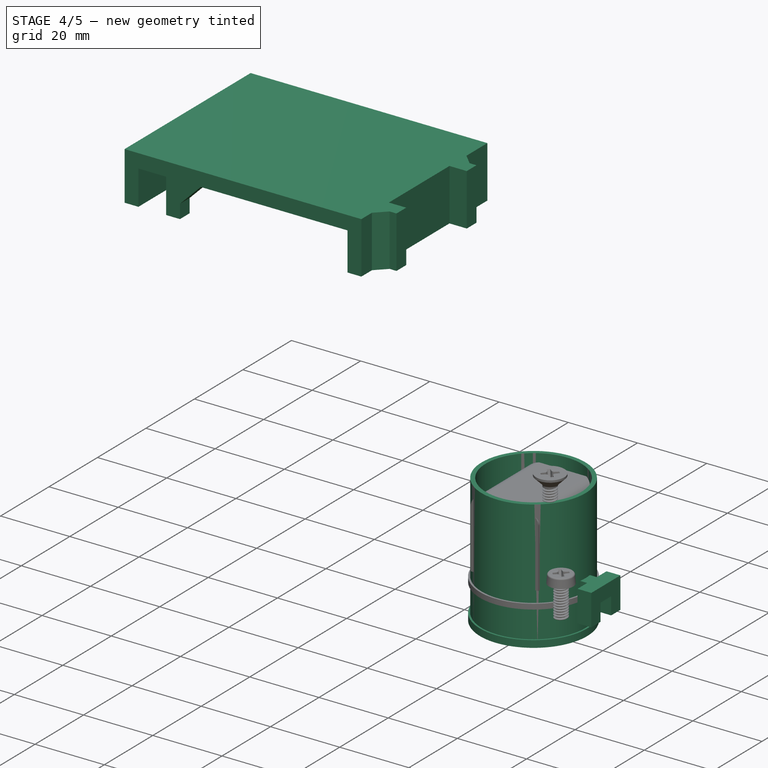
[diagram: stage 4 of 5 — iso view after this stage's code; geometry added in this stage tinted green]
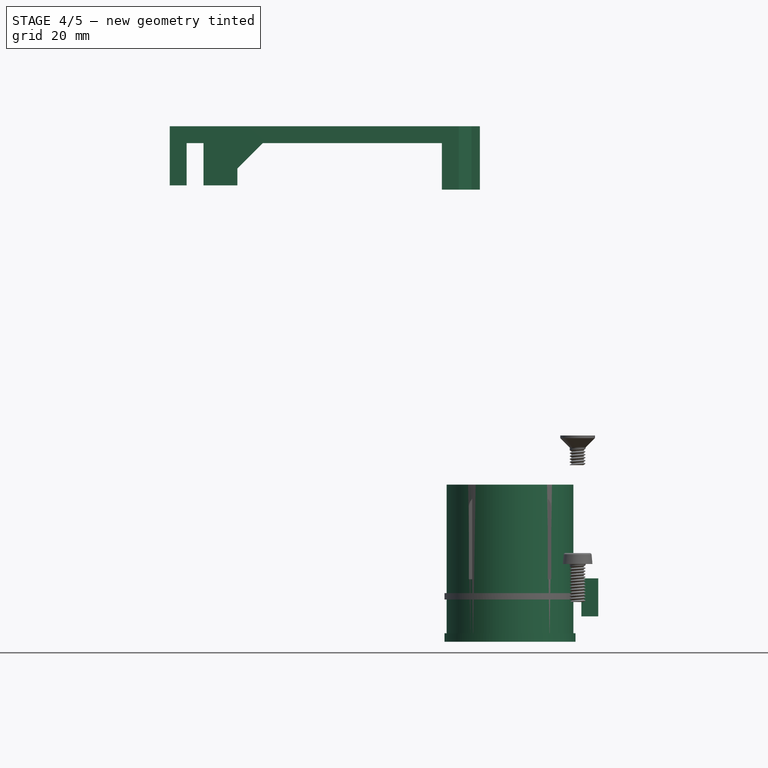
[diagram: stage 4 of 5 — front view after this stage's code; geometry added in this stage tinted green]
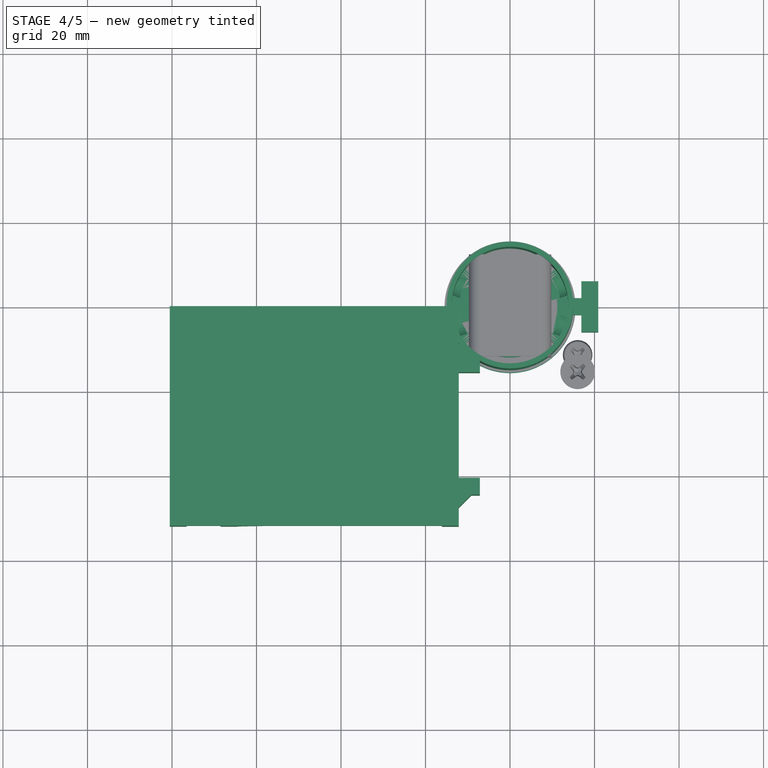
[diagram: stage 4 of 5 — top view after this stage's code; geometry added in this stage tinted green]
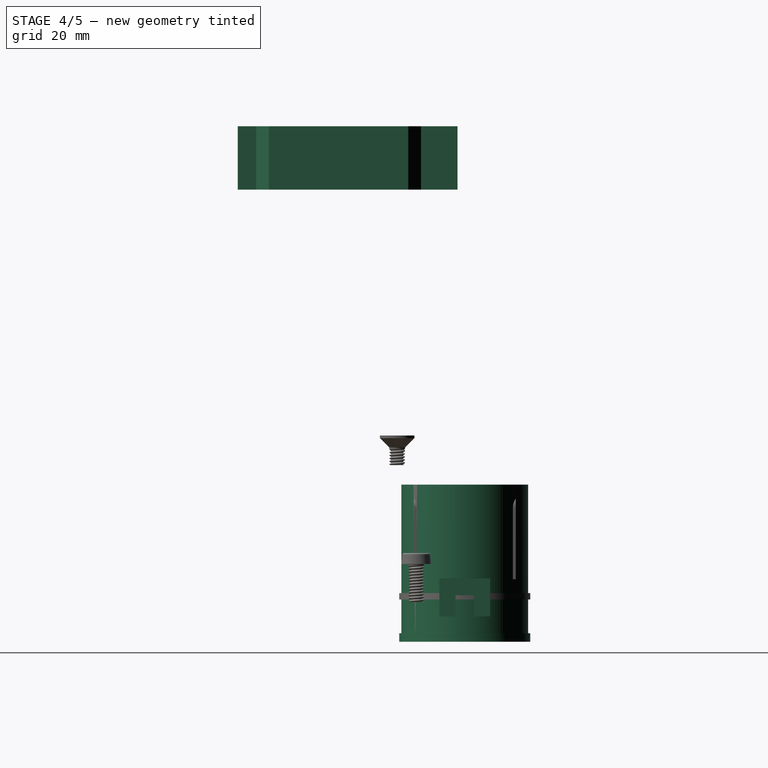
[diagram: stage 4 of 5 — right view after this stage's code; geometry added in this stage tinted green]
FEATURE [PartDesign::Body] Body002  label="bearing"
  AllowCompound = false
  Group = -> [Sketch002,Pad001]
  Origin = -> Origin004
  Tip = -> Pad001
FEATURE [App::Point] Origin010  label="Origin013"
  Role = Origin
FEATURE [PartDesign::SubShapeBinder] Binder005
  BindCopyOnChange = 0
  BindMode = 0
  ClaimChildren = false
  Context = -> Body004 [Binder005.]
  Fuse = false
  MakeFace = true
  OffsetFill = false
  OffsetIntersection = false
  OffsetJoinType = 0
  OffsetOpenResult = false
  PartialLoad = false
  Refine = true
  Relative = true
  _Version = 2
FEATURE [Sketcher::SketchObject] Sketch028
  ArcFitTolerance = 1e-06
  AttachmentSupport = -> [Binder005]
  ExternalGeometry = -> [Binder005]
  ExternalTypes = [0,0,0,0,0,0,0]
  FullyConstrained = false
  MakeInternals = false
  MapMode = 5
  Placement = pos=(0,0,11) rot=(0,0,1;0rad)
  sketch-geometry (13):
    g0: LineSegment StartX=20.8819 StartY=-6 StartZ=0 EndX=20.8819 EndY=6 EndZ=0
    g1: LineSegment StartX=20.8819 StartY=6 StartZ=0 EndX=16.8819 EndY=6 EndZ=0
    g2: LineSegment StartX=16.8819 StartY=-6 StartZ=0 EndX=20.8819 EndY=-6 EndZ=0
    g3: GeomPoint [constr] X=17 Y=0 Z=0
    g4: LineSegment [constr] StartX=16.8819 StartY=6 StartZ=0 EndX=20.8819 EndY=-6 EndZ=0
    g5: GeomPoint [constr] X=18.8819 Y=0 Z=0
    g6: LineSegment StartX=16.8819 StartY=6 StartZ=0 EndX=16.8819 EndY=2 EndZ=0
    g7: ArcOfCircle CenterX=0 CenterY=0 CenterZ=0 NormalX=0 NormalY=0 NormalZ=1 AngleXU=0 Radius=12 StartAngle=0.167448 EndAngle=6.11574
    g8: LineSegment StartX=16.8819 StartY=2 StartZ=0 EndX=11.8322 EndY=2 EndZ=0
    g9: LineSegment StartX=16.8819 StartY=-2 StartZ=0 EndX=11.8322 EndY=-2 EndZ=0
    g10: LineSegment StartX=16.8819 StartY=-6 StartZ=0 EndX=16.8819 EndY=-2 EndZ=0
    g11: LineSegment StartX=16.8819 StartY=-2 StartZ=0 EndX=16.8819 EndY=-2 EndZ=0
    g12: LineSegment [constr] StartX=16.8819 StartY=2 StartZ=0 EndX=16.8819 EndY=-2 EndZ=0
FEATURE [PartDesign::Pad] Pad019
  Direction = (0,0,1)
  Length = 4
  Length2 = 10
  Profile = -> Sketch028
  ReferenceAxis = -> Sketch028 [N_Axis]
  Refine = true
  SideType = 0
  Suppressed = false
  Type = 0
  Type2 = 0
FEATURE [Sketcher::SketchObject] Sketch029
  ArcFitTolerance = 1e-06
  AttachmentSupport = -> [Pad019]
  ExternalGeometry = -> [Pad019,Binder005]
  ExternalTypes = [0,0,0,0,0,0,0]
  FullyConstrained = true
  MakeInternals = false
  MapMode = 5
  Placement = pos=(0,0,11) rot=(1,0,0;3.14159rad)
  sketch-geometry (8):
    g0: LineSegment StartX=16.8819 StartY=6 StartZ=0 EndX=16.8819 EndY=2.2 EndZ=0
    g1: LineSegment StartX=16.8819 StartY=2.2 StartZ=0 EndX=20.8819 EndY=2.2 EndZ=0
    g2: LineSegment StartX=20.8819 StartY=2.2 StartZ=0 EndX=20.8819 EndY=6 EndZ=0
    g3: LineSegment StartX=20.8819 StartY=6 StartZ=0 EndX=16.8819 EndY=6 EndZ=0
    g4: LineSegment StartX=16.8819 StartY=-6 StartZ=0 EndX=20.8819 EndY=-6 EndZ=0
    g5: LineSegment StartX=20.8819 StartY=-6 StartZ=0 EndX=20.8819 EndY=-2.2 EndZ=0
    g6: LineSegment StartX=20.8819 StartY=-2.2 StartZ=0 EndX=16.8819 EndY=-2.2 EndZ=0
    g7: LineSegment StartX=16.8819 StartY=-2.2 StartZ=0 EndX=16.8819 EndY=-6 EndZ=0
  constraints (22):
    c: PointOnObject(g0,g-5)
    c: PointOnObject(g0,g-5)
    c: Coincident(g1,g0)
    c: PointOnObject(g1,g-3)
    c: Horizontal(g1)
    c: Coincident(g2,g1)
    c: Coincident(g2,g-4)
    c: Coincident(g3,g2)
    c: Coincident(g3,g0)
    c: Horizontal(g3)
    c: Distance(g-8,g1) = 0.2
    c: Coincident(g4,g5)
    c: Coincident(g5,g6)
    c: Coincident(g6,g7)
    c: Coincident(g7,g4)
    c: Horizontal(g4)
    c: Horizontal(g6)
    c: Vertical(g5)
    c: Vertical(g7)
    c: Coincident(g4,g-9)
    c: PointOnObject(g5,g-3)
    c: Distance(g-7,g6) = 0.2
FEATURE [PartDesign::Pad] Pad020
  BaseFeature = -> Pad019
  Direction = (0,0,-1)
  Length = 10
  Length2 = 10
  Profile = -> Sketch029
  ReferenceAxis = -> Sketch029 [N_Axis]
  Refine = true
  SideType = 0
  Suppressed = false
  Type = 3
  Type2 = 0
  UpToFace = -> Binder005 [Face13]
FEATURE [Sketcher::SketchObject] Sketch068
  ArcFitTolerance = 1e-06
  AttachmentOffset = pos=(0,0,7.5) rot=(0,0,1;0rad)
  AttachmentSupport = -> [Clone005]
  ExternalGeometry = -> [Clone005]
  ExternalTypes = [0,0]
  FullyConstrained = true
  MakeInternals = false
  MapMode = 5
  Placement = pos=(0,0,61.9) rot=(0,0,-1;1.5708rad)
  sketch-geometry (5):
    g0: LineSegment [constr] StartX=-5.43467 StartY=-5.17193 StartZ=0 EndX=5.17193 EndY=5.43467 EndZ=0
    g1: GeomPoint [constr] X=-0.131371 Y=0.131371 Z=0
    g2: LineSegment StartX=-0.131371 StartY=0.131371 StartZ=0 EndX=99.8686 EndY=0.131371 EndZ=0
    g3: LineSegment StartX=-0.131371 StartY=0.131371 StartZ=0 EndX=-0.131371 EndY=-99.8686 EndZ=0
    g4: LineSegment StartX=-0.131371 StartY=0.131371 StartZ=0 EndX=70.5793 EndY=-70.5793 EndZ=0
  constraints (13):
    c: PointOnObject(g0,g-3)
    c: Symmetric(g0,g0,g1)
    c: Coincident(g0,g-4)
    c: Coincident(g2,g1)
    c: Coincident(g3,g1)
    c: Angle(g3,g2) = 1.5708
    c: Parallel(g0,g-4)
    c: DistanceX(g2,g2) = 100
    c: DistanceY(g3,g3) = 100
    c: Angle(g0,g3) = 0.785398
    c: Distance(g4) = 100
    c: Coincident(g4,g1)
    c: Angle(g3,g4) = 0.785398
FEATURE [PartDesign::Body] Body014  label="mirrors_with_points_and_lines"
  AllowCompound = false
  Group = -> [Clone005,Sketch068]
  Origin = -> Origin031
  Tip = -> Clone005
FEATURE [Sketcher::SketchObject] Sketch069
  ArcFitTolerance = 1e-06
  AttachmentSupport = -> [Pocket017]
  ExternalGeometry = -> [Pocket017]
  ExternalTypes = [0]
  FullyConstrained = true
  MakeInternals = false
  MapMode = 5
  Placement = pos=(0,-16,0) rot=(1,0,0;1.5708rad)
  sketch-geometry (1):
    g0: GeomPoint X=12.5 Y=12 Z=0
  constraints (1):
    c: Coincident(g0,g-3)
FEATURE [PartDesign::Body] Body013  label="laser_diode"
  AllowCompound = false
  Group = -> [Sketch063,Pad042,Sketch064,Pocket016,Sketch065,Pocket017,Sketch069]
  Origin = -> Origin029
  Tip = -> Pocket017
FEATURE [PartDesign::SubShapeBinder] Binder016
  BindCopyOnChange = 0
  BindMode = 0
  ClaimChildren = false
  Context = -> Body012 [Binder016.]
  Fuse = false
  MakeFace = true
  OffsetFill = false
  OffsetIntersection = false
  OffsetJoinType = 0
  OffsetOpenResult = false
  PartialLoad = false
  Refine = true
  Relative = true
  _Version = 2
FEATURE [PartDesign::SubShapeBinder] Binder017
  BindCopyOnChange = 0
  BindMode = 0
  ClaimChildren = false
  Context = -> Body012 [Binder017.]
  Fuse = false
  MakeFace = true
  OffsetFill = false
  OffsetIntersection = false
  OffsetJoinType = 0
  OffsetOpenResult = false
  PartialLoad = false
  Refine = true
  Relative = true
  _Version = 2
FEATURE [Sketcher::SketchObject] Sketch060
  ArcFitTolerance = 1e-06
  AttachmentSupport = -> [Binder016]
  ExternalGeometry = -> [Binder017,Binder016]
  ExternalTypes = [0,0,0,0]
  FullyConstrained = true
  MakeInternals = false
  MapMode = 5
  Placement = pos=(1.723e-13,0,118) rot=(0,0,1;0rad)
  sketch-geometry (4):
    g0: LineSegment StartX=-80.5314 StartY=-53.7373 StartZ=0 EndX=-12.1314 EndY=-53.7373 EndZ=0
    g1: LineSegment StartX=-12.1314 StartY=-53.7373 StartZ=0 EndX=-12.1314 EndY=-1.73726 EndZ=0
    g2: LineSegment StartX=-12.1314 StartY=-1.73726 StartZ=0 EndX=-80.5314 EndY=-1.73726 EndZ=0
    g3: LineSegment StartX=-80.5314 StartY=-1.73726 StartZ=0 EndX=-80.5314 EndY=-53.7373 EndZ=0
  constraints (12):
    c: Horizontal(g0)
    c: Coincident(g1,g0)
    c: Vertical(g1)
    c: Coincident(g2,g1)
    c: Horizontal(g2)
    c: Coincident(g3,g2)
    c: Coincident(g3,g0)
    c: Vertical(g3)
    c: PointOnObject(g-4,g1)
    c: PointOnObject(g-5,g0)
    c: Distance(g-5,g3) = 4
    c: Distance(g-6,g2) = 4
FEATURE [PartDesign::Pad] Pad039
  Direction = (1.5e-15,0,1)
  Length = 4
  Length2 = 10
  Profile = -> Sketch060
  ReferenceAxis = -> Sketch060 [N_Axis]
  Refine = true
  SideType = 0
  Suppressed = false
  Type = 0
  Type2 = 0
FEATURE [Sketcher::SketchObject] Sketch061
  ArcFitTolerance = 1e-06
  AttachmentSupport = -> [Pad039]
  ExternalGeometry = -> [Pad039,Binder016]
  ExternalTypes = [0,0,0,0,0,0,0]
  FullyConstrained = true
  MakeInternals = false
  MapMode = 5
  Placement = pos=(1.711e-13,0,118) rot=(1,0,0;3.14159rad)
  sketch-geometry (12):
    g0: LineSegment StartX=-76.5314 StartY=1.73726 StartZ=0 EndX=-76.5314 EndY=53.7373 EndZ=0
    g1: LineSegment StartX=-76.5314 StartY=53.7373 StartZ=0 EndX=-80.5314 EndY=53.7373 EndZ=0
    g2: LineSegment StartX=-80.5314 StartY=53.7373 StartZ=0 EndX=-80.5314 EndY=1.73726 EndZ=0
    g3: LineSegment StartX=-80.5314 StartY=1.73726 StartZ=0 EndX=-76.5314 EndY=1.73726 EndZ=0
    g4: LineSegment StartX=-72.5314 StartY=5.73726 StartZ=0 EndX=-72.5314 EndY=1.73726 EndZ=0
    g5: LineSegment StartX=-72.5314 StartY=1.73726 StartZ=0 EndX=-68.5314 EndY=1.73726 EndZ=0
    g6: LineSegment StartX=-68.5314 StartY=1.73726 StartZ=0 EndX=-68.5314 EndY=5.73726 EndZ=0
    g7: LineSegment StartX=-68.5314 StartY=5.73726 StartZ=0 EndX=-72.5314 EndY=5.73726 EndZ=0
    g8: LineSegment StartX=-68.5314 StartY=49.7373 StartZ=0 EndX=-64.5314 EndY=49.7373 EndZ=0
    g9: LineSegment StartX=-64.5314 StartY=49.7373 StartZ=0 EndX=-64.5314 EndY=53.7373 EndZ=0
    g10: LineSegment StartX=-64.5314 StartY=53.7373 StartZ=0 EndX=-68.5314 EndY=53.7373 EndZ=0
    g11: LineSegment StartX=-68.5314 StartY=53.7373 StartZ=0 EndX=-68.5314 EndY=49.7373 EndZ=0
  constraints (30):
    c: Coincident(g0,g1)
    c: Coincident(g1,g2)
    c: Coincident(g2,g3)
    c: Coincident(g3,g0)
    c: Vertical(g0)
    c: Horizontal(g3)
    c: Coincident(g4,g5)
    c: Coincident(g5,g6)
    c: Coincident(g6,g7)
    c: Coincident(g7,g4)
    c: Vertical(g4)
    c: Vertical(g6)
    c: Horizontal(g5)
    c: Coincident(g4,g-9)
    c: PointOnObject(g5,g-4)
    c: Coincident(g6,g-9)
    c: Coincident(g8,g9)
    c: Coincident(g9,g10)
    c: Coincident(g10,g11)
    c: Coincident(g11,g8)
    c: Horizontal(g8)
    c: Horizontal(g10)
    c: Vertical(g9)
    c: Vertical(g11)
    c: Distance(g9,g11) = 4
    c: Coincident(g8,g-7)
    c: PointOnObject(g9,g-6)
    c: Coincident(g0,g-5)
    c: Coincident(g1,g-6)
    c: Coincident(g-4,g2)
FEATURE [PartDesign::Pad] Pad040
  BaseFeature = -> Pad039
  Direction = (-1.5e-15,0,-1)
  Length = 10
  Length2 = 10
  Profile = -> Sketch061
  ReferenceAxis = -> Sketch061 [N_Axis]
  Refine = true
  SideType = 0
  Suppressed = false
  Type = 0
  Type2 = 0
FEATURE [Sketcher::SketchObject] Sketch066
  ArcFitTolerance = 1e-06
  AttachmentSupport = -> [Pad040]
  ExternalGeometry = -> [Pad040]
  ExternalTypes = [0,0,0]
  FullyConstrained = true
  MakeInternals = false
  MapMode = 5
  Placement = pos=(1.769e-13,0,122) rot=(0,0,1;0rad)
  sketch-geometry (4):
    g0: LineSegment StartX=-12.1314 StartY=-1.73726 StartZ=0 EndX=-16.1314 EndY=-1.73726 EndZ=0
    g1: LineSegment StartX=-16.1314 StartY=-1.73726 StartZ=0 EndX=-16.1314 EndY=-53.7373 EndZ=0
    g2: LineSegment StartX=-16.1314 StartY=-53.7373 StartZ=0 EndX=-12.1314 EndY=-53.7373 EndZ=0
    g3: LineSegment StartX=-12.1314 StartY=-53.7373 StartZ=0 EndX=-12.1314 EndY=-1.73726 EndZ=0
  constraints (10):
    c: Coincident(g0,g1)
    c: Coincident(g1,g2)
    c: Coincident(g2,g3)
    c: Coincident(g3,g0)
    c: Horizontal(g0)
    c: Horizontal(g2)
    c: Vertical(g1)
    c: Distance(g1,g3) = 4
    c: Coincident(g0,g-4)
    c: Coincident(g-5,g2)
FEATURE [PartDesign::Pad] Pad043
  BaseFeature = -> Pad040
  Direction = (1.5e-15,0,1)
  Length = 15
  Length2 = 10
  Profile = -> Sketch066
  ReferenceAxis = -> Sketch066 [N_Axis]
  Refine = true
  Reversed = true
  SideType = 0
  Suppressed = false
  Type = 0
  Type2 = 0
FEATURE [Sketcher::SketchObject] Sketch067
  ArcFitTolerance = 1e-06
  AttachmentSupport = -> [Pad043]
  ExternalGeometry = -> [Pad043,Binder017]
  ExternalTypes = [0,0,0,0]
  FullyConstrained = true
  MakeInternals = false
  MapMode = 5
  Placement = pos=(-12.1314,0,2.81e-14) rot=(0.57735,0.57735,0.57735;2.0944rad)
  sketch-geometry (8):
    g0: LineSegment StartX=-46.3686 StartY=107 StartZ=0 EndX=-46.3686 EndY=122 EndZ=0
    g1: LineSegment StartX=-46.3686 StartY=122 StartZ=0 EndX=-42.3686 EndY=122 EndZ=0
    g2: LineSegment StartX=-42.3686 StartY=122 StartZ=0 EndX=-42.3686 EndY=107 EndZ=0
    g3: LineSegment StartX=-42.3686 StartY=107 StartZ=0 EndX=-46.3686 EndY=107 EndZ=0
    g4: LineSegment StartX=-13.3686 StartY=107 StartZ=0 EndX=-17.3686 EndY=107 EndZ=0
    g5: LineSegment StartX=-17.3686 StartY=107 StartZ=0 EndX=-17.3686 EndY=122 EndZ=0
    g6: LineSegment StartX=-17.3686 StartY=122 StartZ=0 EndX=-13.3686 EndY=122 EndZ=0
    g7: LineSegment StartX=-13.3686 StartY=122 StartZ=0 EndX=-13.3686 EndY=107 EndZ=0
  constraints (24):
    c: Coincident(g0,g1)
    c: Coincident(g1,g2)
    c: Coincident(g2,g3)
    c: Coincident(g3,g0)
    c: Vertical(g0)
    c: Vertical(g2)
    c: Horizontal(g1)
    c: Horizontal(g3)
    c: PointOnObject(g0,g-3)
    c: PointOnObject(g-4,g2)
    c: Distance(g3,g3) = 4
    c: Coincident(g4,g5)
    c: Coincident(g5,g6)
    c: Coincident(g6,g7)
    c: Coincident(g7,g4)
    c: Horizontal(g4)
    c: Horizontal(g6)
    c: Vertical(g5)
    c: Vertical(g7)
    c: PointOnObject(g4,g-3)
    c: PointOnObject(g-5,g5)
    c: Distance(g4,g4) = 4
    c: PointOnObject(g1,g-6)
    c: PointOnObject(g6,g-6)
FEATURE [PartDesign::Pad] Pad044
  BaseFeature = -> Pad043
  Direction = (1,0,-2.2e-15)
  Length = 5
  Length2 = 10
  Profile = -> Sketch067
  ReferenceAxis = -> Sketch067 [N_Axis]
  Refine = true
  SideType = 0
  Suppressed = false
  Type = 0
  Type2 = 0
FEATURE [PartDesign::Body] Body004  label="mirror_holder_adapter"
  AllowCompound = false
  Group = -> [Binder005,Sketch028,Pad019,Sketch029,Pad020,MultiTransform002,Mirror004,Sketch030,Pocket,Sketch070,Pad045]
  Origin = -> Origin009
  Tip = -> Pocket
FEATURE [PartDesign::Chamfer] Chamfer
  Angle = 45
  Base = -> Pad044 [Edge36,Edge35]
  BaseFeature = -> Pad044
  ChamferType = 0
  FlipDirection = false
  Refine = true
  Size = 6
  Size2 = 1
  SupportTransform = false
  Suppressed = false
  UseAllEdges = false
FEATURE [PartDesign::Chamfer] Chamfer001
  Angle = 45
  Base = -> Chamfer [Edge44,Edge79]
  BaseFeature = -> Chamfer
  ChamferType = 0
  FlipDirection = false
  Refine = true
  Size = 3
  Size2 = 1
  SupportTransform = false
  Suppressed = false
  UseAllEdges = false
FEATURE [PartDesign::Body] Body012  label="laser_diode_holder"
  AllowCompound = false
  Group = -> [Sketch060,Pad039,Sketch061,Pad040,Sketch066,Pad043,Sketch067,Pad044,Binder016,Binder017,Chamfer,Chamfer001]
  Origin = -> Origin027
  Tip = -> Chamfer001
FEATURE [App::Point] Origin037  label="Origin048"
  Role = Origin
FEATURE [Sketcher::SketchObject] Sketch077
  ArcFitTolerance = 1e-06
  AttachmentSupport = -> [Origin036]
  ExternalTypes = [0]
  FullyConstrained = true
  MakeInternals = false
  MapMode = 5
  sketch-geometry (6):
    g0: Circle CenterX=0 CenterY=-1e-16 CenterZ=0 NormalX=0 NormalY=0 NormalZ=1 AngleXU=0 Radius=8
    g1: LineSegment StartX=-4 StartY=-4 StartZ=0 EndX=4 EndY=-4 EndZ=0
    g2: LineSegment StartX=4 StartY=-4 StartZ=0 EndX=4 EndY=4 EndZ=0
    g3: LineSegment StartX=4 StartY=4 StartZ=0 EndX=-4 EndY=4 EndZ=0
    g4: LineSegment StartX=-4 StartY=4 StartZ=0 EndX=-4 EndY=-4 EndZ=0
    g5: GeomPoint [constr] X=0 Y=-1e-16 Z=0
  constraints (14):
    c: Coincident(g0,g-1)
    c: Coincident(g1,g2)
    c: Coincident(g2,g3)
    c: Coincident(g3,g4)
    c: Coincident(g4,g1)
    c: Horizontal(g1)
    c: Horizontal(g3)
    c: Vertical(g2)
    c: Vertical(g4)
    c: Symmetric(g3,g1,g5)
    c: Coincident(g5,g0)
    c: Equal(g3,g2)
    c: Distance(g3,g3) = 8
    c: Diameter(g0) = 16
FEATURE [PartDesign::Pad] Pad050
  Direction = (0,0,1)
  Length = 2
  Length2 = 10
  Profile = -> Sketch077
  ReferenceAxis = -> Sketch077 [N_Axis]
  Refine = true
  SideType = 0
  Suppressed = false
  Type = 0
  Type2 = 0
FEATURE [Sketcher::SketchObject] Sketch078
  ArcFitTolerance = 1e-06
  AttachmentSupport = -> [Origin036]
  ExternalGeometry = -> [Pad050]
  ExternalTypes = [0]
  FullyConstrained = true
  MakeInternals = false
  MapMode = 5
  Placement = pos=(0,0,0) rot=(1,0,0;1.5708rad)
  sketch-geometry (4):
    g0: LineSegment StartX=8 StartY=2 StartZ=0 EndX=7.25 EndY=2 EndZ=0
    g1: LineSegment StartX=7.25 StartY=2 StartZ=0 EndX=7.25 EndY=0 EndZ=0
    g2: LineSegment StartX=7.25 StartY=0 StartZ=0 EndX=8 EndY=0 EndZ=0
    g3: LineSegment StartX=8 StartY=0 StartZ=0 EndX=8 EndY=2 EndZ=0
  constraints (11):
    c: Coincident(g0,g1)
    c: Coincident(g1,g2)
    c: Coincident(g2,g3)
    c: Coincident(g3,g0)
    c: Horizontal(g0)
    c: Horizontal(g2)
    c: Vertical(g1)
    c: Vertical(g3)
    c: Coincident(g0,g-3)
    c: PointOnObject(g1,g-1)
    c: Distance(g0,g0) = 0.75
FEATURE [PartDesign::AdditiveHelix] AdditiveHelix
  Angle = 0
  Axis = (0,2e-16,1)
  Base = (0,0,0)
  BaseFeature = -> Pad050
  Growth = 1.5
  HasBeenEdited = true
  Height = 0
  LeftHanded = false
  Mode = 3
  Outside = false
  Pitch = 0
  Profile = -> Sketch078
  ReferenceAxis = -> Sketch078 [V_Axis]
  Refine = true
  Suppressed = false
  Tolerance = 0.1
  Turns = 3.5
FEATURE [Sketcher::SketchObject] Sketch085
  ArcFitTolerance = 1e-06
  AttachmentSupport = -> [Origin036]
  ExternalGeometry = -> [AdditiveHelix]
  ExternalTypes = [0]
  FullyConstrained = true
  MakeInternals = false
  MapMode = 5
  sketch-geometry (2):
    g0: Circle CenterX=0 CenterY=0 CenterZ=0 NormalX=0 NormalY=0 NormalZ=1 AngleXU=0 Radius=12.5
    g1: Circle CenterX=0 CenterY=0 CenterZ=0 NormalX=0 NormalY=0 NormalZ=1 AngleXU=0 Radius=15.5
  constraints (4):
    c: Coincident(g0,g-1)
    c: PointOnObject(g-3,g0)
    c: Coincident(g1,g0)
    c: Distance(g0,g1) = 3
FEATURE [PartDesign::Pad] Pad056
  BaseFeature = -> AdditiveHelix
  Direction = (0,0,1)
  Length = 10
  Length2 = 10
  Profile = -> Sketch085
  ReferenceAxis = -> Sketch085 [N_Axis]
  Refine = true
  SideType = 0
  Suppressed = false
  Type = 3
  Type2 = 0
  UpToFace = -> AdditiveHelix [Face16]
FEATURE [PartDesign::Body] Body016  label="spring_test"
  AllowCompound = false
  Group = -> [Sketch077,Pad050,Sketch078,AdditiveHelix,Sketch085,Pad056]
  Origin = -> Origin036
  Tip = -> Pad056
FEATURE [App::Point] Origin045  label="Origin059"
  Role = Origin
FEATURE [Sketcher::SketchObject] Sketch086
  ArcFitTolerance = 1e-06
  AttachmentSupport = -> [Origin044]
  ExternalTypes = [0]
  FullyConstrained = true
  MakeInternals = false
  MapMode = 5
  sketch-geometry (1):
    g0: Circle CenterX=0 CenterY=0 CenterZ=0 NormalX=0 NormalY=0 NormalZ=1 AngleXU=0 Radius=5.5
  constraints (2):
    c: Diameter(g0) = 11
    c: Coincident(g0,g-1)
FEATURE [PartDesign::Pad] Pad057
  Direction = (0,0,1)
  Length = 2
  Length2 = 10
  Profile = -> Sketch086
  ReferenceAxis = -> Sketch086 [N_Axis]
  Refine = true
  SideType = 0
  Suppressed = false
  Type = 0
  Type2 = 0
FEATURE [Sketcher::SketchObject] Sketch087
  ArcFitTolerance = 1e-06
  AttachmentSupport = -> [Origin044]
  ExternalTypes = [0]
  FullyConstrained = true
  MakeInternals = false
  MapMode = 5
  sketch-geometry (4):
    g0: LineSegment StartX=-3 StartY=3 StartZ=0 EndX=-3 EndY=-3 EndZ=0
    g1: LineSegment StartX=-3 StartY=-3 StartZ=0 EndX=3 EndY=-3 EndZ=0
    g2: LineSegment StartX=3 StartY=-3 StartZ=0 EndX=3 EndY=3 EndZ=0
    g3: LineSegment StartX=3 StartY=3 StartZ=0 EndX=-3 EndY=3 EndZ=0
  constraints (11):
    c: Coincident(g0,g1)
    c: Coincident(g1,g2)
    c: Coincident(g2,g3)
    c: Coincident(g3,g0)
    c: Vertical(g0)
    c: Vertical(g2)
    c: Horizontal(g1)
    c: Horizontal(g3)
    c: Symmetric(g0,g1,g-1)
    c: Equal(g3,g2)
    c: DistanceY(g2,g2) = 6
FEATURE [PartDesign::Pocket] Pocket020
  BaseFeature = -> Pad057
  Direction = (0,0,-1)
  Length = 5
  Length2 = 5
  Profile = -> Sketch087
  ReferenceAxis = -> Sketch087 [N_Axis]
  Refine = true
  Reversed = true
  SideType = 0
  Suppressed = false
  Type = 1
  Type2 = 0
FEATURE [Sketcher::SketchObject] Sketch088
  ArcFitTolerance = 1e-06
  AttachmentSupport = -> [Origin044]
  ExternalGeometry = -> [Pocket020]
  ExternalTypes = [0]
  FullyConstrained = true
  MakeInternals = false
  MapMode = 5
  Placement = pos=(0,0,0) rot=(1,0,0;1.5708rad)
  sketch-geometry (4):
    g0: LineSegment StartX=5.5 StartY=2 StartZ=0 EndX=4.75 EndY=2 EndZ=0
    g1: LineSegment StartX=4.75 StartY=2 StartZ=0 EndX=4.75 EndY=0 EndZ=0
    g2: LineSegment StartX=4.75 StartY=0 StartZ=0 EndX=5.5 EndY=0 EndZ=0
    g3: LineSegment StartX=5.5 StartY=0 StartZ=0 EndX=5.5 EndY=2 EndZ=0
  constraints (11):
    c: Coincident(g0,g1)
    c: Coincident(g1,g2)
    c: Coincident(g2,g3)
    c: Coincident(g3,g0)
    c: Horizontal(g0)
    c: Horizontal(g2)
    c: Vertical(g1)
    c: Vertical(g3)
    c: Coincident(g0,g-3)
    c: PointOnObject(g1,g-1)
    c: Distance(g0,g0) = 0.75
FEATURE [PartDesign::AdditiveHelix] AdditiveHelix001
  Angle = 0
  Axis = (0,2e-16,1)
  Base = (0,0,0)
  BaseFeature = -> Pocket020
  Growth = 2.75
  HasBeenEdited = true
  Height = 0
  LeftHanded = false
  Mode = 3
  Outside = false
  Pitch = 0
  Profile = -> Sketch088
  ReferenceAxis = -> Sketch088 [V_Axis]
  Refine = true
  Suppressed = false
  Tolerance = 0.1
  Turns = 2
FEATURE [Sketcher::SketchObject] Sketch089
  ArcFitTolerance = 1e-06
  AttachmentSupport = -> [Origin044]
  ExternalGeometry = -> [AdditiveHelix001]
  ExternalTypes = [0]
  FullyConstrained = true
  MakeInternals = false
  MapMode = 5
  Placement = pos=(0,0,0) rot=(1,0,0;1.5708rad)
  sketch-geometry (6):
    g0: LineSegment [constr] StartX=5.5 StartY=2 StartZ=0 EndX=-5.5 EndY=2 EndZ=0
    g1: GeomPoint [constr] X=0 Y=2 Z=0
    g2: LineSegment StartX=-5.5 StartY=2 StartZ=0 EndX=-5.5 EndY=0 EndZ=0
    g3: LineSegment StartX=-5.5 StartY=0 StartZ=0 EndX=-4.75 EndY=0 EndZ=0
    g4: LineSegment StartX=-4.75 StartY=0 StartZ=0 EndX=-4.75 EndY=2 EndZ=0
    g5: LineSegment StartX=-4.75 StartY=2 StartZ=0 EndX=-5.5 EndY=2 EndZ=0
  constraints (15):
    c: Coincident(g0,g-3)
    c: Horizontal(g0)
    c: Symmetric(g0,g0,g1)
    c: PointOnObject(g1,g-2)
    c: Coincident(g2,g3)
    c: Coincident(g3,g4)
    c: Coincident(g4,g5)
    c: Coincident(g5,g2)
    c: Vertical(g2)
    c: Vertical(g4)
    c: Horizontal(g3)
    c: Horizontal(g5)
    c: Coincident(g2,g0)
    c: PointOnObject(g3,g-1)
    c: Distance(g5,g5) = 0.75
FEATURE [PartDesign::AdditiveHelix] AdditiveHelix002
  Angle = 0
  Axis = (0,2e-16,1)
  Base = (0,0,0)
  BaseFeature = -> AdditiveHelix001
  Growth = 2.75
  HasBeenEdited = true
  Height = 0
  LeftHanded = false
  Mode = 3
  Outside = false
  Pitch = 0
  Profile = -> Sketch089
  ReferenceAxis = -> Sketch089 [V_Axis]
  Refine = true
  Suppressed = false
  Tolerance = 0.1
  Turns = 2
FEATURE [Sketcher::SketchObject] Sketch090
  ArcFitTolerance = 1e-06
  AttachmentSupport = -> [Origin044]
  ExternalGeometry = -> [AdditiveHelix002]
  ExternalTypes = [0,0]
  FullyConstrained = true
  MakeInternals = false
  MapMode = 5
  sketch-geometry (2):
    g0: Circle CenterX=0 CenterY=0 CenterZ=0 NormalX=0 NormalY=0 NormalZ=1 AngleXU=0 Radius=10.25
    g1: Circle CenterX=0 CenterY=0 CenterZ=0 NormalX=0 NormalY=0 NormalZ=1 AngleXU=0 Radius=11
  constraints (4):
    c: Coincident(g0,g-1)
    c: Diameter(g1) = 22
    c: Coincident(g1,g0)
    c: PointOnObject(g-3,g0)
FEATURE [PartDesign::Pad] Pad058
  BaseFeature = -> AdditiveHelix002
  Direction = (0,0,1)
  Length = 10
  Length2 = 10
  Profile = -> Sketch090
  ReferenceAxis = -> Sketch090 [N_Axis]
  Refine = true
  SideType = 0
  Suppressed = false
  Type = 3
  Type2 = 0
  UpToFace = -> AdditiveHelix002 [Face13]
FEATURE [App::Point] Origin047  label="Origin062"
  Role = Origin
FEATURE [PartDesign::SubShapeBinder] Binder020
  BindCopyOnChange = 0
  BindMode = 0
  ClaimChildren = false
  Context = -> Body021 [Binder020.]
  Fuse = false
  MakeFace = true
  OffsetFill = false
  OffsetIntersection = false
  OffsetJoinType = 0
  OffsetOpenResult = false
  PartialLoad = false
  Refine = true
  Relative = true
  Support = -> [Body020]
  _Version = 2
FEATURE [Sketcher::SketchObject] Sketch091
  ArcFitTolerance = 1e-06
  AttachmentSupport = -> [Origin046]
  ExternalGeometry = -> [Binder020]
  ExternalTypes = [0,0,0,0,0,0,0,0]
  FullyConstrained = true
  MakeInternals = false
  MapMode = 5
  sketch-geometry (8):
    g0: ArcOfCircle CenterX=-1 CenterY=-1 CenterZ=0 NormalX=0 NormalY=0 NormalZ=1 AngleXU=-1.5708 Radius=1.9 StartAngle=4.71239 EndAngle=6.28319
    g1: LineSegment StartX=1 StartY=-2.9 StartZ=0 EndX=-1 EndY=-2.9 EndZ=0
    g2: ArcOfCircle CenterX=1 CenterY=-1 CenterZ=0 NormalX=0 NormalY=0 NormalZ=1 AngleXU=-1.5708 Radius=1.9 StartAngle=0 EndAngle=1.5708
    g3: LineSegment StartX=2.9 StartY=1 StartZ=0 EndX=2.9 EndY=-1 EndZ=0
    g4: ArcOfCircle CenterX=1 CenterY=1 CenterZ=0 NormalX=0 NormalY=0 NormalZ=1 AngleXU=-1.5708 Radius=1.9 StartAngle=1.5708 EndAngle=3.14159
    g5: LineSegment StartX=-1 StartY=2.9 StartZ=0 EndX=1 EndY=2.9 EndZ=0
    g6: ArcOfCircle CenterX=-1 CenterY=1 CenterZ=0 NormalX=0 NormalY=0 NormalZ=1 AngleXU=-1.5708 Radius=1.9 StartAngle=3.14159 EndAngle=4.71239
    g7: LineSegment StartX=-2.9 StartY=-1 StartZ=0 EndX=-2.9 EndY=1 EndZ=0
  constraints (16):
    c: Tangent(g0,g1) = 1.5708
    c: Tangent(g0,g7) = 1.5708
    c: Tangent(g1,g2) = 1.5708
    c: Tangent(g2,g3) = 1.5708
    c: Tangent(g3,g4) = 1.5708
    c: Tangent(g4,g5) = 1.5708
    c: Tangent(g5,g6) = 1.5708
    c: Tangent(g6,g7) = 1.5708
    c: Coincident(g6,g-4)
    c: Coincident(g4,g-6)
    c: Coincident(g2,g-8)
    c: Coincident(g0,g-10)
    c: Horizontal(g5)
    c: Vertical(g7)
    c: Vertical(g3)
    c: Distance(g-7,g3) = 0.1
FEATURE [PartDesign::Pad] Pad059
  Direction = (0,0,1)
  Length = 4
  Length2 = 10
  Profile = -> Sketch091
  ReferenceAxis = -> Sketch091 [N_Axis]
  Refine = true
  SideType = 0
  Suppressed = false
  Type = 0
  Type2 = 0
FEATURE [Sketcher::SketchObject] Sketch092
  ArcFitTolerance = 1e-06
  AttachmentSupport = -> [Pad059]
  ExternalTypes = [0]
  FullyConstrained = true
  MakeInternals = false
  MapMode = 5
  Placement = pos=(0,0,4) rot=(0,0,1;0rad)
  sketch-geometry (7):
    g0: LineSegment StartX=-10 StartY=2.9 StartZ=0 EndX=-10 EndY=-2.9 EndZ=0
    g1: LineSegment StartX=-10 StartY=-2.9 StartZ=0 EndX=10 EndY=-2.9 EndZ=0
    g2: LineSegment StartX=10 StartY=-2.9 StartZ=0 EndX=10 EndY=2.9 EndZ=0
    g3: LineSegment StartX=10 StartY=2.9 StartZ=0 EndX=-10 EndY=2.9 EndZ=0
    g4: GeomPoint X=-10 Y=0 Z=0
    g5: GeomPoint X=0 Y=2.9 Z=0
    g6: LineSegment [constr] StartX=0 StartY=2.9 StartZ=0 EndX=0 EndY=-2.9 EndZ=0
  constraints (16):
    c: Coincident(g0,g1)
    c: Coincident(g1,g2)
    c: Coincident(g2,g3)
    c: Coincident(g3,g0)
    c: Vertical(g0)
    c: Vertical(g2)
    c: Horizontal(g1)
    c: Horizontal(g3)
    c: Symmetric(g0,g0,g4)
    c: PointOnObject(g4,g-1)
    c: Symmetric(g3,g3,g5)
    c: Coincident(g6,g5)
    c: Symmetric(g1,g1,g6)
    c: PointOnObject(g-1,g6)
    c: Distance(g3,g3) = 20
    c: PointOnObject(g-3,g3)
FEATURE [PartDesign::Pad] Pad060
  BaseFeature = -> Pad059
  Direction = (0,0,1)
  Length = 3
  Length2 = 10
  Profile = -> Sketch092
  ReferenceAxis = -> Sketch092 [N_Axis]
  Refine = true
  SideType = 0
  Suppressed = false
  Type = 0
  Type2 = 0
FEATURE [Sketcher::SketchObject] Sketch093
  ArcFitTolerance = 1e-06
  AttachmentSupport = -> [Pad060]
  ExternalGeometry = -> [Pad060]
  ExternalTypes = [0]
  FullyConstrained = true
  MakeInternals = false
  MapMode = 5
  Placement = pos=(0,0,7) rot=(0,0,1;0rad)
  sketch-geometry (4):
    g0: LineSegment [constr] StartX=0 StartY=-2.9 StartZ=0 EndX=0 EndY=2.9 EndZ=0
    g1: LineSegment [constr] StartX=0 StartY=0 StartZ=0 EndX=-10 EndY=0 EndZ=0
    g2: LineSegment [constr] StartX=0 StartY=0 StartZ=0 EndX=10 EndY=0 EndZ=0
    g3: Circle CenterX=-7 CenterY=0 CenterZ=0 NormalX=0 NormalY=0 NormalZ=1 AngleXU=0 Radius=2
  constraints (9):
    c: Symmetric(g-4,g-4,g0)
    c: Symmetric(g-6,g-6,g0)
    c: Coincident(g1,g-1)
    c: Symmetric(g-3,g-3,g1)
    c: Coincident(g2,g1)
    c: Symmetric(g-5,g-5,g2)
    c: Diameter(g3) = 4
    c: PointOnObject(g3,g1)
    c: Distance(g1,g3) = 1
FEATURE [PartDesign::Pocket] Pocket021
  BaseFeature = -> Pad060
  Direction = (0,0,-1)
  Length = 3
  Length2 = 5
  Profile = -> Sketch093
  ReferenceAxis = -> Sketch093 [N_Axis]
  Refine = true
  SideType = 0
  Suppressed = false
  Type = 0
  Type2 = 0
FEATURE [App::Point] Origin049  label="Origin065"
  Role = Origin
FEATURE [PartDesign::SubShapeBinder] Binder021
  BindCopyOnChange = 0
  BindMode = 0
  ClaimChildren = false
  Context = -> Body022 [Binder021.]
  Fuse = false
  MakeFace = true
  OffsetFill = false
  OffsetIntersection = false
  OffsetJoinType = 0
  OffsetOpenResult = false
  PartialLoad = false
  Refine = true
  Relative = true
  Support = -> [Body021]
  _Version = 2
FEATURE [Sketcher::SketchObject] Sketch094
  ArcFitTolerance = 1e-06
  AttachmentOffset = pos=(0,0,0) rot=(1,0,0;3.14159rad)
  AttachmentSupport = -> [Binder021]
  ExternalGeometry = -> [Binder021]
  ExternalTypes = [0]
  FullyConstrained = true
  MakeInternals = false
  MapMode = 5
  Placement = pos=(0,0,4) rot=(0,0,1;0rad)
  sketch-geometry (2):
    g0: ArcOfCircle CenterX=-7 CenterY=-4e-16 CenterZ=0 NormalX=0 NormalY=0 NormalZ=1 AngleXU=0 Radius=2 StartAngle=1.5708 EndAngle=4.71239
    g1: LineSegment StartX=-7 StartY=-2 StartZ=0 EndX=-7 EndY=2 EndZ=0
  constraints (6):
    c: Angle(g0) = 3.14159
    c: Coincident(g0,g-3)
    c: PointOnObject(g0,g-3)
    c: Coincident(g1,g0)
    c: Coincident(g1,g0)
    c: Vertical(g1)
FEATURE [PartDesign::Pad] Pad061
  Direction = (0,1e-16,1)
  Length = 10
  Length2 = 10
  Profile = -> Sketch094
  ReferenceAxis = -> Sketch094 [N_Axis]
  Refine = true
  SideType = 0
  Suppressed = false
  Type = 3
  Type2 = 0
  UpToFace = -> Binder021 [Face5]
FEATURE [Sketcher::SketchObject] Sketch095
  ArcFitTolerance = 1e-06
  AttachmentSupport = -> [Pad061]
  ExternalTypes = [0]
  FullyConstrained = true
  MakeInternals = false
  MapMode = 5
  Placement = pos=(0,0,7) rot=(0,0,1;0rad)
  sketch-geometry (7):
    g0: LineSegment StartX=-9 StartY=2 StartZ=0 EndX=-9 EndY=-2 EndZ=0
    g1: LineSegment StartX=-9 StartY=-2 StartZ=0 EndX=-7 EndY=-2 EndZ=0
    g2: LineSegment StartX=-7 StartY=-2 StartZ=0 EndX=-7 EndY=2 EndZ=0
    g3: LineSegment StartX=-7 StartY=2 StartZ=0 EndX=-9 EndY=2 EndZ=0
    g4: LineSegment [constr] StartX=-7 StartY=0 StartZ=0 EndX=-9 EndY=0 EndZ=0
    g5: LineSegment [constr] StartX=-7 StartY=0 StartZ=0 EndX=-7 EndY=-2 EndZ=0
    g6: LineSegment [constr] StartX=-7 StartY=0 StartZ=0 EndX=-7 EndY=2 EndZ=0
  constraints (21):
    c: Coincident(g0,g1)
    c: Coincident(g1,g2)
    c: Coincident(g2,g3)
    c: Coincident(g3,g0)
    c: Vertical(g0)
    c: Vertical(g2)
    c: Horizontal(g1)
    c: Horizontal(g3)
    c: Coincident(g4,g-3)
    c: PointOnObject(g4,g-3)
    c: Horizontal(g4)
    c: PointOnObject(g4,g0)
    c: Coincident(g5,g4)
    c: PointOnObject(g5,g-3)
    c: Vertical(g5)
    c: Coincident(g6,g4)
    c: PointOnObject(g6,g-3)
    c: Vertical(g6)
    c: PointOnObject(g6,g3)
    c: PointOnObject(g5,g1)
    c: Distance(g3,g3) = 2
FEATURE [PartDesign::Mirrored] Mirrored002
  BaseFeature = -> Pocket021
  MirrorPlane = -> Sketch093 [V_Axis]
  Originals = -> [Pocket021]
  Refine = true
  Suppressed = false
  TransformMode = 0
FEATURE [PartDesign::Pad] Pad062
  BaseFeature = -> Pad061
  Direction = (0,0,1)
  Length = 20
  Length2 = 10
  Profile = -> Sketch095
  ReferenceAxis = -> Sketch095 [N_Axis]
  Refine = true
  SideType = 0
  Suppressed = false
  Type = 0
  Type2 = 0
FEATURE [Sketcher::SketchObject] Sketch096
  ArcFitTolerance = 1e-06
  AttachmentSupport = -> [Pad062]
  ExternalGeometry = -> [Pad062]
  ExternalTypes = [0,0,0]
  FullyConstrained = true
  MakeInternals = false
  MapMode = 5
  Placement = pos=(-7,0,0) rot=(0.57735,0.57735,0.57735;2.0944rad)
  sketch-geometry (7):
    g0: GeomPoint X=1e-16 Y=17 Z=0
    g1: LineSegment [constr] StartX=-2 StartY=17 StartZ=0 EndX=2 EndY=17 EndZ=0
    g2: GeomPoint [constr] X=1e-16 Y=17 Z=0
    g3: LineSegment [constr] StartX=0 StartY=27 StartZ=0 EndX=1e-16 EndY=17 EndZ=0
    g4: LineSegment [constr] StartX=1e-16 StartY=17 StartZ=0 EndX=-1.17e-14 EndY=7 EndZ=0
    g5: Circle CenterX=0 CenterY=22.5 CenterZ=0 NormalX=0 NormalY=0 NormalZ=1 AngleXU=0 Radius=1.5
    g6: Circle CenterX=-6.4e-15 CenterY=11.5 CenterZ=0 NormalX=0 NormalY=0 NormalZ=1 AngleXU=0 Radius=1.5
  constraints (14):
    c: Symmetric(g-5,g-5,g1)
    c: Symmetric(g-6,g-6,g1)
    c: Symmetric(g1,g1,g2)
    c: Coincident(g0,g2)
    c: Symmetric(g-4,g-4,g3)
    c: Coincident(g3,g2)
    c: Coincident(g4,g2)
    c: Symmetric(g-3,g-3,g4)
    c: Diameter(g5) = 3
    c: PointOnObject(g5,g3)
    c: Distance(g3,g5) = 3
    c: Diameter(g6) = 3
    c: PointOnObject(g6,g4)
    c: Distance(g4,g6) = 3
FEATURE [PartDesign::Pad] Pad063
  BaseFeature = -> Pad062
  Direction = (1,0,0)
  Length = 9
  Length2 = 10
  Profile = -> Sketch096
  ReferenceAxis = -> Sketch096 [N_Axis]
  Refine = true
  SideType = 0
  Suppressed = false
  Type = 0
  Type2 = 0
FEATURE [Part::DatumPlane] DatumPlane
  AttachmentOffset = pos=(0,0,0) rot=(-0.57735,0.57735,0.57735;2.0944rad)
  AttachmentSupport = -> [Sketch096]
  MapMode = 1
  Placement = pos=(-7,0,17) rot=(0,0,1;3.14159rad)
FEATURE [PartDesign::Mirrored] Mirror006
  MirrorPlane = -> YZ_Plane023
  Refine = true
  Suppressed = false
  TransformMode = 0
FEATURE [PartDesign::Mirrored] Mirror007
  MirrorPlane = -> DatumPlane
  Refine = true
  Suppressed = false
  TransformMode = 0
FEATURE [PartDesign::MultiTransform] MultiTransform003
  BaseFeature = -> Pad063
  Originals = -> [Pad063,Pad062,Pad061]
  Refine = true
  Suppressed = false
  TransformMode = 0
  Transformations = -> [Mirror006,Mirror007]
FEATURE [PartDesign::Body] Body022  label="coil"
  AllowCompound = false
  Group = -> [Binder021,Sketch094,Pad061,Sketch095,Pad062,Sketch096,Pad063,DatumPlane,MultiTransform003,Mirror006,Mirror007]
  Origin = -> Origin048
  Tip = -> MultiTransform003
FEATURE [PartDesign::Fillet] Fillet010
  Base = -> Mirrored002 [Edge32,Edge38,Edge12,Edge10]
  BaseFeature = -> Mirrored002
  Radius = 2
  Refine = true
  SupportTransform = false
  Suppressed = false
  UseAllEdges = false
FEATURE [PartDesign::Body] Body021  label="shaft"
  AllowCompound = false
  Group = -> [Binder020,Sketch091,Pad059,Sketch092,Pad060,Sketch093,Pocket021,Mirrored002,Fillet010]
  Origin = -> Origin046
  Tip = -> Fillet010
FEATURE [PartDesign::Fillet] Fillet
  Base = -> Pad058 [Edge46,Edge50,Edge48,Edge45]
  BaseFeature = -> Pad058
  Radius = 2
  Refine = true
  SupportTransform = false
  Suppressed = false
  UseAllEdges = false
FEATURE [PartDesign::Body] Body020  label="spring"
  AllowCompound = false
  Group = -> [Sketch086,Pad057,Sketch087,Pocket020,Sketch088,AdditiveHelix001,Sketch089,AdditiveHelix002,Sketch090,Pad058,Fillet]
  Origin = -> Origin044
  Tip = -> Fillet
FEATURE [App::Point] Origin052  label="Origin069"
  Role = Origin
FEATURE [PartDesign::SubShapeBinder] Binder
  BindCopyOnChange = 0
  BindMode = 0
  ClaimChildren = false
  Context = -> Body [Binder.]
  Fuse = false
  MakeFace = true
  OffsetFill = false
  OffsetIntersection = false
  OffsetJoinType = 0
  OffsetOpenResult = false
  PartialLoad = false
  Refine = true
  Relative = true
  Support = -> [Body020]
  _Version = 2
FEATURE [Sketcher::SketchObject] Sketch100
  ArcFitTolerance = 1e-06
  AttachmentSupport = -> [Origin]
  ExternalGeometry = -> [Binder]
  ExternalTypes = [0,0]
  FullyConstrained = false
  MakeInternals = false
  MapMode = 5
  sketch-geometry (3):
    g0: Circle CenterX=0 CenterY=0 CenterZ=0 NormalX=0 NormalY=0 NormalZ=1 AngleXU=0 Radius=11.2
    g1: GeomPoint [constr] X=-5.17153 Y=14.2087 Z=0
    g2: Circle CenterX=0 CenterY=0 CenterZ=0 NormalX=0 NormalY=0 NormalZ=1 AngleXU=0 Radius=14.2
  constraints (4):
    c: Coincident(g0,g-4)
    c: Distance(g-4,g0) = 0.2
    c: Coincident(g2,g0)
    c: Distance(g2,g0) = 3
FEATURE [PartDesign::Pad] Pad
  Direction = (0,0,1)
  Length = 10
  Length2 = 10
  Profile = -> Sketch100
  ReferenceAxis = -> Sketch100 [N_Axis]
  Refine = true
  SideType = 0
  Suppressed = false
  Type = 3
  Type2 = 0
  UpToFace = -> Binder [Face1]
FEATURE [PartDesign::SubShapeBinder] Binder024
  BindCopyOnChange = 0
  BindMode = 0
  ClaimChildren = false
  Context = -> Body [Binder024.]
  Fuse = false
  MakeFace = true
  OffsetFill = false
  OffsetIntersection = false
  OffsetJoinType = 0
  OffsetOpenResult = false
  PartialLoad = false
  Refine = true
  Relative = true
  Support = -> [Body022]
  _Version = 2
FEATURE [Sketcher::SketchObject] Sketch102
  ArcFitTolerance = 1e-06
  AttachmentSupport = -> [Binder024]
  ExternalGeometry = -> [Binder024]
  ExternalTypes = [0,0]
  FullyConstrained = true
  MakeInternals = false
  MapMode = 5
  Placement = pos=(-7,0,0) rot=(0.57735,0.57735,0.57735;2.0944rad)
  sketch-geometry (2):
    g0: LineSegment [constr] StartX=0 StartY=13 StartZ=0 EndX=0 EndY=21 EndZ=0
    g1: GeomPoint X=0 Y=17 Z=0
  constraints (5):
    c: PointOnObject(g0,g-4)
    c: PointOnObject(g0,g-3)
    c: Vertical(g0)
    c: PointOnObject(g0,g-2)
    c: Symmetric(g0,g0,g1)
FEATURE [Part::DatumPlane] DatumPlane003
  AttachmentSupport = -> [Sketch102]
  MapMode = 1
  Placement = pos=(-7,0,17) rot=(0,0,1;0rad)
FEATURE [Sketcher::SketchObject] Sketch104
  ArcFitTolerance = 1e-06
  AttachmentSupport = -> [Pad]
  ExternalGeometry = -> [Pad]
  ExternalTypes = [0,0]
  FullyConstrained = true
  MakeInternals = false
  MapMode = 5
  Placement = pos=(0,0,2) rot=(0,0,1;0rad)
  expr: Constraints[9] = VarSet.target_angle * 2
  sketch-geometry (6):
    g0: ArcOfCircle CenterX=0 CenterY=0 CenterZ=0 NormalX=0 NormalY=0 NormalZ=1 AngleXU=0 Radius=14.2 StartAngle=0 EndAngle=0.698132
    g1: GeomPoint X=14.2 Y=0 Z=0
    g2: LineSegment StartX=10.8778 StartY=9.12758 StartZ=0 EndX=8.5797 EndY=7.19922 EndZ=0
    g3: LineSegment StartX=14.2 StartY=0 StartZ=0 EndX=11.2 EndY=0 EndZ=0
    g4: ArcOfCircle CenterX=0 CenterY=0 CenterZ=0 NormalX=0 NormalY=0 NormalZ=1 AngleXU=0 Radius=11.2 StartAngle=0 EndAngle=0.698132
    g5: LineSegment [constr] StartX=0 StartY=0 StartZ=0 EndX=10.8778 EndY=9.12758 EndZ=0
  constraints (15):
    c: Coincident(g0,g-1)
    c: PointOnObject(g1,g-1)
    c: Coincident(g0,g1)
    c: Coincident(g3,g0)
    c: PointOnObject(g3,g-1)
    c: Coincident(g3,g4)
    c: Coincident(g4,g2)
    c: Coincident(g4,g-1)
    c: Coincident(g5,g-1)
    c: Angle(g-1,g5) = 0.698132
    c: PointOnObject(g5,g-3)
    c: Coincident(g0,g5)
    c: Coincident(g2,g0)
    c: PointOnObject(g2,g5)
    c: PointOnObject(g2,g-4)
FEATURE [PartDesign::Pad] Pad065
  BaseFeature = -> Pad
  Direction = (0,0,1)
  Length = 10
  Length2 = 10
  Offset = 2.13333
  Profile = -> Sketch104
  ReferenceAxis = -> Sketch104 [N_Axis]
  Refine = true
  SideType = 0
  Suppressed = false
  Type = 3
  Type2 = 0
  UpToFace = -> DatumPlane003
  expr: Offset = 2 / 3 * VarSet.magnet_diameter / 2
FEATURE [Sketcher::SketchObject] Sketch105
  ArcFitTolerance = 1e-06
  AttachmentSupport = -> [Pad065]
  ExternalGeometry = -> [Pad065]
  ExternalTypes = [0]
  FullyConstrained = false
  MakeInternals = false
  MapMode = 5
  Placement = pos=(0,0,19.1333) rot=(0,0,1;0rad)
  sketch-geometry (2):
    g0: LineSegment StartX=0 StartY=0 StartZ=0 EndX=10.4708 EndY=3.97514 EndZ=0
    g1: GeomPoint X=10.4708 Y=3.97514 Z=0
  constraints (3):
    c: Coincident(g0,g-5)
    c: PointOnObject(g0,g-5)
    c: Coincident(g0,g1)
FEATURE [Part::DatumPlane] DatumPlane004
  AttachmentOffset = pos=(0,0,2) rot=(0,0,1;0rad)
  AttachmentSupport = -> [Sketch105]
  MapMode = 7
  Placement = pos=(8.60104,3.26529,19.1333) rot=(0.715712,-0.49384,-0.49384;1.89921rad)
FEATURE [Sketcher::SketchObject] Sketch106
  ArcFitTolerance = 1e-06
  AttachmentSupport = -> [DatumPlane004]
  ExternalGeometry = -> [Binder024]
  ExternalTypes = [0,0]
  FullyConstrained = true
  MakeInternals = false
  MapMode = 5
  Placement = pos=(8.60104,3.26529,19.1333) rot=(0.715712,-0.49384,-0.49384;1.89921rad)
  expr: Constraints[11] = VarSet.magnet_diameter
  sketch-geometry (5):
    g0: LineSegment [constr] StartX=2.48446 StartY=-7.63333 StartZ=0 EndX=2.48446 EndY=-6.13333 EndZ=0
    g1: LineSegment [constr] StartX=2.48446 StartY=-6.13333 StartZ=0 EndX=2.48446 EndY=1.86667 EndZ=0
    g2: GeomPoint [constr] X=2.48446 Y=-2.13333 Z=0
    g3: LineSegment [constr] StartX=2.48446 StartY=-2.13333 StartZ=0 EndX=0 EndY=-2.13333 EndZ=0
    g4: Circle CenterX=0 CenterY=-2.13333 CenterZ=0 NormalX=0 NormalY=0 NormalZ=1 AngleXU=0 Radius=3.2
  constraints (12):
    c: Coincident(g0,g-4)
    c: PointOnObject(g0,g-4)
    c: Vertical(g0)
    c: Coincident(g1,g0)
    c: PointOnObject(g1,g-3)
    c: Vertical(g1)
    c: Symmetric(g1,g1,g2)
    c: Coincident(g3,g2)
    c: PointOnObject(g3,g-2)
    c: Horizontal(g3)
    c: Coincident(g4,g3)
    c: Diameter(g4) = 6.4
FEATURE [PartDesign::Pocket] Pocket024
  BaseFeature = -> Pad065
  Direction = (0.934895,0.354923,-1e-16)
  Length = 5.2
  Length2 = 5
  Profile = -> Sketch106
  ReferenceAxis = -> Sketch106 [N_Axis]
  Refine = true
  SideType = 0
  Suppressed = false
  Type = 0
  Type2 = 0
  expr: Length = 2 mm + VarSet.magnet_height
FEATURE [PartDesign::Mirrored] Mirror
  MirrorPlane = -> XZ_Plane
  Refine = true
  Suppressed = false
  TransformMode = 0
FEATURE [PartDesign::Mirrored] Mirror008
  MirrorPlane = -> YZ_Plane
  Refine = true
  Suppressed = false
  TransformMode = 0
FEATURE [PartDesign::MultiTransform] MultiTransform
  BaseFeature = -> Pocket024
  Originals = -> [Pad065,Pad,Pocket024]
  Refine = true
  Suppressed = false
  TransformMode = 0
  Transformations = -> [Mirror,Mirror008]
FEATURE [PartDesign::Body] Body  label="stator"
  AllowCompound = false
  Group = -> [Sketch100,Binder,Pad,Binder024,Sketch102,DatumPlane003,Sketch104,Pad065,Sketch105,DatumPlane004,Sketch106,Pocket024,MultiTransform,Mirror,Mirror008]
  Origin = -> Origin
  Tip = -> MultiTransform
FEATURE [App::Point] Origin054  label="Origin070"
  Role = Origin
FEATURE [PartDesign::SubShapeBinder] Binder025
  BindCopyOnChange = 0
  BindMode = 0
  ClaimChildren = false
  Context = -> Body023 [Binder025.]
  Fuse = false
  MakeFace = true
  OffsetFill = false
  OffsetIntersection = false
  OffsetJoinType = 0
  OffsetOpenResult = false
  PartialLoad = false
  Refine = true
  Relative = true
  Support = -> [Body002]
  _Version = 2
FEATURE [Sketcher::SketchObject] Sketch
  ArcFitTolerance = 1e-06
  AttachmentSupport = -> [Origin053]
  ExternalGeometry = -> [Binder025]
  ExternalTypes = [0,0]
  FullyConstrained = true
  MakeInternals = false
  MapMode = 5
FEATURE [App::Point] Origin056  label="Origin072"
  Role = Origin
FEATURE [PartDesign::SubShapeBinder] Binder026
  BindCopyOnChange = 0
  BindMode = 0
  ClaimChildren = false
  Context = -> Body024 [Binder026.]
  Fuse = false
  MakeFace = true
  OffsetFill = false
  OffsetIntersection = false
  OffsetJoinType = 0
  OffsetOpenResult = false
  PartialLoad = false
  Refine = true
  Relative = true
  Support = -> [Body002]
  _Version = 2
FEATURE [Sketcher::SketchObject] Sketch107
  ArcFitTolerance = 1e-06
  AttachmentSupport = -> [Origin055]
  ExternalGeometry = -> [Binder026]
  ExternalTypes = [0,0]
  FullyConstrained = true
  MakeInternals = false
  MapMode = 5
  sketch-geometry (2):
    g0: Circle CenterX=0 CenterY=0 CenterZ=0 NormalX=0 NormalY=0 NormalZ=1 AngleXU=0 Radius=13
    g1: Circle CenterX=0 CenterY=0 CenterZ=0 NormalX=0 NormalY=0 NormalZ=1 AngleXU=0 Radius=15
  constraints (4):
    c: Coincident(g0,g-4)
    c: Equal(g0,g-4)
    c: Coincident(g1,g0)
    c: Distance(g0,g1) = 2
FEATURE [PartDesign::Pad] Pad066
  Direction = (0,0,1)
  Length = 4
  Length2 = 10
  Profile = -> Sketch107
  ReferenceAxis = -> Sketch107 [N_Axis]
  Refine = true
  SideType = 0
  Suppressed = false
  Type = 3
  Type2 = 0
  UpToFace = -> Binder026 [Face4]
FEATURE [PartDesign::SubShapeBinder] Binder027
  BindCopyOnChange = 0
  BindMode = 0
  ClaimChildren = false
  Context = -> Body024 [Binder027.]
  Fuse = false
  MakeFace = true
  OffsetFill = false
  OffsetIntersection = false
  OffsetJoinType = 0
  OffsetOpenResult = false
  PartialLoad = false
  Refine = true
  Relative = true
  Support = -> [Body023]
  _Version = 2
FEATURE [Sketcher::SketchObject] Sketch111
  ArcFitTolerance = 1e-06
  AttachmentSupport = -> [Pad066]
  ExternalGeometry = -> [Pad066,Binder027]
  ExternalTypes = [0,0]
  FullyConstrained = true
  MakeInternals = false
  MapMode = 5
  Placement = pos=(0,0,8) rot=(0,0,1;0rad)
  sketch-geometry (2):
    g0: Circle CenterX=0 CenterY=0 CenterZ=0 NormalX=0 NormalY=0 NormalZ=1 AngleXU=0 Radius=10.3
    g1: Circle CenterX=0 CenterY=0 CenterZ=0 NormalX=0 NormalY=0 NormalZ=1 AngleXU=0 Radius=15
  constraints (4):
    c: Coincident(g0,g-3)
    c: Coincident(g1,g0)
    c: Tangent(g1,g-3)
    c: Distance(g-4,g0) = 2
FEATURE [PartDesign::Pad] Pad071
  BaseFeature = -> Pad066
  Direction = (0,0,1)
  Length = 2
  Length2 = 10
  Profile = -> Sketch111
  ReferenceAxis = -> Sketch111 [N_Axis]
  Refine = true
  SideType = 0
  Suppressed = false
  Type = 0
  Type2 = 0
FEATURE [PartDesign::Body] Body023  label="design4-rotor"
  AllowCompound = false
  Group = -> [Binder025,Sketch,Pad067,Sketch108,Pad068,Sketch109,Pad069,Binder028,Sketch113,Pocket025]
  Origin = -> Origin053
  Tip = -> Pocket025
FEATURE [PartDesign::Pad] Pad072
  BaseFeature = -> Pad071
  Direction = (0,0,1)
  Length = 10
  Length2 = 10
  Profile = -> Sketch112
  ReferenceAxis = -> Sketch112 [N_Axis]
  Refine = true
  SideType = 0
  Suppressed = false
  Type = 3
  Type2 = 0
  UpToFace = -> Pocket025 [Face1]
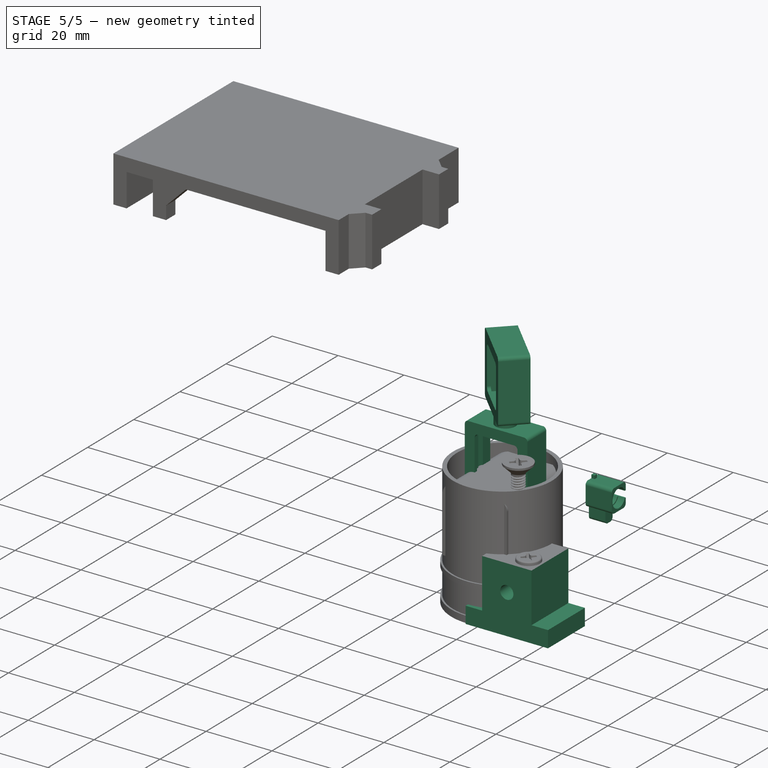
[diagram: stage 5 of 5 — iso view after this stage's code; geometry added in this stage tinted green]
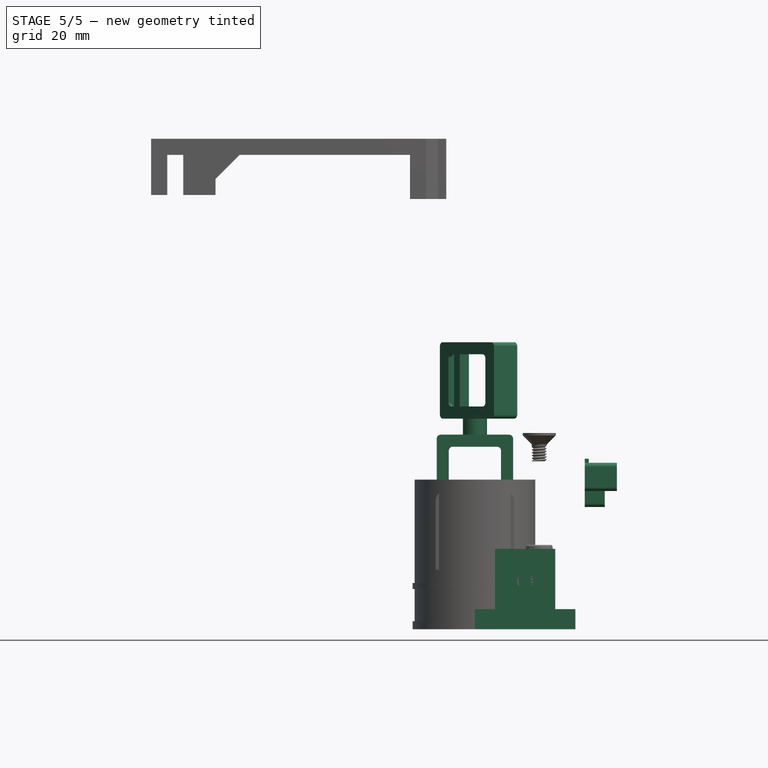
[diagram: stage 5 of 5 — front view after this stage's code; geometry added in this stage tinted green]
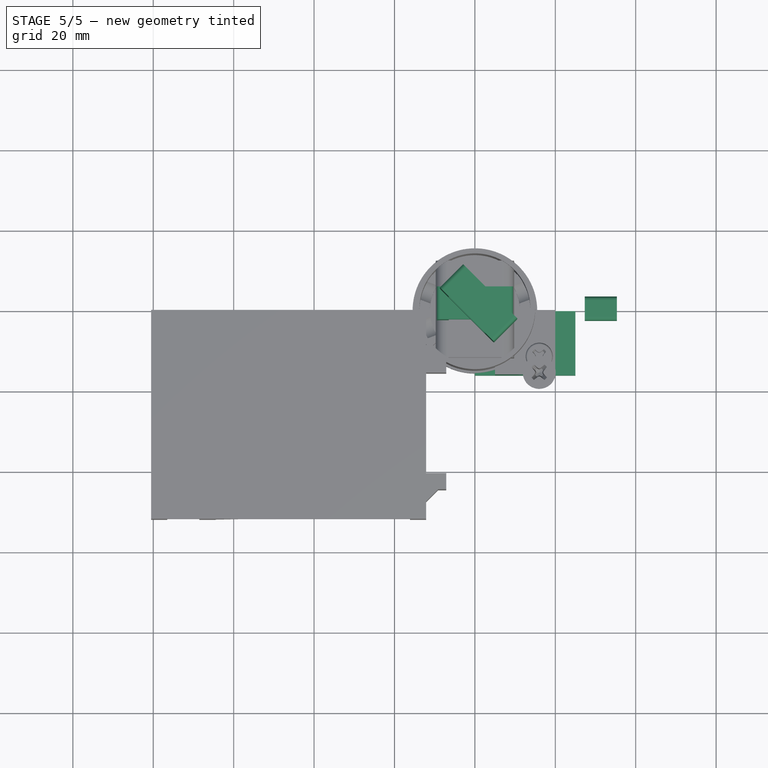
[diagram: stage 5 of 5 — top view after this stage's code; geometry added in this stage tinted green]
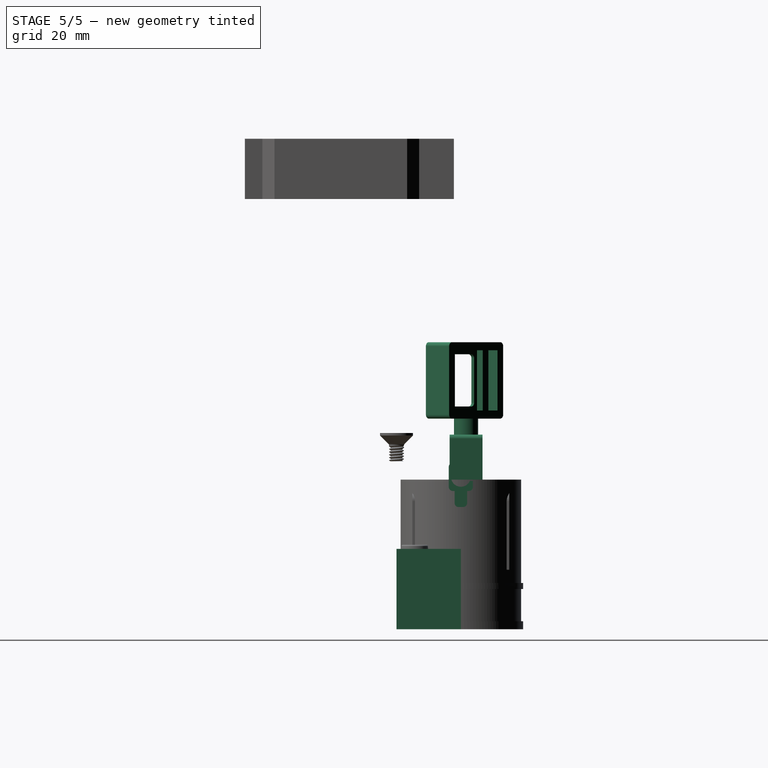
[diagram: stage 5 of 5 — right view after this stage's code; geometry added in this stage tinted green]
FEATURE [PartDesign::Mirrored] Mirror004
  MirrorPlane = -> Sketch029 [V_Axis]
  Refine = true
  Suppressed = false
  TransformMode = 0
FEATURE [PartDesign::MultiTransform] MultiTransform002
  BaseFeature = -> Pad020
  Originals = -> [Pad020,Pad019]
  Refine = true
  Suppressed = false
  TransformMode = 0
  Transformations = -> [Mirror004]
FEATURE [Sketcher::SketchObject] Sketch030
  ArcFitTolerance = 1e-06
  AttachmentSupport = -> [MultiTransform002]
  ExternalTypes = [0]
  FullyConstrained = true
  MakeInternals = false
  MapMode = 5
  Placement = pos=(0,0,15) rot=(0,0,1;0rad)
  sketch-geometry (12):
    g0: LineSegment StartX=-0.707107 StartY=5.29289 StartZ=0 EndX=-5.29289 EndY=0.707107 EndZ=0
    g1: LineSegment StartX=-5.29289 StartY=-0.707107 StartZ=0 EndX=-0.707107 EndY=-5.29289 EndZ=0
    g2: LineSegment StartX=0.707107 StartY=-5.29289 StartZ=0 EndX=5.29289 EndY=-0.707107 EndZ=0
    g3: LineSegment StartX=5.29289 StartY=0.707107 StartZ=0 EndX=0.707107 EndY=5.29289 EndZ=0
    g4: ArcOfCircle CenterX=-3e-16 CenterY=4.58579 CenterZ=0 NormalX=0 NormalY=0 NormalZ=1 AngleXU=0 Radius=1 StartAngle=0.785398 EndAngle=2.35619
    g5: GeomPoint [constr] X=0 Y=6 Z=0
    g6: ArcOfCircle CenterX=-4.58579 CenterY=6e-16 CenterZ=0 NormalX=0 NormalY=0 NormalZ=1 AngleXU=0 Radius=1 StartAngle=2.35619 EndAngle=3.92699
    g7: GeomPoint [constr] X=-6 Y=0 Z=0
    g8: ArcOfCircle CenterX=-3e-16 CenterY=-4.58579 CenterZ=0 NormalX=0 NormalY=0 NormalZ=1 AngleXU=0 Radius=1 StartAngle=3.92699 EndAngle=5.49779
    g9: GeomPoint [constr] X=0 Y=-6 Z=0
    g10: ArcOfCircle CenterX=4.58579 CenterY=-3e-16 CenterZ=0 NormalX=0 NormalY=0 NormalZ=1 AngleXU=0 Radius=1 StartAngle=5.49779 EndAngle=7.06858
    g11: GeomPoint [constr] X=6 Y=0 Z=0
  constraints (26):
    c: PointOnObject(g5,g-2)
    c: PointOnObject(g7,g-1)
    c: Symmetric(g9,g5,g-1)
    c: Symmetric(g7,g11,g-1)
    c: Distance(g-1,g11) = 6
    c: Distance(g9,g-1) = 6
    c: PointOnObject(g5,g0)
    c: PointOnObject(g5,g3)
    c: Tangent(g0,g4) = -1.5708
    c: Tangent(g3,g4) = -1.5708
    c: PointOnObject(g7,g0)
    c: PointOnObject(g7,g1)
    c: Tangent(g0,g6) = -1.5708
    c: Tangent(g1,g6) = -1.5708
    c: PointOnObject(g9,g1)
    c: PointOnObject(g9,g2)
    c: Tangent(g1,g8) = -1.5708
    c: Tangent(g2,g8) = -1.5708
    c: PointOnObject(g11,g2)
    c: PointOnObject(g11,g3)
    c: Tangent(g2,g10) = -1.5708
    c: Tangent(g3,g10) = -1.5708
    c: Distance(g10,g2) = 1
    c: Distance(g1,g6) = 1
    c: Distance(g1,g8) = 1
    c: Distance(g4,g3) = 1
FEATURE [PartDesign::Pocket] Pocket
  BaseFeature = -> MultiTransform002
  Direction = (0,0,-1)
  Length = 5
  Length2 = 5
  Profile = -> Sketch030
  ReferenceAxis = -> Sketch030 [N_Axis]
  Refine = true
  SideType = 0
  Suppressed = false
  Type = 2
  Type2 = 0
FEATURE [App::Point] Origin012  label="Origin016"
  Role = Origin
FEATURE [PartDesign::SubShapeBinder] Binder006
  BindCopyOnChange = 0
  BindMode = 0
  ClaimChildren = false
  Context = -> Body005 [Binder006.]
  Fuse = false
  MakeFace = true
  OffsetFill = false
  OffsetIntersection = false
  OffsetJoinType = 0
  OffsetOpenResult = false
  PartialLoad = false
  Refine = true
  Relative = true
  Support = -> [Body004]
  _Version = 2
FEATURE [Sketcher::SketchObject] Sketch031
  ArcFitTolerance = 1e-06
  AttachmentSupport = -> [Binder006]
  ExternalGeometry = -> [Binder006]
  ExternalTypes = [0,0,0,0,0,0,0,0]
  FullyConstrained = true
  MakeInternals = false
  MapMode = 5
  Placement = pos=(0,0,11) rot=(1,0,0;3.14159rad)
  sketch-geometry (16):
    g0: ArcOfCircle CenterX=-4.58579 CenterY=9e-16 CenterZ=0 NormalX=0 NormalY=0 NormalZ=1 AngleXU=-1.5708 Radius=0.85 StartAngle=3.92699 EndAngle=5.49779
    g1: LineSegment StartX=-5.18683 StartY=-0.601041 StartZ=0 EndX=-0.601041 EndY=-5.18683 EndZ=0
    g2: ArcOfCircle CenterX=-9e-16 CenterY=-4.58579 CenterZ=0 NormalX=0 NormalY=0 NormalZ=1 AngleXU=-1.5708 Radius=0.85 StartAngle=5.49779 EndAngle=7.06858
    g3: LineSegment StartX=0.601041 StartY=-5.18683 StartZ=0 EndX=5.18683 EndY=-0.601041 EndZ=0
    g4: ArcOfCircle CenterX=4.58579 CenterY=-9e-16 CenterZ=0 NormalX=0 NormalY=0 NormalZ=1 AngleXU=-1.5708 Radius=0.85 StartAngle=0.785398 EndAngle=2.35619
    g5: LineSegment StartX=5.18683 StartY=0.601041 StartZ=0 EndX=0.601041 EndY=5.18683 EndZ=0
    g6: ArcOfCircle CenterX=0 CenterY=4.58579 CenterZ=0 NormalX=0 NormalY=0 NormalZ=1 AngleXU=-1.5708 Radius=0.85 StartAngle=2.35619 EndAngle=3.92699
    g7: LineSegment StartX=-0.601041 StartY=5.18683 StartZ=0 EndX=-5.18683 EndY=0.601041 EndZ=0
    g8: LineSegment [constr] StartX=5.18683 StartY=0.601041 StartZ=0 EndX=4.58579 EndY=-7e-16 EndZ=0
    g9: LineSegment [constr] StartX=4.58579 StartY=-7e-16 StartZ=0 EndX=5.18683 EndY=-0.601041 EndZ=0
    g10: LineSegment [constr] StartX=0.601041 StartY=5.18683 StartZ=0 EndX=3e-16 EndY=4.58579 EndZ=0
    g11: LineSegment [constr] StartX=3e-16 StartY=4.58579 StartZ=0 EndX=-0.601041 EndY=5.18683 EndZ=0
    g12: LineSegment [constr] StartX=-5.18683 StartY=0.601041 StartZ=0 EndX=-4.58579 EndY=1.3e-15 EndZ=0
    g13: LineSegment [constr] StartX=-4.58579 StartY=1.3e-15 StartZ=0 EndX=-5.18683 EndY=-0.601041 EndZ=0
    g14: LineSegment [constr] StartX=-0.601041 StartY=-5.18683 StartZ=0 EndX=-1.1e-15 EndY=-4.58579 EndZ=0
    g15: LineSegment [constr] StartX=-1.2e-15 StartY=-4.58579 StartZ=0 EndX=0.601041 EndY=-5.18683 EndZ=0
  constraints (33):
    c: Tangent(g0,g1) = -1.5708
    c: Tangent(g0,g7) = -1.5708
    c: Tangent(g1,g2) = -1.5708
    c: Tangent(g2,g3) = -1.5708
    c: Tangent(g3,g4) = -1.5708
    c: Tangent(g4,g5) = -1.5708
    c: Tangent(g5,g6) = -1.5708
    c: Tangent(g6,g7) = -1.5708
    c: Coincident(g8,g4)
    c: Coincident(g8,g4)
    c: Coincident(g9,g4)
    c: Coincident(g9,g3)
    c: Perpendicular(g8,g9)
    c: Coincident(g10,g5)
    c: Coincident(g10,g6)
    c: Coincident(g11,g6)
    c: Coincident(g11,g6)
    c: Distance(g11,g11) = 0.85
    c: Perpendicular(g10,g11)
    c: Coincident(g12,g0)
    c: Coincident(g12,g0)
    c: Coincident(g13,g0)
    c: Coincident(g13,g0)
    c: Perpendicular(g12,g13)
    c: Distance(g12,g12) = 0.85
    c: Coincident(g14,g1)
    c: Coincident(g14,g2)
    c: Coincident(g15,g2)
    c: Coincident(g15,g2)
    c: Distance(g15,g15) = 0.85
    c: Coincident(g0,g-10)
    c: Coincident(g6,g-5)
    c: Coincident(g4,g-6)
FEATURE [PartDesign::Pad] Pad021
  Direction = (0,0,-1)
  Length = 18.4
  Length2 = 10
  Offset = 16
  Profile = -> Sketch031
  ReferenceAxis = -> Sketch031 [N_Axis]
  Refine = true
  Reversed = true
  SideType = 0
  Suppressed = false
  Type = 0
  Type2 = 0
FEATURE [PartDesign::Body] Body005  label="mirror_base"
  AllowCompound = false
  Group = -> [Sketch031,Binder006,Pad021]
  Origin = -> Origin011
  Placement = pos=(0,0,0) rot=(0,0,1;-1.5708rad)
  Tip = -> Pad021
FEATURE [App::Point] Origin014  label="Origin019"
  Role = Origin
FEATURE [App::Point] Origin020  label="Origin027"
  Role = Origin
FEATURE [Sketcher::SketchObject] Sketch044
  ArcFitTolerance = 1e-06
  AttachmentSupport = -> [Origin019]
  ExternalTypes = [0]
  FullyConstrained = true
  MakeInternals = false
  MapMode = 5
  expr: Constraints[14] = 1 mm + 1.8 mm
  expr: Constraints[8] = VarSet.mirror_width + 2 * 2 mm
  sketch-geometry (7):
    g0: LineSegment StartX=-9.5 StartY=2.8 StartZ=0 EndX=-9.5 EndY=-5.38579 EndZ=0
    g1: LineSegment StartX=-9.5 StartY=-5.38579 StartZ=0 EndX=9.5 EndY=-5.38579 EndZ=0
    g2: LineSegment StartX=9.5 StartY=-5.38579 StartZ=0 EndX=9.5 EndY=2.8 EndZ=0
    g3: LineSegment StartX=9.5 StartY=2.8 StartZ=0 EndX=-9.5 EndY=2.8 EndZ=0
    g4: LineSegment [constr] StartX=-9.5 StartY=-5.38579 StartZ=0 EndX=0 EndY=0 EndZ=0
    g5: LineSegment [constr] StartX=0 StartY=0 StartZ=0 EndX=9.5 EndY=-5.38579 EndZ=0
    g6: GeomPoint [constr] X=0 Y=-5.38579 Z=0
  constraints (18):
    c: Coincident(g0,g1)
    c: Coincident(g1,g2)
    c: Coincident(g2,g3)
    c: Coincident(g3,g0)
    c: Vertical(g0)
    c: Vertical(g2)
    c: Horizontal(g1)
    c: Horizontal(g3)
    c: Distance(g3,g3) = 19
    c: Coincident(g4,g0)
    c: Coincident(g4,g-1)
    c: Coincident(g5,g4)
    c: Coincident(g5,g1)
    c: Equal(g5,g4)
    c: Distance(g4,g3) = 2.8
    c: PointOnObject(g6,g-3)
    c: PointOnObject(g6,g1)
    c: PointOnObject(g6,g-2)
FEATURE [PartDesign::Pad] Pad031
  Direction = (0,0,1)
  Length = 19
  Length2 = 10
  Profile = -> Sketch044
  ReferenceAxis = -> Sketch044 [N_Axis]
  Refine = true
  SideType = 0
  Suppressed = false
  Type = 0
  Type2 = 0
  expr: Length = 2 * 2 mm + VarSet.mirror_width
FEATURE [Sketcher::SketchObject] Sketch045
  ArcFitTolerance = 1e-06
  AttachmentSupport = -> [Pad031]
  ExternalGeometry = -> [Pad031]
  ExternalTypes = [0,0,0,0]
  FullyConstrained = true
  MakeInternals = false
  MapMode = 5
  Placement = pos=(0,-5.38579,0) rot=(1,0,0;1.5708rad)
  sketch-geometry (10):
    g0: LineSegment StartX=-7.5 StartY=17 StartZ=0 EndX=-7.5 EndY=2 EndZ=0
    g1: LineSegment StartX=-7.5 StartY=2 StartZ=0 EndX=7.5 EndY=2 EndZ=0
    g2: LineSegment StartX=7.5 StartY=2 StartZ=0 EndX=7.5 EndY=17 EndZ=0
    g3: LineSegment StartX=7.5 StartY=17 StartZ=0 EndX=-7.5 EndY=17 EndZ=0
    g4: LineSegment StartX=-6.5 StartY=16 StartZ=0 EndX=-6.5 EndY=3 EndZ=0
    g5: LineSegment StartX=-6.5 StartY=3 StartZ=0 EndX=6.5 EndY=3 EndZ=0
    g6: LineSegment StartX=6.5 StartY=3 StartZ=0 EndX=6.5 EndY=16 EndZ=0
    g7: LineSegment StartX=6.5 StartY=16 StartZ=0 EndX=-6.5 EndY=16 EndZ=0
    g8: LineSegment [constr] StartX=9.5 StartY=0 StartZ=0 EndX=-9.5 EndY=19 EndZ=0
    g9: GeomPoint [constr] X=2.45925e-11 Y=9.5 Z=0
  constraints (25):
    c: Coincident(g0,g1)
    c: Coincident(g1,g2)
    c: Coincident(g2,g3)
    c: Coincident(g3,g0)
    c: Vertical(g0)
    c: Vertical(g2)
    c: Horizontal(g1)
    c: Horizontal(g3)
    c: Coincident(g4,g5)
    c: Coincident(g5,g6)
    c: Coincident(g6,g7)
    c: Coincident(g7,g4)
    c: Vertical(g4)
    c: Vertical(g6)
    c: Horizontal(g5)
    c: Horizontal(g7)
    c: Coincident(g8,g-6)
    c: Coincident(g8,g-4)
    c: Symmetric(g8,g8,g9)
    c: Symmetric(g0,g1,g9)
    c: Symmetric(g4,g6,g9)
    c: Distance(g4,g0) = 1
    c: Distance(g-4,g0) = 2
    c: PointOnObject(g0,g8)
    c: PointOnObject(g4,g8)
FEATURE [PartDesign::Pocket] Pocket007
  BaseFeature = -> Pad031
  Direction = (0,1,-2e-16)
  Length = 7.2
  Length2 = 5
  Profile = -> Sketch045 [Edge1,Edge4,Edge3,Edge2]
  ReferenceAxis = -> Sketch045 [N_Axis]
  Refine = true
  SideType = 0
  Suppressed = false
  Type = 0
  Type2 = 0
  expr: Length = 5 mm + 2.2 mm
FEATURE [PartDesign::Pocket] Pocket008
  BaseFeature = -> Pocket007
  Direction = (0,1,-2e-16)
  Length = 5
  Length2 = 5
  Profile = -> Sketch045 [Edge5,Edge8,Edge7,Edge6]
  ReferenceAxis = -> Sketch045 [N_Axis]
  Refine = true
  SideType = 0
  Suppressed = false
  Type = 1
  Type2 = 0
FEATURE [Sketcher::SketchObject] Sketch046
  ArcFitTolerance = 1e-06
  AttachmentSupport = -> [Pocket008]
  ExternalGeometry = -> [Pocket008]
  ExternalTypes = [0]
  FullyConstrained = true
  MakeInternals = false
  MapMode = 5
  Placement = pos=(9.5,0,0) rot=(0.57735,0.57735,0.57735;2.0944rad)
  sketch-geometry (6):
    g0: LineSegment StartX=-0.185786 StartY=17 StartZ=0 EndX=-2.18579 EndY=17 EndZ=0
    g1: LineSegment StartX=-2.18579 StartY=17 StartZ=0 EndX=-2.18579 EndY=2 EndZ=0
    g2: LineSegment StartX=-2.18579 StartY=2 StartZ=0 EndX=-0.185786 EndY=2 EndZ=0
    g3: LineSegment StartX=-0.185786 StartY=17 StartZ=0 EndX=-0.185786 EndY=2 EndZ=0
    g4: LineSegment [constr] StartX=-0.185786 StartY=17 StartZ=0 EndX=1.81421 EndY=17 EndZ=0
    g5: LineSegment [constr] StartX=-0.185786 StartY=2 StartZ=0 EndX=1.81421 EndY=2 EndZ=0
  constraints (16):
    c: Coincident(g0,g1)
    c: Coincident(g1,g2)
    c: Horizontal(g0)
    c: Horizontal(g2)
    c: Vertical(g1)
    c: Distance(g2,g2) = 2
    c: Coincident(g3,g0)
    c: Coincident(g3,g2)
    c: Vertical(g3)
    c: Coincident(g4,g0)
    c: Coincident(g5,g2)
    c: Horizontal(g5)
    c: Horizontal(g4)
    c: Distance(g5,g5) = 2
    c: Coincident(g5,g-3)
    c: Coincident(g4,g-3)
FEATURE [PartDesign::Pocket] Pocket009
  BaseFeature = -> Pocket008
  Direction = (-1,0,0)
  Length = 5
  Length2 = 5
  Profile = -> Sketch046
  ReferenceAxis = -> Sketch046 [N_Axis]
  Refine = true
  SideType = 0
  Suppressed = false
  Type = 2
  Type2 = 0
FEATURE [PartDesign::Fillet] Fillet006
  Base = -> Pocket009 [Edge4,Edge20,Edge19,Edge3,Edge26,Edge27,Edge31,Edge29]
  BaseFeature = -> Pocket009
  Radius = 1
  Refine = true
  SupportTransform = false
  Suppressed = false
  UseAllEdges = false
FEATURE [PartDesign::Body] Body008  label="mirror"
  AllowCompound = false
  Group = -> [Sketch044,Sketch045,Sketch046,Pad031,Pocket007,Pocket008,Pocket009,Fillet006]
  Origin = -> Origin019
  Tip = -> Fillet006
FEATURE [Part::FeaturePython] Clone002  label="mirror_base001"  # Draft clone (typed FeaturePython)
  AttacherType = Attacher::AttachEngine3D
  ForceCompound = false
  Fuse = false
  Objects = -> [Body005]
  Placement = pos=(0,0,0) rot=(0,0,1;-1.5708rad)
  Scale = (1,1,1)
FEATURE [Part::FeaturePython] Clone003  label="mirror001"  # Draft clone (typed FeaturePython)
  AttacherType = Attacher::AttachEngine3D
  AttachmentSupport = -> [Body005]
  ForceCompound = false
  Fuse = false
  MapMode = 5
  Objects = -> [Body008]
  Placement = pos=(0,0,29.4) rot=(0,0,-1;1.5708rad)
  Scale = (1,1,1)
FEATURE [Part::Cylinder] Cylinder
  Angle = 360
  AttacherType = Attacher::AttachEngine3D
  AttachmentSupport = -> [Clone003]
  FirstAngle = 0
  Height = 5
  MapMode = 45
  Placement = pos=(-1.29289,-2.4592e-11,48.4) rot=(0,0,1;0rad)
  Radius = 3
  SecondAngle = 0
FEATURE [Part::FeaturePython] Clone004  label="mirror004"  # Draft clone (typed FeaturePython)
  AttacherType = Attacher::AttachEngine3D
  AttachmentOffset = pos=(0,0,4) rot=(0,0,1;-0.785398rad)
  AttachmentSupport = -> [Clone003]
  ForceCompound = false
  Fuse = false
  MapMode = 5
  Objects = -> [Clone003]
  Placement = pos=(0,0,52.4) rot=(0,0,1;3.92699rad)
  Scale = (1,1,1)
FEATURE [Part::MultiFuse] Fusion  label="mirrors"
  Placement = pos=(0,0,0) rot=(0,0,1;4.71239rad)
  Refine = true
  Shapes = -> [Clone004,Clone002,Clone003,Cylinder]
FEATURE [PartDesign::SubShapeBinder] Binder011
  BindCopyOnChange = 0
  BindMode = 0
  ClaimChildren = false
  Context = -> Body006 [Binder011.]
  Fuse = false
  MakeFace = true
  OffsetFill = false
  OffsetIntersection = false
  OffsetJoinType = 0
  OffsetOpenResult = false
  PartialLoad = false
  Refine = true
  Relative = true
  Support = -> [Body008]
  _Version = 2
FEATURE [Sketcher::SketchObject] Sketch036
  ArcFitTolerance = 1e-06
  AttachmentSupport = -> [Binder011]
  ExternalGeometry = -> [Binder011]
  ExternalTypes = [0,0,0,0]
  FullyConstrained = true
  MakeInternals = false
  MapMode = 5
  Placement = pos=(-7.5,0,0) rot=(0.57735,0.57735,0.57735;2.0944rad)
  sketch-geometry (6):
    g0: LineSegment StartX=-1.98579 StartY=16.8 StartZ=0 EndX=-1.98579 EndY=2.2 EndZ=0
    g1: LineSegment StartX=-1.98579 StartY=2.2 StartZ=0 EndX=-0.385786 EndY=2.2 EndZ=0
    g2: LineSegment StartX=-0.385786 StartY=2.2 StartZ=0 EndX=-0.385786 EndY=16.8 EndZ=0
    g3: LineSegment StartX=-0.385786 StartY=16.8 StartZ=0 EndX=-1.98579 EndY=16.8 EndZ=0
    g4: LineSegment [constr] StartX=-0.185786 StartY=2 StartZ=0 EndX=-2.18579 EndY=17 EndZ=0
    g5: GeomPoint [constr] X=-1.18579 Y=9.5 Z=0
  constraints (14):
    c: Coincident(g0,g1)
    c: Coincident(g1,g2)
    c: Coincident(g2,g3)
    c: Coincident(g3,g0)
    c: Vertical(g0)
    c: Vertical(g2)
    c: Horizontal(g1)
    c: Horizontal(g3)
    c: Coincident(g4,g-6)
    c: Coincident(g4,g-4)
    c: Symmetric(g4,g4,g5)
    c: Symmetric(g2,g0,g5)
    c: Distance(g-3,g3) = 0.2
    c: Distance(g-5,g2) = 0.2
FEATURE [PartDesign::Pad] Pad024
  Direction = (1,0,0)
  Length = 10
  Length2 = 10
  Offset = -2
  Profile = -> Sketch036
  ReferenceAxis = -> Sketch036 [N_Axis]
  Refine = true
  SideType = 0
  Suppressed = false
  Type = 3
  Type2 = 0
  UpToFace = -> Binder011 [Face6]
FEATURE [Sketcher::SketchObject] Sketch037
  ArcFitTolerance = 1e-06
  AttachmentSupport = -> [Pad024]
  ExternalGeometry = -> [Pad024]
  ExternalTypes = [0]
  FullyConstrained = true
  MakeInternals = false
  MapMode = 5
  Placement = pos=(11.5,0,0) rot=(0.57735,0.57735,0.57735;2.0944rad)
  sketch-geometry (6):
    g0: LineSegment StartX=-3.48579 StartY=18.3 StartZ=0 EndX=-3.48579 EndY=0.7 EndZ=0
    g1: LineSegment StartX=-3.48579 StartY=0.7 StartZ=0 EndX=1.11421 EndY=0.7 EndZ=0
    g2: LineSegment StartX=1.11421 StartY=0.7 StartZ=0 EndX=1.11421 EndY=18.3 EndZ=0
    g3: LineSegment StartX=1.11421 StartY=18.3 StartZ=0 EndX=-3.48579 EndY=18.3 EndZ=0
    g4: LineSegment [constr] StartX=-1.98579 StartY=16.8 StartZ=0 EndX=-0.385786 EndY=2.2 EndZ=0
    g5: GeomPoint [constr] X=-1.18579 Y=9.5 Z=0
  constraints (14):
    c: Coincident(g0,g1)
    c: Coincident(g1,g2)
    c: Coincident(g2,g3)
    c: Coincident(g3,g0)
    c: Vertical(g0)
    c: Vertical(g2)
    c: Horizontal(g1)
    c: Horizontal(g3)
    c: Coincident(g4,g-6)
    c: Coincident(g4,g-4)
    c: Symmetric(g4,g4,g5)
    c: Symmetric(g0,g2,g5)
    c: Distance(g3,g-5) = 1.5
    c: Distance(g2,g-4) = 1.5
FEATURE [PartDesign::Pad] Pad025
  BaseFeature = -> Pad024
  Direction = (1,0,0)
  Length = 2
  Length2 = 10
  Profile = -> Sketch037
  ReferenceAxis = -> Sketch037 [N_Axis]
  Refine = true
  SideType = 0
  Suppressed = false
  Type = 0
  Type2 = 0
FEATURE [PartDesign::Fillet] Fillet003
  Base = -> Pad025 [Edge17,Edge20,Edge18,Edge22]
  BaseFeature = -> Pad025
  Radius = 1
  Refine = true
  SupportTransform = false
  Suppressed = false
  UseAllEdges = false
FEATURE [PartDesign::Body] Body006  label="cover"
  AllowCompound = false
  Group = -> [Binder011,Sketch036,Pad024,Sketch037,Pad025,Fillet003]
  Origin = -> Origin013
  Tip = -> Fillet003
FEATURE [App::Point] Origin024  label="Origin032"
  Role = Origin
FEATURE [PartDesign::SubShapeBinder] Binder015
  BindCopyOnChange = 0
  BindMode = 0
  ClaimChildren = false
  Context = -> Body010 [Binder015.]
  Fuse = false
  MakeFace = true
  OffsetFill = false
  OffsetIntersection = false
  OffsetJoinType = 0
  OffsetOpenResult = false
  PartialLoad = false
  Refine = true
  Relative = true
  _Version = 2
FEATURE [Sketcher::SketchObject] Sketch051
  ArcFitTolerance = 1e-06
  AttachmentSupport = -> [Binder015]
  ExternalGeometry = -> [Binder015]
  ExternalTypes = [0,0,0,0]
  FullyConstrained = true
  MakeInternals = false
  MapMode = 5
  Placement = pos=(0,0,30.4) rot=(1,0,0;3.14159rad)
  sketch-geometry (5):
    g0: LineSegment StartX=27.3142 StartY=-1.56045 StartZ=0 EndX=27.3142 EndY=1.56045 EndZ=0
    g1: LineSegment StartX=27.3142 StartY=1.56045 StartZ=0 EndX=32.3142 EndY=1.56045 EndZ=0
    g2: LineSegment StartX=32.3142 StartY=-1.56045 StartZ=0 EndX=27.3142 EndY=-1.56045 EndZ=0
    g3: LineSegment [constr] StartX=27.3142 StartY=-1.56045 StartZ=0 EndX=32.3142 EndY=1.56045 EndZ=0
    g4: LineSegment StartX=32.3142 StartY=1.56045 StartZ=0 EndX=32.3142 EndY=-1.56045 EndZ=0
  constraints (11):
    c: Coincident(g0,g1)
    c: Coincident(g2,g0)
    c: Horizontal(g1)
    c: Coincident(g3,g-4)
    c: Coincident(g3,g-6)
    c: Coincident(g4,g1)
    c: Coincident(g4,g2)
    c: Vertical(g4)
    c: Coincident(g0,g-6)
    c: Coincident(g0,g3)
    c: Coincident(g2,g-5)
FEATURE [PartDesign::Pad] Pad036
  Direction = (0,0,-1)
  Length = 10
  Length2 = 10
  Profile = -> Sketch051
  ReferenceAxis = -> Sketch051 [N_Axis]
  Refine = true
  SideType = 0
  Suppressed = false
  Type = 3
  Type2 = 0
  UpToFace = -> Binder015 [Face15]
FEATURE [Sketcher::SketchObject] Sketch052
  ArcFitTolerance = 1e-06
  AttachmentSupport = -> [Pad036]
  ExternalGeometry = -> [Pad036]
  ExternalTypes = [0,0]
  FullyConstrained = true
  MakeInternals = false
  MapMode = 5
  Placement = pos=(-1.03e-14,0,34.4) rot=(0,0,1;0rad)
  sketch-geometry (6):
    g0: LineSegment StartX=27.3142 StartY=3 StartZ=0 EndX=27.3142 EndY=-3 EndZ=0
    g1: LineSegment StartX=27.3142 StartY=-3 StartZ=0 EndX=35.3142 EndY=-3 EndZ=0
    g2: LineSegment StartX=35.3142 StartY=-3 StartZ=0 EndX=35.3142 EndY=3 EndZ=0
    g3: LineSegment StartX=35.3142 StartY=3 StartZ=0 EndX=27.3142 EndY=3 EndZ=0
    g4: LineSegment [constr] StartX=27.3142 StartY=1.56045 StartZ=0 EndX=27.3142 EndY=3 EndZ=0
    g5: LineSegment [constr] StartX=27.3142 StartY=-1.56045 StartZ=0 EndX=27.3142 EndY=-3 EndZ=0
  constraints (16):
    c: Coincident(g0,g1)
    c: Coincident(g1,g2)
    c: Coincident(g2,g3)
    c: Coincident(g3,g0)
    c: Vertical(g0)
    c: Vertical(g2)
    c: Horizontal(g1)
    c: Horizontal(g3)
    c: PointOnObject(g-3,g0)
    c: Coincident(g4,g-3)
    c: Coincident(g4,g0)
    c: Coincident(g5,g-3)
    c: Coincident(g5,g0)
    c: Equal(g4,g5)
    c: Distance(g0,g0) = 6
    c: DistanceX(g3,g3) = 8
FEATURE [PartDesign::Pad] Pad037
  BaseFeature = -> Pad036
  Direction = (0,0,1)
  Length = 7
  Length2 = 10
  Profile = -> Sketch052
  ReferenceAxis = -> Sketch052 [N_Axis]
  Refine = true
  SideType = 0
  Suppressed = false
  Type = 0
  Type2 = 0
FEATURE [Sketcher::SketchObject] Sketch053
  ArcFitTolerance = 1e-06
  AttachmentSupport = -> [Pad037]
  ExternalGeometry = -> [Pad037]
  ExternalTypes = [0,0,0,0]
  FullyConstrained = true
  MakeInternals = false
  MapMode = 5
  Placement = pos=(35.3142,0,0) rot=(0.57735,0.57735,0.57735;2.0944rad)
  sketch-geometry (3):
    g0: LineSegment [constr] StartX=3 StartY=34.4 StartZ=0 EndX=-3 EndY=41.4 EndZ=0
    g1: GeomPoint [constr] X=1.99296e-11 Y=37.9 Z=0
    g2: Circle CenterX=1.99296e-11 CenterY=37.9 CenterZ=0 NormalX=0 NormalY=0 NormalZ=1 AngleXU=0 Radius=2.775
  constraints (5):
    c: Coincident(g0,g-5)
    c: Coincident(g0,g-6)
    c: Symmetric(g0,g0,g1)
    c: Diameter(g2) = 5.55
    c: Coincident(g2,g1)
FEATURE [PartDesign::Pocket] Pocket010
  BaseFeature = -> Pad037
  Direction = (-1,0,0)
  Length = 2
  Length2 = 5
  Profile = -> Sketch053
  ReferenceAxis = -> Sketch053 [N_Axis]
  Refine = true
  SideType = 0
  Suppressed = false
  Type = 0
  Type2 = 0
FEATURE [Sketcher::SketchObject] Sketch054
  ArcFitTolerance = 1e-06
  AttachmentSupport = -> [Pocket010]
  ExternalGeometry = -> [Pocket010]
  ExternalTypes = [0]
  FullyConstrained = true
  MakeInternals = false
  MapMode = 5
  Placement = pos=(33.3142,0,0) rot=(0.57735,0.57735,0.57735;2.0944rad)
  sketch-geometry (1):
    g0: Circle CenterX=0 CenterY=37.9 CenterZ=0 NormalX=0 NormalY=0 NormalZ=1 AngleXU=0 Radius=2.45
  constraints (2):
    c: Diameter(g0) = 4.9
    c: Coincident(g0,g-3)
FEATURE [PartDesign::Pocket] Pocket011
  BaseFeature = -> Pocket010
  Direction = (-1,0,0)
  Length = 5
  Length2 = 5
  Profile = -> Sketch054
  ReferenceAxis = -> Sketch054 [N_Axis]
  Refine = true
  SideType = 0
  Suppressed = false
  Type = 1
  Type2 = 0
FEATURE [PartDesign::Fillet] Fillet008
  Base = -> Pocket011 [Edge22,Edge24,Edge20,Edge18,Edge4,Edge2]
  BaseFeature = -> Pocket011
  Radius = 1
  Refine = true
  SupportTransform = false
  Suppressed = false
  UseAllEdges = false
FEATURE [App::Point] Origin026  label="Origin034"
  Role = Origin
FEATURE [PartDesign::FeatureBase] Clone
  BaseFeature = -> Pad037
  Suppressed = false
FEATURE [Sketcher::SketchObject] Sketch055
  ArcFitTolerance = 1e-06
  AttachmentSupport = -> [Clone]
  ExternalGeometry = -> [Clone]
  ExternalTypes = [0,0,0,0]
  FullyConstrained = true
  MakeInternals = false
  MapMode = 5
  Placement = pos=(35.3142,0,0) rot=(0.57735,0.57735,0.57735;2.0944rad)
  sketch-geometry (3):
    g0: LineSegment [constr] StartX=3 StartY=34.4 StartZ=0 EndX=-3 EndY=41.4 EndZ=0
    g1: Circle CenterX=1.99299e-11 CenterY=37.9 CenterZ=0 NormalX=0 NormalY=0 NormalZ=1 AngleXU=0 Radius=2.9
    g2: GeomPoint X=1.99299e-11 Y=37.9 Z=0
  constraints (5):
    c: Coincident(g0,g-6)
    c: Coincident(g0,g-4)
    c: Diameter(g1) = 5.8
    c: Symmetric(g0,g0,g2)
    c: Coincident(g1,g2)
FEATURE [PartDesign::Pocket] Pocket012
  BaseFeature = -> Clone
  Direction = (-1,0,0)
  Length = 2
  Length2 = 5
  Profile = -> Sketch055
  ReferenceAxis = -> Sketch055 [N_Axis]
  Refine = true
  SideType = 0
  Suppressed = false
  Type = 0
  Type2 = 0
FEATURE [Sketcher::SketchObject] Sketch056
  ArcFitTolerance = 1e-06
  AttachmentSupport = -> [Pocket012]
  ExternalGeometry = -> [Pocket012]
  ExternalTypes = [0]
  FullyConstrained = true
  MakeInternals = false
  MapMode = 5
  Placement = pos=(33.3142,0,0) rot=(0.57735,0.57735,0.57735;2.0944rad)
  sketch-geometry (1):
    g0: Circle CenterX=0 CenterY=37.9 CenterZ=0 NormalX=0 NormalY=0 NormalZ=1 AngleXU=0 Radius=2.5
  constraints (2):
    c: Diameter(g0) = 5
    c: Coincident(g0,g-3)
FEATURE [PartDesign::Pocket] Pocket013
  BaseFeature = -> Pocket012
  Direction = (-1,0,0)
  Length = 5
  Length2 = 5
  Profile = -> Sketch056
  ReferenceAxis = -> Sketch056 [N_Axis]
  Refine = true
  SideType = 0
  Suppressed = false
  Type = 1
  Type2 = 0
FEATURE [PartDesign::Fillet] Fillet009
  Base = -> Pocket013 [Edge22,Edge24,Edge18,Edge20,Edge2,Edge4]
  BaseFeature = -> Pocket013
  Radius = 1
  Refine = true
  SupportTransform = false
  Suppressed = false
  UseAllEdges = false
FEATURE [Sketcher::SketchObject] Sketch057
  ArcFitTolerance = 1e-06
  AttachmentSupport = -> [Pocket011]
  ExternalGeometry = -> [Pocket011]
  ExternalTypes = [0,0,0]
  FullyConstrained = false
  MakeInternals = false
  MapMode = 5
  Placement = pos=(35.3142,0,0) rot=(0.57735,0.57735,0.57735;2.0944rad)
  sketch-geometry (10):
    g0: LineSegment [constr] StartX=3 StartY=34.4 StartZ=0 EndX=-3 EndY=41.4 EndZ=0
    g1: GeomPoint [constr] X=1.99294e-11 Y=37.9 Z=0
    g2: LineSegment StartX=4.04081 StartY=38.9 StartZ=0 EndX=1.95919 EndY=38.9 EndZ=0
    g3: LineSegment StartX=1.95919 StartY=38.9 StartZ=0 EndX=1.95919 EndY=36.9 EndZ=0
    g4: LineSegment StartX=1.95919 StartY=36.9 StartZ=0 EndX=4.04081 EndY=36.9 EndZ=0
    g5: LineSegment StartX=4.04081 StartY=36.9 StartZ=0 EndX=4.04081 EndY=38.9 EndZ=0
    g6: GeomPoint X=1.95919 Y=37.9 Z=0
    g7: LineSegment [constr] StartX=1.95919 StartY=37.9 StartZ=0 EndX=1.99294e-11 EndY=37.9 EndZ=0
    g8: LineSegment [constr] StartX=4.04081 StartY=38.9 StartZ=0 EndX=3 EndY=41.4 EndZ=0
    g9: LineSegment [constr] StartX=1.95919 StartY=38.9 StartZ=0 EndX=3 EndY=41.4 EndZ=0
  constraints (21):
    c: Coincident(g0,g-4)
    c: Coincident(g0,g-3)
    c: Symmetric(g0,g0,g1)
    c: Coincident(g2,g3)
    c: Coincident(g3,g4)
    c: Coincident(g4,g5)
    c: Coincident(g5,g2)
    c: Horizontal(g2)
    c: Horizontal(g4)
    c: Vertical(g3)
    c: Vertical(g5)
    c: Distance(g2,g4) = 2
    c: Symmetric(g3,g3,g6)
    c: Coincident(g7,g6)
    c: Coincident(g7,g1)
    c: Horizontal(g7)
    c: Coincident(g8,g2)
    c: Coincident(g8,g-5)
    c: Coincident(g9,g2)
    c: Coincident(g9,g8)
    c: Equal(g8,g9)
FEATURE [PartDesign::Pocket] Pocket014
  BaseFeature = -> Fillet008
  Direction = (-1,0,0)
  Length = 5
  Length2 = 5
  Profile = -> Sketch057
  ReferenceAxis = -> Sketch057 [N_Axis]
  Refine = true
  SideType = 0
  Suppressed = false
  Type = 1
  Type2 = 0
FEATURE [PartDesign::Body] Body010  label="rgb_holder"
  AllowCompound = false
  Group = -> [Binder015,Sketch051,Pad036,Sketch052,Pad037,Sketch053,Pocket010,Sketch054,Pocket011,Fillet008,Sketch057,Pocket014]
  Origin = -> Origin023
  Tip = -> Pocket014
FEATURE [Sketcher::SketchObject] Sketch058
  ArcFitTolerance = 1e-06
  AttachmentSupport = -> [Pocket013]
  ExternalGeometry = -> [Pocket013]
  ExternalTypes = [0,0,0,0]
  FullyConstrained = false
  MakeInternals = false
  MapMode = 5
  Placement = pos=(35.3142,0,0) rot=(0.57735,0.57735,0.57735;2.0944rad)
  sketch-geometry (8):
    g0: LineSegment [constr] StartX=3 StartY=34.4 StartZ=0 EndX=-3 EndY=41.4 EndZ=0
    g1: GeomPoint [constr] X=1.99295e-11 Y=37.9 Z=0
    g2: GeomPoint [constr] X=3 Y=37.9 Z=0
    g3: LineSegment StartX=1.81397 StartY=36.9 StartZ=0 EndX=4.18603 EndY=36.9 EndZ=0
    g4: LineSegment StartX=4.18603 StartY=36.9 StartZ=0 EndX=4.18603 EndY=38.9 EndZ=0
    g5: LineSegment StartX=4.18603 StartY=38.9 StartZ=0 EndX=1.81397 EndY=38.9 EndZ=0
    g6: LineSegment StartX=1.81397 StartY=38.9 StartZ=0 EndX=1.81397 EndY=36.9 EndZ=0
    g7: GeomPoint [constr] X=3 Y=37.9 Z=0
  constraints (15):
    c: Coincident(g0,g-6)
    c: Coincident(g0,g-4)
    c: Symmetric(g0,g0,g1)
    c: Symmetric(g-6,g-6,g2)
    c: Coincident(g3,g4)
    c: Coincident(g4,g5)
    c: Coincident(g5,g6)
    c: Coincident(g6,g3)
    c: Horizontal(g3)
    c: Horizontal(g5)
    c: Vertical(g4)
    c: Vertical(g6)
    c: Symmetric(g5,g3,g7)
    c: Distance(g3,g5) = 2
    c: Coincident(g7,g2)
FEATURE [PartDesign::Pocket] Pocket015
  BaseFeature = -> Fillet009
  Direction = (-1,0,0)
  Length = 5
  Length2 = 5
  Profile = -> Sketch058
  ReferenceAxis = -> Sketch058 [N_Axis]
  Refine = true
  SideType = 0
  Suppressed = false
  Type = 1
  Type2 = 0
FEATURE [Sketcher::SketchObject] Sketch059
  ArcFitTolerance = 1e-06
  AttachmentSupport = -> [Pocket015]
  ExternalGeometry = -> [Pocket015]
  ExternalTypes = [0,0,0,0]
  FullyConstrained = true
  MakeInternals = false
  MapMode = 5
  Placement = pos=(0,0,41.4) rot=(0,0,1;0rad)
  sketch-geometry (7):
    g0: LineSegment StartX=27.3142 StartY=-0.5 StartZ=0 EndX=27.3142 EndY=0.5 EndZ=0
    g1: LineSegment StartX=27.3142 StartY=0.5 StartZ=0 EndX=28.3142 EndY=0.5 EndZ=0
    g2: LineSegment StartX=28.3142 StartY=0.5 StartZ=0 EndX=28.3142 EndY=-0.5 EndZ=0
    g3: LineSegment StartX=28.3142 StartY=-0.5 StartZ=0 EndX=27.3142 EndY=-0.5 EndZ=0
    g4: LineSegment [constr] StartX=35.3142 StartY=-2 StartZ=0 EndX=27.3142 EndY=2 EndZ=0
    g5: LineSegment [constr] StartX=27.3142 StartY=2 StartZ=0 EndX=27.3142 EndY=-2 EndZ=0
    g6: GeomPoint [constr] X=27.3142 Y=3.08695e-11 Z=0
  constraints (16):
    c: Coincident(g0,g1)
    c: Coincident(g1,g2)
    c: Coincident(g2,g3)
    c: Coincident(g3,g0)
    c: Vertical(g0)
    c: Vertical(g2)
    c: Horizontal(g1)
    c: Horizontal(g3)
    c: Coincident(g4,g-6)
    c: Coincident(g4,g-5)
    c: DistanceX(g1,g1) = 1
    c: DistanceY(g2,g2) = 1
    c: Coincident(g5,g4)
    c: Coincident(g5,g-6)
    c: Symmetric(g5,g5,g6)
    c: Symmetric(g0,g0,g6)
FEATURE [PartDesign::Pad] Pad038
  BaseFeature = -> Pocket015
  Direction = (0,0,1)
  Length = 1
  Length2 = 10
  Profile = -> Sketch059
  ReferenceAxis = -> Sketch059 [N_Axis]
  Refine = true
  SideType = 0
  Suppressed = false
  Type = 0
  Type2 = 0
FEATURE [PartDesign::Body] Body011  label="photodiode_holder"
  AllowCompound = false
  Group = -> [Clone,Sketch055,Pocket012,Sketch056,Pocket013,Fillet009,Sketch058,Pocket015,Sketch059,Pad038]
  Origin = -> Origin025
  Tip = -> Pad038
FEATURE [App::Point] Origin028  label="Origin037"
  Role = Origin
FEATURE [App::Point] Origin030  label="Origin039"
  Role = Origin
FEATURE [Sketcher::SketchObject] Sketch063
  ArcFitTolerance = 1e-06
  AttachmentSupport = -> [Origin029]
  ExternalTypes = [0]
  FullyConstrained = true
  MakeInternals = false
  MapMode = 5
  Placement = pos=(0,0,0) rot=(1,0,0;1.5708rad)
  sketch-geometry (4):
    g0: LineSegment StartX=0 StartY=0 StartZ=0 EndX=25 EndY=0 EndZ=0
    g1: LineSegment StartX=25 StartY=0 StartZ=0 EndX=25 EndY=20 EndZ=0
    g2: LineSegment StartX=25 StartY=20 StartZ=0 EndX=0 EndY=20 EndZ=0
    g3: LineSegment StartX=0 StartY=20 StartZ=0 EndX=0 EndY=0 EndZ=0
  constraints (11):
    c: Coincident(g0,g1)
    c: Coincident(g1,g2)
    c: Coincident(g2,g3)
    c: Coincident(g3,g0)
    c: Horizontal(g0)
    c: Horizontal(g2)
    c: Vertical(g1)
    c: Vertical(g3)
    c: Distance(g1,g3) = 25
    c: Distance(g0,g2) = 20
    c: Coincident(g0,g-1)
FEATURE [PartDesign::Pad] Pad042
  Direction = (0,-1,2e-16)
  Length = 16
  Length2 = 10
  Profile = -> Sketch063
  ReferenceAxis = -> Sketch063 [N_Axis]
  Refine = true
  SideType = 0
  Suppressed = false
  Type = 0
  Type2 = 0
FEATURE [Sketcher::SketchObject] Sketch064
  ArcFitTolerance = 1e-06
  AttachmentSupport = -> [Pad042]
  ExternalGeometry = -> [Pad042]
  ExternalTypes = [0]
  FullyConstrained = true
  MakeInternals = false
  MapMode = 5
  Placement = pos=(0,-16,0) rot=(1,0,0;1.5708rad)
  sketch-geometry (5):
    g0: GeomPoint [constr] X=12.5 Y=3.6e-15 Z=0
    g1: LineSegment [constr] StartX=12.5 StartY=3.6e-15 StartZ=0 EndX=12.5 EndY=10 EndZ=0
    g2: Circle CenterX=12.5 CenterY=12 CenterZ=0 NormalX=0 NormalY=0 NormalZ=1 AngleXU=0 Radius=2
    g3: LineSegment [constr] StartX=12.5 StartY=10 StartZ=0 EndX=12.5 EndY=12 EndZ=0
    g4: GeomPoint [constr] X=12.5 Y=12 Z=0
  constraints (10):
    c: Symmetric(g-3,g-3,g0)
    c: Distance(g1) = 10
    c: Angle(g-1,g1) = 1.5708
    c: Coincident(g1,g0)
    c: Diameter(g2) = 4
    c: PointOnObject(g1,g2)
    c: Coincident(g3,g1)
    c: Coincident(g3,g2)
    c: Vertical(g3)
    c: Coincident(g4,g2)
FEATURE [PartDesign::Pocket] Pocket016
  BaseFeature = -> Pad042
  Direction = (0,1,-2e-16)
  Length = 5
  Length2 = 5
  Profile = -> Sketch064
  ReferenceAxis = -> Sketch064 [N_Axis]
  Refine = true
  SideType = 0
  Suppressed = false
  Type = 0
  Type2 = 0
FEATURE [Sketcher::SketchObject] Sketch065
  ArcFitTolerance = 1e-06
  AttachmentSupport = -> [Pocket016]
  ExternalGeometry = -> [Pocket016]
  ExternalTypes = [0,0,0]
  FullyConstrained = true
  MakeInternals = false
  MapMode = 5
  Placement = pos=(0,-16,0) rot=(1,0,0;1.5708rad)
  sketch-geometry (12):
    g0: LineSegment [constr] StartX=25 StartY=9e-16 StartZ=0 EndX=20 EndY=9e-16 EndZ=0
    g1: LineSegment [constr] StartX=20 StartY=9e-16 StartZ=0 EndX=20 EndY=5 EndZ=0
    g2: LineSegment StartX=20 StartY=5 StartZ=0 EndX=25 EndY=5 EndZ=0
    g3: LineSegment StartX=25 StartY=5 StartZ=0 EndX=25 EndY=20 EndZ=0
    g4: LineSegment StartX=25 StartY=20 StartZ=0 EndX=20 EndY=20 EndZ=0
    g5: LineSegment StartX=20 StartY=20 StartZ=0 EndX=20 EndY=5 EndZ=0
    g6: LineSegment [constr] StartX=0 StartY=9e-16 StartZ=0 EndX=5 EndY=9e-16 EndZ=0
    g7: LineSegment [constr] StartX=5 StartY=9e-16 StartZ=0 EndX=5 EndY=5 EndZ=0
    g8: LineSegment StartX=5 StartY=5 StartZ=0 EndX=5 EndY=20 EndZ=0
    g9: LineSegment StartX=5 StartY=20 StartZ=0 EndX=0 EndY=20 EndZ=0
    g10: LineSegment StartX=0 StartY=20 StartZ=0 EndX=0 EndY=5 EndZ=0
    g11: LineSegment StartX=0 StartY=5 StartZ=0 EndX=5 EndY=5 EndZ=0
  constraints (32):
    c: Distance(g0) = 5
    c: Coincident(g0,g-5)
    c: PointOnObject(g0,g-4)
    c: Distance(g1) = 5
    c: Angle(g-1,g1) = 1.5708
    c: Coincident(g1,g0)
    c: Coincident(g2,g3)
    c: Coincident(g3,g4)
    c: Coincident(g4,g5)
    c: Coincident(g5,g2)
    c: Horizontal(g2)
    c: Horizontal(g4)
    c: Vertical(g3)
    c: Vertical(g5)
    c: Coincident(g2,g1)
    c: Coincident(g3,g-5)
    c: Distance(g6) = 5
    c: Coincident(g6,g-4)
    c: PointOnObject(g6,g-4)
    c: Distance(g7) = 5
    c: Angle(g-1,g7) = 1.5708
    c: Coincident(g7,g6)
    c: Coincident(g8,g9)
    c: Coincident(g9,g10)
    c: Coincident(g10,g11)
    c: Coincident(g11,g8)
    c: Vertical(g8)
    c: Vertical(g10)
    c: Horizontal(g9)
    c: Horizontal(g11)
    c: Coincident(g8,g7)
    c: Coincident(g9,g-3)
FEATURE [PartDesign::Pocket] Pocket017
  BaseFeature = -> Pocket016
  Direction = (0,1,-2e-16)
  Length = 5
  Length2 = 5
  Profile = -> Sketch065
  ReferenceAxis = -> Sketch065 [N_Axis]
  Refine = true
  SideType = 0
  Suppressed = false
  Type = 1
  Type2 = 0
FEATURE [App::Point] Origin032  label="Origin042"
  Role = Origin
FEATURE [PartDesign::FeatureBase] Clone005
  BaseFeature = -> Fusion
  Placement = pos=(0,0,0) rot=(0,0,1;4.71239rad)
  Suppressed = false
FEATURE [Sketcher::SketchObject] Sketch070
  ArcFitTolerance = 1e-06
  AttachmentSupport = -> [Pocket]
  ExternalGeometry = -> [Pocket]
  ExternalTypes = [0,0,0,0,0,0,0,0]
  FullyConstrained = true
  MakeInternals = false
  MapMode = 5
  Placement = pos=(0,0,15) rot=(0,0,1;0rad)
  sketch-geometry (20):
    g0: ArcOfCircle CenterX=-4.58579 CenterY=7e-16 CenterZ=0 NormalX=0 NormalY=0 NormalZ=1 AngleXU=0 Radius=2 StartAngle=2.35619 EndAngle=3.92699
    g1: LineSegment StartX=-6 StartY=-1.41421 StartZ=0 EndX=-1.41421 EndY=-6 EndZ=0
    g2: ArcOfCircle CenterX=-6e-16 CenterY=-4.58579 CenterZ=0 NormalX=0 NormalY=0 NormalZ=1 AngleXU=0 Radius=2 StartAngle=3.92699 EndAngle=5.49779
    g3: LineSegment StartX=1.41421 StartY=-6 StartZ=0 EndX=6 EndY=-1.41421 EndZ=0
    g4: ArcOfCircle CenterX=4.58579 CenterY=0 CenterZ=0 NormalX=0 NormalY=0 NormalZ=1 AngleXU=0 Radius=2 StartAngle=5.49779 EndAngle=7.06858
    g5: LineSegment StartX=6 StartY=1.41421 StartZ=0 EndX=1.41421 EndY=6 EndZ=0
    g6: ArcOfCircle CenterX=-2.1e-15 CenterY=4.58579 CenterZ=0 NormalX=0 NormalY=0 NormalZ=1 AngleXU=0 Radius=2 StartAngle=0.785398 EndAngle=2.35619
    g7: LineSegment StartX=-1.41421 StartY=6 StartZ=0 EndX=-6 EndY=1.41421 EndZ=0
    g8: LineSegment [constr] StartX=-0.707107 StartY=5.29289 StartZ=0 EndX=-2.1e-15 EndY=4.58579 EndZ=0
    g9: LineSegment [constr] StartX=-2.1e-15 StartY=4.58579 StartZ=0 EndX=0.707107 EndY=5.29289 EndZ=0
    g10: LineSegment [constr] StartX=5.29289 StartY=0.707107 StartZ=0 EndX=4.58579 EndY=0 EndZ=0
    g11: LineSegment [constr] StartX=5.29289 StartY=-0.707107 StartZ=0 EndX=4.58579 EndY=0 EndZ=0
    g12: LineSegment [constr] StartX=0.707107 StartY=-5.29289 StartZ=0 EndX=-6e-16 EndY=-4.58579 EndZ=0
    g13: LineSegment [constr] StartX=-6e-16 StartY=-4.58579 StartZ=0 EndX=-0.707107 EndY=-5.29289 EndZ=0
    g14: LineSegment [constr] StartX=-5.29289 StartY=-0.707107 StartZ=0 EndX=-4.58579 EndY=7e-16 EndZ=0
    g15: LineSegment [constr] StartX=-4.58579 StartY=7e-16 StartZ=0 EndX=-5.29289 EndY=0.707107 EndZ=0
    g16: LineSegment [constr] StartX=5.29289 StartY=0.707107 StartZ=0 EndX=6 EndY=1.41421 EndZ=0
    g17: LineSegment [constr] StartX=5.29289 StartY=-0.707107 StartZ=0 EndX=6 EndY=-1.41421 EndZ=0
    g18: LineSegment [constr] StartX=0.707107 StartY=5.29289 StartZ=0 EndX=1.41421 EndY=6 EndZ=0
    g19: LineSegment [constr] StartX=-0.707107 StartY=5.29289 StartZ=0 EndX=-1.41421 EndY=6 EndZ=0
  constraints (45):
    c: Tangent(g0,g1) = -1.5708
    c: Tangent(g0,g7) = -1.5708
    c: Tangent(g1,g2) = -1.5708
    c: Tangent(g2,g3) = -1.5708
    c: Tangent(g3,g4) = -1.5708
    c: Tangent(g4,g5) = -1.5708
    c: Tangent(g5,g6) = -1.5708
    c: Tangent(g6,g7) = -1.5708
    c: Distance(g-10,g0) = 1
    c: Distance(g0,g-10) = 1
    c: Distance(g-7,g3) = 1
    c: Distance(g-6,g4) = 1
    c: Coincident(g8,g-4)
    c: Coincident(g8,g6)
    c: Coincident(g9,g6)
    c: PointOnObject(g9,g-4)
    c: Coincident(g10,g-6)
    c: Coincident(g10,g4)
    c: Coincident(g11,g-7)
    c: Coincident(g11,g4)
    c: Coincident(g12,g-8)
    c: Coincident(g12,g2)
    c: Coincident(g13,g2)
    c: Coincident(g13,g-9)
    c: Coincident(g14,g-10)
    c: Coincident(g14,g0)
    c: Coincident(g15,g0)
    c: Coincident(g15,g-10)
    c: Equal(g8,g9)
    c: Equal(g9,g10)
    c: Equal(g10,g11)
    c: Equal(g11,g12)
    c: Equal(g12,g13)
    c: Equal(g13,g14)
    c: Coincident(g16,g10)
    c: Coincident(g16,g4)
    c: Coincident(g17,g11)
    c: Coincident(g17,g3)
    c: Parallel(g17,g11)
    c: Coincident(g18,g9)
    c: Coincident(g18,g5)
    c: Coincident(g19,g8)
    c: Coincident(g19,g6)
    c: Parallel(g19,g8)
    c: Parallel(g18,g9)
FEATURE [PartDesign::Pad] Pad045
  BaseFeature = -> Pocket
  Direction = (0,0,1)
  Length = 7
  Length2 = 10
  Profile = -> Sketch070
  ReferenceAxis = -> Sketch070 [N_Axis]
  Refine = true
  SideType = 0
  Suppressed = false
  Type = 0
  Type2 = 0
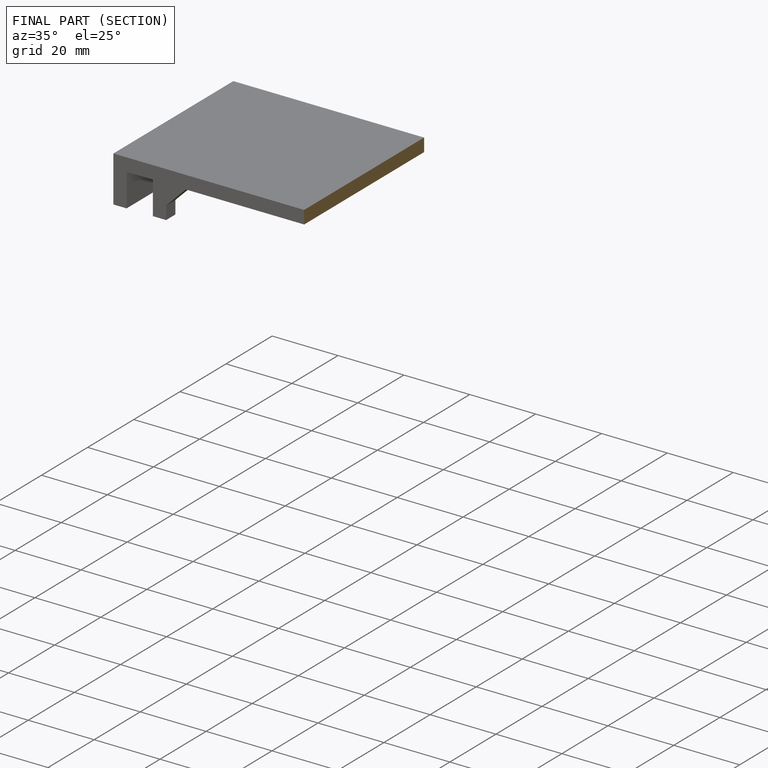
[diagram: finished part — half-section view (interior)]
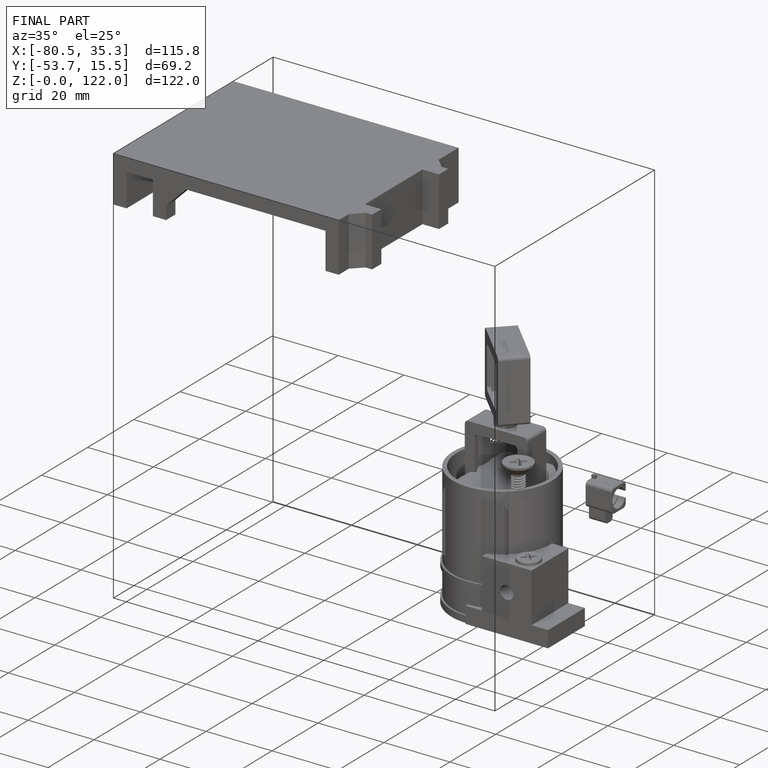
[diagram: finished part — iso view with bounding-box wireframe]
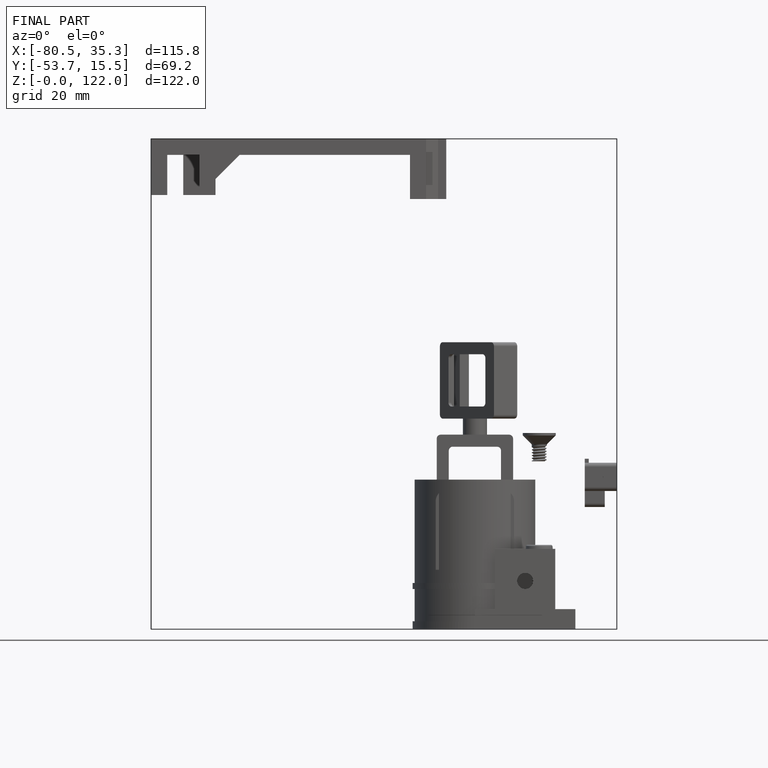
[diagram: finished part — front view with bounding-box wireframe]
